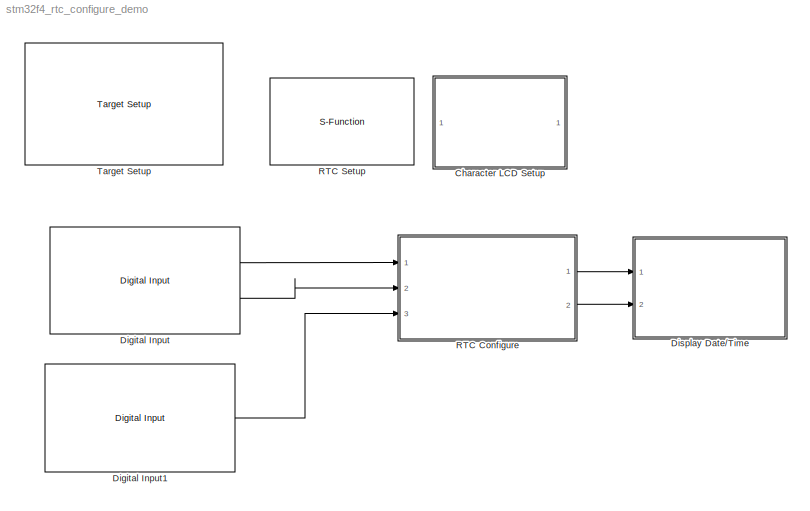
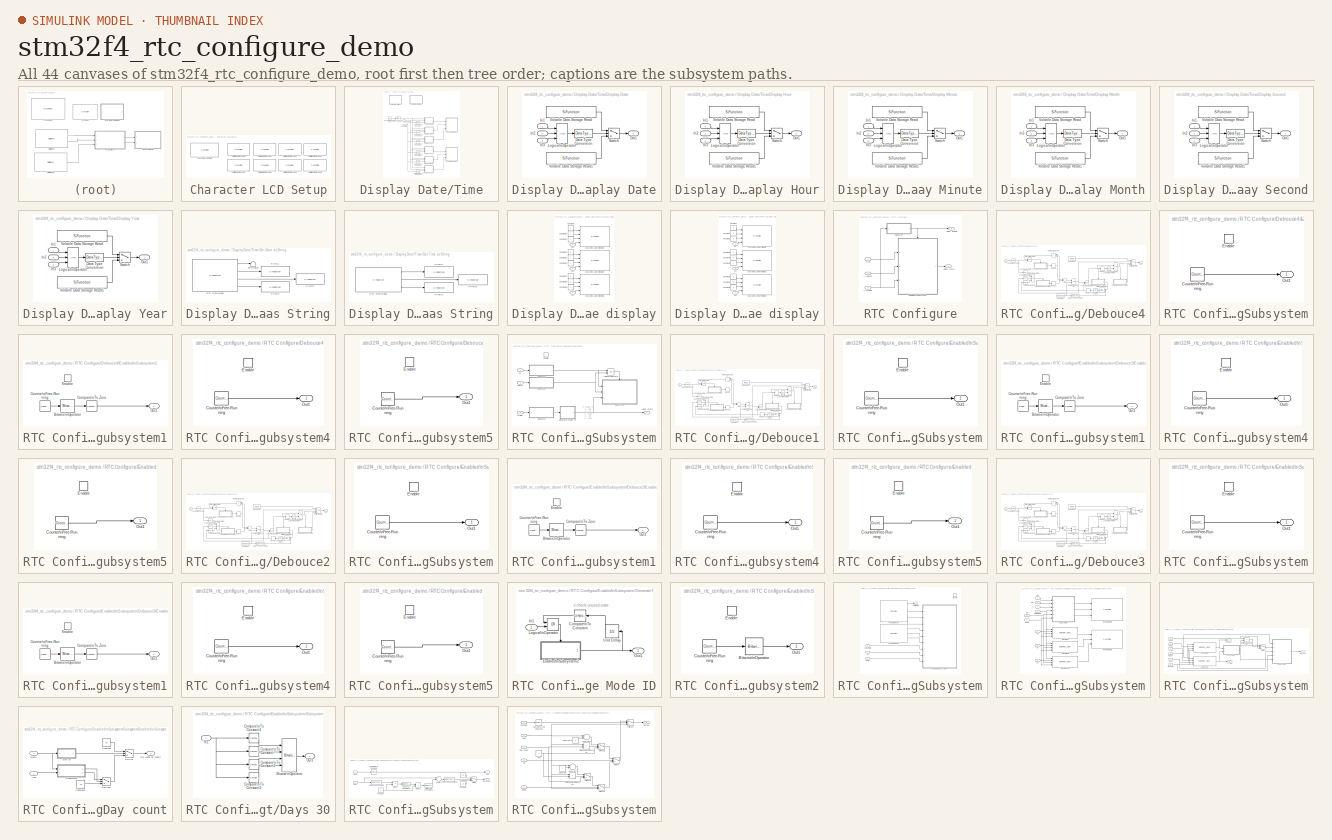
[diagram: thumbnail index - all 44 canvases of the model, root first then tree order]
MODEL stm32f4_rtc_configure_demo
KIND model
CONFIG PreLoadFcn = waijung.modelPreload; % Required for working with Waijung Blockset. Do not remove.
BLOCK [SubSystem] Character LCD Setup
  FunctionWithSeparateData = off
  MaskHideContents = off
  MinAlgLoopOccurrences = off
  Opaque = off
  Ports = []
  PropExecContextOutsideSubsystem = off
  RTWSystemCode = Auto
  RequestExecContextInheritance = off
BLOCK [S-Function] Character LCD Setup/Character LCD Setup
  EnableBusSupport = off
  FunctionName = amg_clcd
  MaskCallbackString = amg_clcd_callback('configuration');||||||||||||||||amg_clcd_callback('usestringbuffer');||amg_clcd_callback('varname');|||amg_clcd_callback('confstr');|amg_clcd_callback('sampletime');|amg_clcd_callback('sampletimestr');|amg_clcd_callback('blockid');  <repeated x7 — deduplicated; at blocks: Character LCD Setup, Character LCD Write Date3, Character LCD Write Date4, Character LCD Write Date5, Character LCD Write Date, Character LCD Write Date1, Character LCD Write Date2>
  MaskDisplay = text(0.5, 0.5, 'Module: CLCD1 (Setup)\\nInterface: 4-bits\\nCntrl: E7/E8/E9\\nD[7:4]: E12/E13/E14/E15\\nTs (sec): 0.01','ver','middle','hor','center');
  MaskEnableString = on,on,on,off,off,on,on,on,on,on,on,on,on,on,on,on,on,on,off,off,off,on,on,on,on
  MaskHelp = web(fullfile(waijungdocroot,'amg_clcd_setup.htm'), '-browser')
  MaskIconFrame = on
  MaskIconOpaque = on
  MaskIconRotate = none
  MaskIconUnits = normalized
  MaskInitialization = amg_clcd_callback('init');
  MaskPortRotate = default
  MaskPromptString = Configuration:|Module:|LCD model:|Interface:|Number of lines (2 or 4):|Number of columns:|GPIO Output type:|GPIO control port:|GPIO control pin, RS:|GPIO control pin, RW:|GPIO control pin, EN:|GPIO data D[7:4] port|GPIO data pin, D4:|GPIO data pin, D5:|GPIO data pin, D6:|GPIO data pin, D7:|Use string buffer|String buffer|Variable name|Input type array|Output type array|Configuration string|Sample ...<+55ch>
  MaskSelfModifiable = on
  MaskStyleString = popup(Setup|Transaction),popup(1|2|3|4),popup(amg CLCD Std),popup(4-bits),edit,edit,popup(Push-pull|Open-drain),popup(A|B|C|D|E|F|G|H|I),popup(0|1|2|3|4|5|6|7|8|9|10|11|12|13|14|15),popup(0|1|2|3|4|5|6|7|8|9|10|11|12|13|14|15),popup(0|1|2|3|4|5|6|7|8|9|10|11|12|13|14|15),popup(A|B|C|D|E|F|G|H|I),popup(0|1|2|3|4|5|6|7|8|9|10|11|12|13|14|15),popup(0|1|2|3|4|5|6|7|8|9|10|11|12|13|14|15),popup(0|1|2|3...<+135ch>
  MaskTabNameString = ,,,,,,,,,,,,,,,,,,,,,,,,
  MaskToolTipString = on,on,on,on,on,on,on,on,on,on,on,on,on,on,on,on,on,on,on,on,on,on,on,on,on
  MaskTunableValueString = off,off,off,off,off,off,off,off,off,off,off,off,off,off,off,off,off,off,off,off,off,off,off,off,off
  MaskType = amg_clcd
  MaskValueString = Setup|1|amg CLCD Std|4-bits|4|16|Push-pull|E|7|8|9|E|12|13|14|15|off|<empty>||[0]|[0]|[\"4\",\"4\",\"16\",\"PP\",\"E\",\"7\",\"9\",\"8\",\"\",\"E\",\"\",\"\",\"\",\"\",\"12\",\"13\",\"14\",\"15\",\"0\",\"\",\"0\",\"0\",\"0\",\"0\",\"1\",\"0\",\"0\",\"0\",\"0\",\"stm32f4\"]|-1|0.01|CharacterLCDSetupCharacterLCDSetup
  MaskVarAliasString = ,,,,,,,,,,,,,,,,,,,,,,,,
  MaskVariables = configuration=&1;module=&2;model=&3;interface=&4;linecount=@5;columncount=@6;gpiotype=&7;controlport=&8;control_rs=&9;control_rw=&10;control_en=&11;dataport=&12;data0=&13;data1=&14;data2=&15;data3=&16;usestringbuffer=@17;stringbuffer=&18;varname=&19;inputtypearray=@20;outputtypearray=@21;confstr=&22;sampletime=@23;sampletimestr=&24;blockid=&25;  <repeated x7 — deduplicated; at blocks: Character LCD Setup, Character LCD Write Date3, Character LCD Write Date4, Character LCD Write Date5, Character LCD Write Date, Character LCD Write Date1, Character LCD Write Date2>
  MaskVisibilityString = off,on,off,on,off,on,on,on,on,on,on,on,on,on,on,on,off,off,off,off,off,off,off,off,off
  Parameters = module,configuration,inputtypearray,outputtypearray,confstr,sampletime,sampletimestr,blockid
  Ports = []
BLOCK [S-Function] Character LCD Setup/Volatile Data Storage1
  EnableBusSupport = off
  FunctionName = waijung_vdata_storage
  MaskCallbackString = waijung_vdata_storage_callback('storagetype');|waijung_vdata_storage_callback('storagename');|waijung_vdata_storage_callback('initval');|waijung_vdata_storage_callback('varname');||waijung_vdata_storage_callback('initvalstring');|waijung_vdata_storage_callback('webintegration');|waijung_vdata_storage_callback('weboutputformat');|||waijung_vdata_storage_callback('sampletime');|waijung_vdata_storage...<+71ch>  <repeated x8 — deduplicated; at blocks: Volatile Data Storage1, Volatile Data Storage2, Volatile Data Storage3, Volatile Data Storage4, Volatile Data Storage5, Volatile Data Storage6, Volatile Data Storage7, Volatile Data Storage8>
  MaskDescription = This block implements a volatile Data Storage.\n\nWeb CGI varset/varget integratiopn:\nEnable - In webserver application, allow remote access via http.\nDisable - Variable is use in local only.  <repeated x8 — deduplicated; at blocks: Volatile Data Storage1, Volatile Data Storage2, Volatile Data Storage3, Volatile Data Storage4, Volatile Data Storage5, Volatile Data Storage6, Volatile Data Storage7, Volatile Data Storage8>
  MaskDisplay = text(0.5, 0.5, 'Name: str_date\\nType: string','ver','middle','hor','center')
  MaskEnableString = on,on,on,off,on,on,on,on,off,on,on,off,off,on
  MaskHelp = web(fullfile(waijungdocroot,'Volatile_Data_Storage.htm'))
  MaskIconFrame = on
  MaskIconOpaque = on
  MaskIconRotate = none
  MaskIconUnits = normalized
  MaskInitialization = waijung_vdata_storage_callback('init');
  MaskPortRotate = default
  MaskPromptString = Storage Type|Storage Name (must be a valid variable name)|Initial value (Apply at Power on Reset only)|Variable name|Size (bytes)|Initial value (Apply at Power on Reset only)|Web CGI varget/varset integration|Web CGI varget output format|Web CGI varset callback|Last selected Storage Type|Sample time (sec)|Compiled sample time (sec) in string|BlockID|Type string  <repeated x8 — deduplicated; at blocks: Volatile Data Storage1, Volatile Data Storage2, Volatile Data Storage3, Volatile Data Storage4, Volatile Data Storage5, Volatile Data Storage6, Volatile Data Storage7, Volatile Data Storage8>
  MaskSelfModifiable = on
  MaskStyleString = popup(double|single|uint32|int32|uint16|int16|uint8|int8|string),edit,edit,edit,edit,edit,popup(Disable|ReadOnly|Write/ Read|ReadOnly with KeyValuePair|Write/ Read with KeyValuePair),edit,edit,popup(double|single|uint32|int32|uint16|int16|uint8|int8|string),edit,edit,edit,edit  <repeated x8 — deduplicated; at blocks: Volatile Data Storage1, Volatile Data Storage2, Volatile Data Storage3, Volatile Data Storage4, Volatile Data Storage5, Volatile Data Storage6, Volatile Data Storage7, Volatile Data Storage8>
  MaskTabNameString = ,,,,,,,,,,,,,
  MaskToolTipString = on,on,on,on,on,on,on,on,on,on,on,on,on,on
  MaskTunableValueString = off,off,off,off,off,off,off,off,off,off,off,off,off,off
  MaskType = waijung_vdata_storage
  MaskValueString = string|str_date|0|CharacterLCDSetupVolatileDataStorage1_str_date|4|''|Disable|'%s'|(void*)0|string|-1|0.01|CharacterLCDSetupVolatileDataStorage1|char
  MaskVarAliasString = ,,,,,,,,,,,,,
  MaskVariables = storagetype=&1;storagename=&2;initval=@3;varname=&4;buffersize=@5;initvalstring=@6;webintegration=&7;weboutputformat=&8;webcgicallback=&9;laststoragetype=&10;sampletime=@11;sampletimestr=&12;blockid=&13;storagetypestr=&14;  <repeated x8 — deduplicated; at blocks: Volatile Data Storage1, Volatile Data Storage2, Volatile Data Storage3, Volatile Data Storage4, Volatile Data Storage5, Volatile Data Storage6, Volatile Data Storage7, Volatile Data Storage8>
  MaskVisibilityString = on,on,off,off,on,on,on,off,off,off,on,off,off,off
  Parameters = storagetype,storagename,initval,varname,buffersize,initvalstring,sampletime,sampletimestr,blockid,storagetypestr
  Ports = []
BLOCK [S-Function] Character LCD Setup/Volatile Data Storage2
  EnableBusSupport = off
  FunctionName = waijung_vdata_storage
  MaskDisplay = text(0.5, 0.5, 'Name: str_month\\nType: string','ver','middle','hor','center')
  MaskEnableString = on,on,on,off,on,on,on,on,off,on,on,off,off,on
  MaskHelp = web(fullfile(waijungdocroot,'Volatile_Data_Storage.htm'))
  MaskIconFrame = on
  MaskIconOpaque = on
  MaskIconRotate = none
  MaskIconUnits = normalized
  MaskInitialization = waijung_vdata_storage_callback('init');
  MaskPortRotate = default
  MaskSelfModifiable = on
  MaskTabNameString = ,,,,,,,,,,,,,
  MaskToolTipString = on,on,on,on,on,on,on,on,on,on,on,on,on,on
  MaskTunableValueString = off,off,off,off,off,off,off,off,off,off,off,off,off,off
  MaskType = waijung_vdata_storage
  MaskValueString = string|str_month|0|CharacterLCDSetupVolatileDataStorage2_str_month|4|''|Disable|'%s'|(void*)0|string|-1|0.01|CharacterLCDSetupVolatileDataStorage2|char
  MaskVarAliasString = ,,,,,,,,,,,,,
  MaskVisibilityString = on,on,off,off,on,on,on,off,off,off,on,off,off,off
  Parameters = storagetype,storagename,initval,varname,buffersize,initvalstring,sampletime,sampletimestr,blockid,storagetypestr
  Ports = []
BLOCK [S-Function] Character LCD Setup/Volatile Data Storage3
  EnableBusSupport = off
  FunctionName = waijung_vdata_storage
  MaskDisplay = text(0.5, 0.5, 'Name: str_year\\nType: string','ver','middle','hor','center')
  MaskEnableString = on,on,on,off,on,on,on,on,off,on,on,off,off,on
  MaskHelp = web(fullfile(waijungdocroot,'Volatile_Data_Storage.htm'))
  MaskIconFrame = on
  MaskIconOpaque = on
  MaskIconRotate = none
  MaskIconUnits = normalized
  MaskInitialization = waijung_vdata_storage_callback('init');
  MaskPortRotate = default
  MaskSelfModifiable = on
  MaskTabNameString = ,,,,,,,,,,,,,
  MaskToolTipString = on,on,on,on,on,on,on,on,on,on,on,on,on,on
  MaskTunableValueString = off,off,off,off,off,off,off,off,off,off,off,off,off,off
  MaskType = waijung_vdata_storage
  MaskValueString = string|str_year|0|CharacterLCDSetupVolatileDataStorage3_str_year|4|''|Disable|'%s'|(void*)0|string|-1|0.01|CharacterLCDSetupVolatileDataStorage3|char
  MaskVarAliasString = ,,,,,,,,,,,,,
  MaskVisibilityString = on,on,off,off,on,on,on,off,off,off,on,off,off,off
  Parameters = storagetype,storagename,initval,varname,buffersize,initvalstring,sampletime,sampletimestr,blockid,storagetypestr
  Ports = []
BLOCK [S-Function] Character LCD Setup/Volatile Data Storage4
  EnableBusSupport = off
  FunctionName = waijung_vdata_storage
  MaskDisplay = text(0.5, 0.5, 'Name: str_hour\\nType: string','ver','middle','hor','center')
  MaskEnableString = on,on,on,off,on,on,on,on,off,on,on,off,off,on
  MaskHelp = web(fullfile(waijungdocroot,'Volatile_Data_Storage.htm'))
  MaskIconFrame = on
  MaskIconOpaque = on
  MaskIconRotate = none
  MaskIconUnits = normalized
  MaskInitialization = waijung_vdata_storage_callback('init');
  MaskPortRotate = default
  MaskSelfModifiable = on
  MaskTabNameString = ,,,,,,,,,,,,,
  MaskToolTipString = on,on,on,on,on,on,on,on,on,on,on,on,on,on
  MaskTunableValueString = off,off,off,off,off,off,off,off,off,off,off,off,off,off
  MaskType = waijung_vdata_storage
  MaskValueString = string|str_hour|0|CharacterLCDSetupVolatileDataStorage4_str_hour|4|''|Disable|'%s'|(void*)0|string|-1|0.01|CharacterLCDSetupVolatileDataStorage4|char
  MaskVarAliasString = ,,,,,,,,,,,,,
  MaskVisibilityString = on,on,off,off,on,on,on,off,off,off,on,off,off,off
  Parameters = storagetype,storagename,initval,varname,buffersize,initvalstring,sampletime,sampletimestr,blockid,storagetypestr
  Ports = []
BLOCK [S-Function] Character LCD Setup/Volatile Data Storage5
  EnableBusSupport = off
  FunctionName = waijung_vdata_storage
  MaskDisplay = text(0.5, 0.5, 'Name: str_minute\\nType: string','ver','middle','hor','center')
  MaskEnableString = on,on,on,off,on,on,on,on,off,on,on,off,off,on
  MaskHelp = web(fullfile(waijungdocroot,'Volatile_Data_Storage.htm'))
  MaskIconFrame = on
  MaskIconOpaque = on
  MaskIconRotate = none
  MaskIconUnits = normalized
  MaskInitialization = waijung_vdata_storage_callback('init');
  MaskPortRotate = default
  MaskSelfModifiable = on
  MaskTabNameString = ,,,,,,,,,,,,,
  MaskToolTipString = on,on,on,on,on,on,on,on,on,on,on,on,on,on
  MaskTunableValueString = off,off,off,off,off,off,off,off,off,off,off,off,off,off
  MaskType = waijung_vdata_storage
  MaskValueString = string|str_minute|0|CharacterLCDSetupVolatileDataStorage5_str_minute|4|''|Disable|'%s'|(void*)0|string|-1|0.01|CharacterLCDSetupVolatileDataStorage5|char
  MaskVarAliasString = ,,,,,,,,,,,,,
  MaskVisibilityString = on,on,off,off,on,on,on,off,off,off,on,off,off,off
  Parameters = storagetype,storagename,initval,varname,buffersize,initvalstring,sampletime,sampletimestr,blockid,storagetypestr
  Ports = []
BLOCK [S-Function] Character LCD Setup/Volatile Data Storage6
  EnableBusSupport = off
  FunctionName = waijung_vdata_storage
  MaskDisplay = text(0.5, 0.5, 'Name: str_second\\nType: string','ver','middle','hor','center')
  MaskEnableString = on,on,on,off,on,on,on,on,off,on,on,off,off,on
  MaskHelp = web(fullfile(waijungdocroot,'Volatile_Data_Storage.htm'))
  MaskIconFrame = on
  MaskIconOpaque = on
  MaskIconRotate = none
  MaskIconUnits = normalized
  MaskInitialization = waijung_vdata_storage_callback('init');
  MaskPortRotate = default
  MaskSelfModifiable = on
  MaskTabNameString = ,,,,,,,,,,,,,
  MaskToolTipString = on,on,on,on,on,on,on,on,on,on,on,on,on,on
  MaskTunableValueString = off,off,off,off,off,off,off,off,off,off,off,off,off,off
  MaskType = waijung_vdata_storage
  MaskValueString = string|str_second|0|CharacterLCDSetupVolatileDataStorage6_str_second|4|''|Disable|'%s'|(void*)0|string|-1|0.01|CharacterLCDSetupVolatileDataStorage6|char
  MaskVarAliasString = ,,,,,,,,,,,,,
  MaskVisibilityString = on,on,off,off,on,on,on,off,off,off,on,off,off,off
  Parameters = storagetype,storagename,initval,varname,buffersize,initvalstring,sampletime,sampletimestr,blockid,storagetypestr
  Ports = []
BLOCK [S-Function] Character LCD Setup/Volatile Data Storage7
  EnableBusSupport = off
  FunctionName = waijung_vdata_storage
  MaskDisplay = text(0.5, 0.5, 'Name: str_blank2\\nType: string','ver','middle','hor','center')
  MaskEnableString = on,on,on,off,on,on,on,on,off,on,on,off,off,on
  MaskHelp = web(fullfile(waijungdocroot,'Volatile_Data_Storage.htm'))
  MaskIconFrame = on
  MaskIconOpaque = on
  MaskIconRotate = none
  MaskIconUnits = normalized
  MaskInitialization = waijung_vdata_storage_callback('init');
  MaskPortRotate = default
  MaskSelfModifiable = on
  MaskTabNameString = ,,,,,,,,,,,,,
  MaskToolTipString = on,on,on,on,on,on,on,on,on,on,on,on,on,on
  MaskTunableValueString = off,off,off,off,off,off,off,off,off,off,off,off,off,off
  MaskType = waijung_vdata_storage
  MaskValueString = string|str_blank2|0|CharacterLCDSetupVolatileDataStorage7_str_blank2|4|'  '|Disable|'%s'|(void*)0|string|-1|0.01|CharacterLCDSetupVolatileDataStorage7|char
  MaskVarAliasString = ,,,,,,,,,,,,,
  MaskVisibilityString = on,on,off,off,on,on,on,off,off,off,on,off,off,off
  Parameters = storagetype,storagename,initval,varname,buffersize,initvalstring,sampletime,sampletimestr,blockid,storagetypestr
  Ports = []
BLOCK [S-Function] Character LCD Setup/Volatile Data Storage8
  EnableBusSupport = off
  FunctionName = waijung_vdata_storage
  MaskDisplay = text(0.5, 0.5, 'Name: LCD_Buffer\\nType: string','ver','middle','hor','center')
  MaskEnableString = on,on,on,off,on,on,on,on,off,on,on,off,off,on
  MaskHelp = web(fullfile(waijungdocroot,'Volatile_Data_Storage.htm'))
  MaskIconFrame = on
  MaskIconOpaque = on
  MaskIconRotate = none
  MaskIconUnits = normalized
  MaskInitialization = waijung_vdata_storage_callback('init');
  MaskPortRotate = default
  MaskSelfModifiable = on
  MaskTabNameString = ,,,,,,,,,,,,,
  MaskToolTipString = on,on,on,on,on,on,on,on,on,on,on,on,on,on
  MaskTunableValueString = off,off,off,off,off,off,off,off,off,off,off,off,off,off
  MaskType = waijung_vdata_storage
  MaskValueString = string|LCD_Buffer|0|CharacterLCDSetupVolatileDataStorage8_LCD_Buffer|64|''|Disable|'%s'|(void*)0|string|-1|0.01|CharacterLCDSetupVolatileDataStorage8|char
  MaskVarAliasString = ,,,,,,,,,,,,,
  MaskVisibilityString = on,on,off,off,on,on,on,off,off,off,on,off,off,off
  Parameters = storagetype,storagename,initval,varname,buffersize,initvalstring,sampletime,sampletimestr,blockid,storagetypestr
  Ports = []
BLOCK [Reference] Digital Input  REF=stm32f4_io_lib/Digital Input
  Ports = [0, 2]
  SourceBlock = stm32f4_io_lib/Digital Input
  SourceType = stm32f4_digital_input
  bitbandingstr = \n#define DigitalInput_B2 Peripheral_BB(GPIOB->IDR, 2)  /* Output pin */\n#define DigitalInput_B15 Peripheral_BB(GPIOB->IDR, 15)  /* Output pin */
  blockid = DigitalInput
  cinputportlabel = In1, In2
  coutputportlabel = Out1, Out2
  enablecustomportlabel = off
  glabalinit = off
  pinstr = GPIO_Pin_2 | GPIO_Pin_15
  port = B
  porttype = None
  porttypestr = NOPULL
  sampletime = 0.01
  sampletimestr = 0.01
  speed = 100
  use_pin0 = off
  use_pin1 = off
  use_pin10 = off
  use_pin11 = off
  use_pin12 = off
  use_pin13 = off
  use_pin14 = off
  use_pin15 = on
  use_pin2 = on
  use_pin3 = off
  use_pin4 = off
  use_pin5 = off
  use_pin6 = off
  use_pin7 = off
  use_pin8 = off
  use_pin9 = off
  usedpinarray = [0  0  1  0  0  0  0  0  0  0  0  0  0  0  0  1]
BLOCK [Reference] Digital Input1  REF=stm32f4_io_lib/Digital Input
  Ports = [0, 1]
  SourceBlock = stm32f4_io_lib/Digital Input
  SourceType = stm32f4_digital_input
  bitbandingstr = \n#define DigitalInput1_D7 Peripheral_BB(GPIOD->IDR, 7)  /* Output pin */
  blockid = DigitalInput1
  cinputportlabel = In1, In2
  coutputportlabel = Out1, Out2
  enablecustomportlabel = off
  glabalinit = off
  pinstr = GPIO_Pin_7
  port = D
  porttype = None
  porttypestr = NOPULL
  sampletime = 0.01
  sampletimestr = 0.01
  speed = 100
  use_pin0 = off
  use_pin1 = off
  use_pin10 = off
  use_pin11 = off
  use_pin12 = off
  use_pin13 = off
  use_pin14 = off
  use_pin15 = off
  use_pin2 = off
  use_pin3 = off
  use_pin4 = off
  use_pin5 = off
  use_pin6 = off
  use_pin7 = on
  use_pin8 = off
  use_pin9 = off
  usedpinarray = [0  0  0  0  0  0  0  1  0  0  0  0  0  0  0  0]
BLOCK [SubSystem] Display Date//Time
  FunctionWithSeparateData = off
  MaskHideContents = off
  MinAlgLoopOccurrences = off
  Opaque = off
  Ports = [2]
  PropExecContextOutsideSubsystem = off
  RTWSystemCode = Auto
  RequestExecContextInheritance = off
BLOCK [Inport] Display Date//Time/Adjust enable
  IconDisplay = Port number
  OutDataType = fixdt(1, 16)
  OutScaling = 2^0
  Port = 2
BLOCK [Inport] Display Date//Time/Adjust state
  IconDisplay = Port number
  OutDataType = fixdt(1, 16)
  OutScaling = 2^0
BLOCK [Reference] Display Date//Time/Bitwise\nOperator  REF=simulink/Logic and Bit\nOperations/Bitwise\nOperator
  BitMask = 1
  BitMaskRealWorld = Stored Integer
  NumInputPorts = 1
  Ports = [1, 1]
  SourceBlock = simulink/Logic and Bit\nOperations/Bitwise\nOperator
  SourceType = Bitwise Operator
  UseBitMask = on
  logicop = AND
BLOCK [Reference] Display Date//Time/Compare\nTo Constant  REF=simulink/Logic and Bit\nOperations/Compare\nTo Constant
  FunctionWithSeparateData = off
  LogicOutDataTypeMode = boolean
  Ports = [1, 1]
  RTWMemSecDataConstants = Inherit from model
  RTWMemSecDataInternal = Inherit from model
  RTWMemSecDataParameters = Inherit from model
  RTWMemSecFuncExecute = Inherit from model
  RTWMemSecFuncInitTerm = Inherit from model
  ShowPortLabels = FromPortIcon
  SourceBlock = simulink/Logic and Bit\nOperations/Compare\nTo Constant
  SourceType = Compare To Constant
  SystemSampleTime = -1
  ZeroCross = off
  const = 0
  relop = ==
BLOCK [Reference] Display Date//Time/Compare\nTo Constant1  REF=simulink/Logic and Bit\nOperations/Compare\nTo Constant
  FunctionWithSeparateData = off
  LogicOutDataTypeMode = boolean
  Ports = [1, 1]
  RTWMemSecDataConstants = Inherit from model
  RTWMemSecDataInternal = Inherit from model
  RTWMemSecDataParameters = Inherit from model
  RTWMemSecFuncExecute = Inherit from model
  RTWMemSecFuncInitTerm = Inherit from model
  ShowPortLabels = FromPortIcon
  SourceBlock = simulink/Logic and Bit\nOperations/Compare\nTo Constant
  SourceType = Compare To Constant
  SystemSampleTime = -1
  ZeroCross = off
  const = 1
  relop = ==
BLOCK [Reference] Display Date//Time/Compare\nTo Constant2  REF=simulink/Logic and Bit\nOperations/Compare\nTo Constant
  FunctionWithSeparateData = off
  LogicOutDataTypeMode = boolean
  Ports = [1, 1]
  RTWMemSecDataConstants = Inherit from model
  RTWMemSecDataInternal = Inherit from model
  RTWMemSecDataParameters = Inherit from model
  RTWMemSecFuncExecute = Inherit from model
  RTWMemSecFuncInitTerm = Inherit from model
  ShowPortLabels = FromPortIcon
  SourceBlock = simulink/Logic and Bit\nOperations/Compare\nTo Constant
  SourceType = Compare To Constant
  SystemSampleTime = -1
  ZeroCross = off
  const = 2
  relop = ==
BLOCK [Reference] Display Date//Time/Compare\nTo Constant3  REF=simulink/Logic and Bit\nOperations/Compare\nTo Constant
  FunctionWithSeparateData = off
  LogicOutDataTypeMode = boolean
  Ports = [1, 1]
  RTWMemSecDataConstants = Inherit from model
  RTWMemSecDataInternal = Inherit from model
  RTWMemSecDataParameters = Inherit from model
  RTWMemSecFuncExecute = Inherit from model
  RTWMemSecFuncInitTerm = Inherit from model
  ShowPortLabels = FromPortIcon
  SourceBlock = simulink/Logic and Bit\nOperations/Compare\nTo Constant
  SourceType = Compare To Constant
  SystemSampleTime = -1
  ZeroCross = off
  const = 3
  relop = ==
BLOCK [Reference] Display Date//Time/Compare\nTo Constant4  REF=simulink/Logic and Bit\nOperations/Compare\nTo Constant
  FunctionWithSeparateData = off
  LogicOutDataTypeMode = boolean
  Ports = [1, 1]
  RTWMemSecDataConstants = Inherit from model
  RTWMemSecDataInternal = Inherit from model
  RTWMemSecDataParameters = Inherit from model
  RTWMemSecFuncExecute = Inherit from model
  RTWMemSecFuncInitTerm = Inherit from model
  ShowPortLabels = FromPortIcon
  SourceBlock = simulink/Logic and Bit\nOperations/Compare\nTo Constant
  SourceType = Compare To Constant
  SystemSampleTime = -1
  ZeroCross = off
  const = 4
  relop = ==
BLOCK [Reference] Display Date//Time/Compare\nTo Constant5  REF=simulink/Logic and Bit\nOperations/Compare\nTo Constant
  FunctionWithSeparateData = off
  LogicOutDataTypeMode = boolean
  Ports = [1, 1]
  RTWMemSecDataConstants = Inherit from model
  RTWMemSecDataInternal = Inherit from model
  RTWMemSecDataParameters = Inherit from model
  RTWMemSecFuncExecute = Inherit from model
  RTWMemSecFuncInitTerm = Inherit from model
  ShowPortLabels = FromPortIcon
  SourceBlock = simulink/Logic and Bit\nOperations/Compare\nTo Constant
  SourceType = Compare To Constant
  SystemSampleTime = -1
  ZeroCross = off
  const = 5
  relop = ==
BLOCK [Reference] Display Date//Time/Counter\nFree-Running  REF=simulink/Sources/Counter\nFree-Running
  FunctionWithSeparateData = off
  NumBits = 16
  Ports = [0, 1]
  RTWMemSecDataConstants = Inherit from model
  RTWMemSecDataInternal = Inherit from model
  RTWMemSecDataParameters = Inherit from model
  RTWMemSecFuncExecute = Inherit from model
  RTWMemSecFuncInitTerm = Inherit from model
  ShowPortLabels = FromPortIcon
  SourceBlock = simulink/Sources/Counter\nFree-Running
  SourceType = Counter Free-Running
  SystemSampleTime = -1
  tsamp = 0.4
BLOCK [SubSystem] Display Date//Time/Display Date
  FunctionWithSeparateData = off
  MaskHideContents = off
  MinAlgLoopOccurrences = off
  Opaque = off
  Ports = [3, 1]
  PropExecContextOutsideSubsystem = off
  RTWSystemCode = Auto
  RequestExecContextInheritance = off
BLOCK [DataTypeConversion] Display Date//Time/Display Date/Data Type Conversion
  OutDataType = fixdt(1, 16)
  OutDataTypeMode = uint8
  OutDataTypeStr = uint8
  OutScaling = 2^0
  RndMeth = Floor
  SaturateOnIntegerOverflow = off
BLOCK [Inport] Display Date//Time/Display Date/In1
  IconDisplay = Port number
BLOCK [Inport] Display Date//Time/Display Date/In2
  IconDisplay = Port number
  Port = 2
BLOCK [Inport] Display Date//Time/Display Date/In3
  IconDisplay = Port number
  Port = 3
BLOCK [Logic] Display Date//Time/Display Date/Logical\nOperator
  AllPortsSameDT = off
  Inputs = 3
  LogicDataType = fixdt(0, 8)
  OutDataTypeMode = boolean
  OutDataTypeStr = boolean
  Ports = [3, 1]
BLOCK [Outport] Display Date//Time/Display Date/Out1
  IconDisplay = Port number
BLOCK [Switch] Display Date//Time/Display Date/Switch
  Criteria = u2 ~= 0
  InputSameDT = off
  OutDataType = fixdt(1, 16)
  OutScaling = 2^0
  SaturateOnIntegerOverflow = off
BLOCK [S-Function] Display Date//Time/Display Date/Volatile Data Storage Read
  EnableBusSupport = off
  FunctionName = waijung_vdata_read
  MaskCallbackString = waijung_vdata_read_callback('storagename');|waijung_vdata_read_callback('varname');|waijung_vdata_read_callback('sampletime');|waijung_vdata_read_callback('sampletimestr');|waijung_vdata_read_callback('blockid');|waijung_vdata_read_callback('storagetype');|  <repeated x12 — deduplicated; at blocks: Volatile Data Storage Read, Volatile Data Storage Read1>
  MaskDescription = This block implements read data from a buffer.
  MaskDisplay = text(0.05, 0.5, 'Buffer: str_blank2','ver','middle','hor','left');port_label('output',1,'D1(string)')
  MaskEnableString = on,off,on,off,off,on,on
  MaskHelp = web(fullfile(waijungdocroot,'waijung_vdata_read.htm'))
  MaskIconFrame = on
  MaskIconOpaque = on
  MaskIconRotate = none
  MaskIconUnits = normalized
  MaskInitialization = waijung_vdata_read_callback('init');
  MaskPortRotate = default
  MaskPromptString = Storage Name|Variable name|Sample time (sec)|Compiled sample time (sec) in string|BlockID|Data type|Data type string
  MaskSelfModifiable = on
  MaskStyleString = popup(str_date|str_month|str_year|str_hour|str_minute|str_second|str_blank2|LCD_Buffer),edit,edit,edit,edit,edit,edit
  MaskTabNameString = ,,,,,,
  MaskToolTipString = on,on,on,on,on,on,on
  MaskTunableValueString = off,off,off,off,off,off,off
  MaskType = waijung_vdata_read
  MaskValueString = str_blank2|CharacterLCDSetupVolatileDataStorage7_str_blank2|inf|0.01|DisplayDateTimeDisplayDateVolatileDataStorageRead|string|uint32_t
  MaskVarAliasString = ,,,,,,
  MaskVariables = storagename=&1;varname=&2;sampletime=@3;sampletimestr=&4;blockid=&5;storagetype=&6;storagetypestr=&7;
  MaskVisibilityString = on,off,on,off,off,off,off
  Parameters = storagename,varname,sampletime,sampletimestr,blockid,storagetype,storagetypestr
  Ports = [0, 1]
BLOCK [S-Function] Display Date//Time/Display Date/Volatile Data Storage Read1
  EnableBusSupport = off
  FunctionName = waijung_vdata_read
  MaskDescription = This block implements read data from a buffer.
  MaskDisplay = text(0.05, 0.5, 'Buffer: str_date','ver','middle','hor','left');port_label('output',1,'D1(string)')
  MaskEnableString = on,off,on,off,off,on,on
  MaskHelp = web(fullfile(waijungdocroot,'waijung_vdata_read.htm'))
  MaskIconFrame = on
  MaskIconOpaque = on
  MaskIconRotate = none
  MaskIconUnits = normalized
  MaskInitialization = waijung_vdata_read_callback('init');
  MaskPortRotate = default
  MaskPromptString = Storage Name|Variable name|Sample time (sec)|Compiled sample time (sec) in string|BlockID|Data type|Data type string
  MaskSelfModifiable = on
  MaskStyleString = popup(str_date|str_month|str_year|str_hour|str_minute|str_second|str_blank2|LCD_Buffer),edit,edit,edit,edit,edit,edit
  MaskTabNameString = ,,,,,,
  MaskToolTipString = on,on,on,on,on,on,on
  MaskTunableValueString = off,off,off,off,off,off,off
  MaskType = waijung_vdata_read
  MaskValueString = str_date|CharacterLCDSetupVolatileDataStorage1_str_date|inf|0.01|DisplayDateTimeDisplayDateVolatileDataStorageRead1|string|uint32_t
  MaskVarAliasString = ,,,,,,
  MaskVariables = storagename=&1;varname=&2;sampletime=@3;sampletimestr=&4;blockid=&5;storagetype=&6;storagetypestr=&7;
  MaskVisibilityString = on,off,on,off,off,off,off
  Parameters = storagename,varname,sampletime,sampletimestr,blockid,storagetype,storagetypestr
  Ports = [0, 1]
BLOCK [SubSystem] Display Date//Time/Display Hour
  FunctionWithSeparateData = off
  MaskHideContents = off
  MinAlgLoopOccurrences = off
  Opaque = off
  Ports = [3, 1]
  PropExecContextOutsideSubsystem = off
  RTWSystemCode = Auto
  RequestExecContextInheritance = off
BLOCK [DataTypeConversion] Display Date//Time/Display Hour/Data Type Conversion
  OutDataType = fixdt(1, 16)
  OutDataTypeMode = uint8
  OutDataTypeStr = uint8
  OutScaling = 2^0
  RndMeth = Floor
  SaturateOnIntegerOverflow = off
BLOCK [Inport] Display Date//Time/Display Hour/In1
  IconDisplay = Port number
BLOCK [Inport] Display Date//Time/Display Hour/In2
  IconDisplay = Port number
  Port = 2
BLOCK [Inport] Display Date//Time/Display Hour/In3
  IconDisplay = Port number
  Port = 3
BLOCK [Logic] Display Date//Time/Display Hour/Logical\nOperator
  AllPortsSameDT = off
  Inputs = 3
  LogicDataType = fixdt(0, 8)
  OutDataTypeMode = boolean
  OutDataTypeStr = boolean
  Ports = [3, 1]
BLOCK [Outport] Display Date//Time/Display Hour/Out1
  IconDisplay = Port number
BLOCK [Switch] Display Date//Time/Display Hour/Switch
  Criteria = u2 ~= 0
  InputSameDT = off
  OutDataType = fixdt(1, 16)
  OutScaling = 2^0
  SaturateOnIntegerOverflow = off
BLOCK [S-Function] Display Date//Time/Display Hour/Volatile Data Storage Read
  EnableBusSupport = off
  FunctionName = waijung_vdata_read
  MaskDescription = This block implements read data from a buffer.
  MaskDisplay = text(0.05, 0.5, 'Buffer: str_blank2','ver','middle','hor','left');port_label('output',1,'D1(string)')
  MaskEnableString = on,off,on,off,off,on,on
  MaskHelp = web(fullfile(waijungdocroot,'waijung_vdata_read.htm'))
  MaskIconFrame = on
  MaskIconOpaque = on
  MaskIconRotate = none
  MaskIconUnits = normalized
  MaskInitialization = waijung_vdata_read_callback('init');
  MaskPortRotate = default
  MaskPromptString = Storage Name|Variable name|Sample time (sec)|Compiled sample time (sec) in string|BlockID|Data type|Data type string
  MaskSelfModifiable = on
  MaskStyleString = popup(str_date|str_month|str_year|str_hour|str_minute|str_second|str_blank2|LCD_Buffer),edit,edit,edit,edit,edit,edit
  MaskTabNameString = ,,,,,,
  MaskToolTipString = on,on,on,on,on,on,on
  MaskTunableValueString = off,off,off,off,off,off,off
  MaskType = waijung_vdata_read
  MaskValueString = str_blank2|CharacterLCDSetupVolatileDataStorage7_str_blank2|inf|0.01|DisplayDateTimeDisplayHourVolatileDataStorageRead|string|uint32_t
  MaskVarAliasString = ,,,,,,
  MaskVariables = storagename=&1;varname=&2;sampletime=@3;sampletimestr=&4;blockid=&5;storagetype=&6;storagetypestr=&7;
  MaskVisibilityString = on,off,on,off,off,off,off
  Parameters = storagename,varname,sampletime,sampletimestr,blockid,storagetype,storagetypestr
  Ports = [0, 1]
BLOCK [S-Function] Display Date//Time/Display Hour/Volatile Data Storage Read1
  EnableBusSupport = off
  FunctionName = waijung_vdata_read
  MaskDescription = This block implements read data from a buffer.
  MaskDisplay = text(0.05, 0.5, 'Buffer: str_hour','ver','middle','hor','left');port_label('output',1,'D1(string)')
  MaskEnableString = on,off,on,off,off,on,on
  MaskHelp = web(fullfile(waijungdocroot,'waijung_vdata_read.htm'))
  MaskIconFrame = on
  MaskIconOpaque = on
  MaskIconRotate = none
  MaskIconUnits = normalized
  MaskInitialization = waijung_vdata_read_callback('init');
  MaskPortRotate = default
  MaskPromptString = Storage Name|Variable name|Sample time (sec)|Compiled sample time (sec) in string|BlockID|Data type|Data type string
  MaskSelfModifiable = on
  MaskStyleString = popup(str_date|str_month|str_year|str_hour|str_minute|str_second|str_blank2|LCD_Buffer),edit,edit,edit,edit,edit,edit
  MaskTabNameString = ,,,,,,
  MaskToolTipString = on,on,on,on,on,on,on
  MaskTunableValueString = off,off,off,off,off,off,off
  MaskType = waijung_vdata_read
  MaskValueString = str_hour|CharacterLCDSetupVolatileDataStorage4_str_hour|inf|0.01|DisplayDateTimeDisplayHourVolatileDataStorageRead1|string|uint32_t
  MaskVarAliasString = ,,,,,,
  MaskVariables = storagename=&1;varname=&2;sampletime=@3;sampletimestr=&4;blockid=&5;storagetype=&6;storagetypestr=&7;
  MaskVisibilityString = on,off,on,off,off,off,off
  Parameters = storagename,varname,sampletime,sampletimestr,blockid,storagetype,storagetypestr
  Ports = [0, 1]
BLOCK [SubSystem] Display Date//Time/Display Minute
  FunctionWithSeparateData = off
  MaskHideContents = off
  MinAlgLoopOccurrences = off
  Opaque = off
  Ports = [3, 1]
  PropExecContextOutsideSubsystem = off
  RTWSystemCode = Auto
  RequestExecContextInheritance = off
BLOCK [DataTypeConversion] Display Date//Time/Display Minute/Data Type Conversion
  OutDataType = fixdt(1, 16)
  OutDataTypeMode = uint8
  OutDataTypeStr = uint8
  OutScaling = 2^0
  RndMeth = Floor
  SaturateOnIntegerOverflow = off
BLOCK [Inport] Display Date//Time/Display Minute/In1
  IconDisplay = Port number
BLOCK [Inport] Display Date//Time/Display Minute/In2
  IconDisplay = Port number
  Port = 2
BLOCK [Inport] Display Date//Time/Display Minute/In3
  IconDisplay = Port number
  Port = 3
BLOCK [Logic] Display Date//Time/Display Minute/Logical\nOperator
  AllPortsSameDT = off
  Inputs = 3
  LogicDataType = fixdt(0, 8)
  OutDataTypeMode = boolean
  OutDataTypeStr = boolean
  Ports = [3, 1]
BLOCK [Outport] Display Date//Time/Display Minute/Out1
  IconDisplay = Port number
BLOCK [Switch] Display Date//Time/Display Minute/Switch
  Criteria = u2 ~= 0
  InputSameDT = off
  OutDataType = fixdt(1, 16)
  OutScaling = 2^0
  SaturateOnIntegerOverflow = off
BLOCK [S-Function] Display Date//Time/Display Minute/Volatile Data Storage Read
  EnableBusSupport = off
  FunctionName = waijung_vdata_read
  MaskDescription = This block implements read data from a buffer.
  MaskDisplay = text(0.05, 0.5, 'Buffer: str_blank2','ver','middle','hor','left');port_label('output',1,'D1(string)')
  MaskEnableString = on,off,on,off,off,on,on
  MaskHelp = web(fullfile(waijungdocroot,'waijung_vdata_read.htm'))
  MaskIconFrame = on
  MaskIconOpaque = on
  MaskIconRotate = none
  MaskIconUnits = normalized
  MaskInitialization = waijung_vdata_read_callback('init');
  MaskPortRotate = default
  MaskPromptString = Storage Name|Variable name|Sample time (sec)|Compiled sample time (sec) in string|BlockID|Data type|Data type string
  MaskSelfModifiable = on
  MaskStyleString = popup(str_date|str_month|str_year|str_hour|str_minute|str_second|str_blank2|LCD_Buffer),edit,edit,edit,edit,edit,edit
  MaskTabNameString = ,,,,,,
  MaskToolTipString = on,on,on,on,on,on,on
  MaskTunableValueString = off,off,off,off,off,off,off
  MaskType = waijung_vdata_read
  MaskValueString = str_blank2|CharacterLCDSetupVolatileDataStorage7_str_blank2|inf|0.01|DisplayDateTimeDisplayMinuteVolatileDataStorageRead|string|uint32_t
  MaskVarAliasString = ,,,,,,
  MaskVariables = storagename=&1;varname=&2;sampletime=@3;sampletimestr=&4;blockid=&5;storagetype=&6;storagetypestr=&7;
  MaskVisibilityString = on,off,on,off,off,off,off
  Parameters = storagename,varname,sampletime,sampletimestr,blockid,storagetype,storagetypestr
  Ports = [0, 1]
BLOCK [S-Function] Display Date//Time/Display Minute/Volatile Data Storage Read1
  EnableBusSupport = off
  FunctionName = waijung_vdata_read
  MaskDescription = This block implements read data from a buffer.
  MaskDisplay = text(0.05, 0.5, 'Buffer: str_minute','ver','middle','hor','left');port_label('output',1,'D1(string)')
  MaskEnableString = on,off,on,off,off,on,on
  MaskHelp = web(fullfile(waijungdocroot,'waijung_vdata_read.htm'))
  MaskIconFrame = on
  MaskIconOpaque = on
  MaskIconRotate = none
  MaskIconUnits = normalized
  MaskInitialization = waijung_vdata_read_callback('init');
  MaskPortRotate = default
  MaskPromptString = Storage Name|Variable name|Sample time (sec)|Compiled sample time (sec) in string|BlockID|Data type|Data type string
  MaskSelfModifiable = on
  MaskStyleString = popup(str_date|str_month|str_year|str_hour|str_minute|str_second|str_blank2|LCD_Buffer),edit,edit,edit,edit,edit,edit
  MaskTabNameString = ,,,,,,
  MaskToolTipString = on,on,on,on,on,on,on
  MaskTunableValueString = off,off,off,off,off,off,off
  MaskType = waijung_vdata_read
  MaskValueString = str_minute|CharacterLCDSetupVolatileDataStorage5_str_minute|inf|0.01|DisplayDateTimeDisplayMinuteVolatileDataStorageRead1|string|uint32_t
  MaskVarAliasString = ,,,,,,
  MaskVariables = storagename=&1;varname=&2;sampletime=@3;sampletimestr=&4;blockid=&5;storagetype=&6;storagetypestr=&7;
  MaskVisibilityString = on,off,on,off,off,off,off
  Parameters = storagename,varname,sampletime,sampletimestr,blockid,storagetype,storagetypestr
  Ports = [0, 1]
BLOCK [SubSystem] Display Date//Time/Display Month
  FunctionWithSeparateData = off
  MaskHideContents = off
  MinAlgLoopOccurrences = off
  Opaque = off
  Ports = [3, 1]
  PropExecContextOutsideSubsystem = off
  RTWSystemCode = Auto
  RequestExecContextInheritance = off
BLOCK [DataTypeConversion] Display Date//Time/Display Month/Data Type Conversion
  OutDataType = fixdt(1, 16)
  OutDataTypeMode = uint8
  OutDataTypeStr = uint8
  OutScaling = 2^0
  RndMeth = Floor
  SaturateOnIntegerOverflow = off
BLOCK [Inport] Display Date//Time/Display Month/In1
  IconDisplay = Port number
BLOCK [Inport] Display Date//Time/Display Month/In2
  IconDisplay = Port number
  Port = 2
BLOCK [Inport] Display Date//Time/Display Month/In3
  IconDisplay = Port number
  Port = 3
BLOCK [Logic] Display Date//Time/Display Month/Logical\nOperator
  AllPortsSameDT = off
  Inputs = 3
  LogicDataType = fixdt(0, 8)
  OutDataTypeMode = boolean
  OutDataTypeStr = boolean
  Ports = [3, 1]
BLOCK [Outport] Display Date//Time/Display Month/Out1
  IconDisplay = Port number
BLOCK [Switch] Display Date//Time/Display Month/Switch
  Criteria = u2 ~= 0
  InputSameDT = off
  OutDataType = fixdt(1, 16)
  OutScaling = 2^0
  SaturateOnIntegerOverflow = off
BLOCK [S-Function] Display Date//Time/Display Month/Volatile Data Storage Read
  EnableBusSupport = off
  FunctionName = waijung_vdata_read
  MaskDescription = This block implements read data from a buffer.
  MaskDisplay = text(0.05, 0.5, 'Buffer: str_blank2','ver','middle','hor','left');port_label('output',1,'D1(string)')
  MaskEnableString = on,off,on,off,off,on,on
  MaskHelp = web(fullfile(waijungdocroot,'waijung_vdata_read.htm'))
  MaskIconFrame = on
  MaskIconOpaque = on
  MaskIconRotate = none
  MaskIconUnits = normalized
  MaskInitialization = waijung_vdata_read_callback('init');
  MaskPortRotate = default
  MaskPromptString = Storage Name|Variable name|Sample time (sec)|Compiled sample time (sec) in string|BlockID|Data type|Data type string
  MaskSelfModifiable = on
  MaskStyleString = popup(str_date|str_month|str_year|str_hour|str_minute|str_second|str_blank2|LCD_Buffer),edit,edit,edit,edit,edit,edit
  MaskTabNameString = ,,,,,,
  MaskToolTipString = on,on,on,on,on,on,on
  MaskTunableValueString = off,off,off,off,off,off,off
  MaskType = waijung_vdata_read
  MaskValueString = str_blank2|CharacterLCDSetupVolatileDataStorage7_str_blank2|inf|0.01|DisplayDateTimeDisplayMonthVolatileDataStorageRead|string|uint32_t
  MaskVarAliasString = ,,,,,,
  MaskVariables = storagename=&1;varname=&2;sampletime=@3;sampletimestr=&4;blockid=&5;storagetype=&6;storagetypestr=&7;
  MaskVisibilityString = on,off,on,off,off,off,off
  Parameters = storagename,varname,sampletime,sampletimestr,blockid,storagetype,storagetypestr
  Ports = [0, 1]
BLOCK [S-Function] Display Date//Time/Display Month/Volatile Data Storage Read1
  EnableBusSupport = off
  FunctionName = waijung_vdata_read
  MaskDescription = This block implements read data from a buffer.
  MaskDisplay = text(0.05, 0.5, 'Buffer: str_month','ver','middle','hor','left');port_label('output',1,'D1(string)')
  MaskEnableString = on,off,on,off,off,on,on
  MaskHelp = web(fullfile(waijungdocroot,'waijung_vdata_read.htm'))
  MaskIconFrame = on
  MaskIconOpaque = on
  MaskIconRotate = none
  MaskIconUnits = normalized
  MaskInitialization = waijung_vdata_read_callback('init');
  MaskPortRotate = default
  MaskPromptString = Storage Name|Variable name|Sample time (sec)|Compiled sample time (sec) in string|BlockID|Data type|Data type string
  MaskSelfModifiable = on
  MaskStyleString = popup(str_date|str_month|str_year|str_hour|str_minute|str_second|str_blank2|LCD_Buffer),edit,edit,edit,edit,edit,edit
  MaskTabNameString = ,,,,,,
  MaskToolTipString = on,on,on,on,on,on,on
  MaskTunableValueString = off,off,off,off,off,off,off
  MaskType = waijung_vdata_read
  MaskValueString = str_month|CharacterLCDSetupVolatileDataStorage2_str_month|inf|0.01|DisplayDateTimeDisplayMonthVolatileDataStorageRead1|string|uint32_t
  MaskVarAliasString = ,,,,,,
  MaskVariables = storagename=&1;varname=&2;sampletime=@3;sampletimestr=&4;blockid=&5;storagetype=&6;storagetypestr=&7;
  MaskVisibilityString = on,off,on,off,off,off,off
  Parameters = storagename,varname,sampletime,sampletimestr,blockid,storagetype,storagetypestr
  Ports = [0, 1]
BLOCK [SubSystem] Display Date//Time/Display Second
  FunctionWithSeparateData = off
  MaskHideContents = off
  MinAlgLoopOccurrences = off
  Opaque = off
  Ports = [3, 1]
  PropExecContextOutsideSubsystem = off
  RTWSystemCode = Auto
  RequestExecContextInheritance = off
BLOCK [DataTypeConversion] Display Date//Time/Display Second/Data Type Conversion
  OutDataType = fixdt(1, 16)
  OutDataTypeMode = uint8
  OutDataTypeStr = uint8
  OutScaling = 2^0
  RndMeth = Floor
  SaturateOnIntegerOverflow = off
BLOCK [Inport] Display Date//Time/Display Second/In1
  IconDisplay = Port number
BLOCK [Inport] Display Date//Time/Display Second/In2
  IconDisplay = Port number
  Port = 2
BLOCK [Inport] Display Date//Time/Display Second/In3
  IconDisplay = Port number
  Port = 3
BLOCK [Logic] Display Date//Time/Display Second/Logical\nOperator
  AllPortsSameDT = off
  Inputs = 3
  LogicDataType = fixdt(0, 8)
  OutDataTypeMode = boolean
  OutDataTypeStr = boolean
  Ports = [3, 1]
BLOCK [Outport] Display Date//Time/Display Second/Out1
  IconDisplay = Port number
BLOCK [Switch] Display Date//Time/Display Second/Switch
  Criteria = u2 ~= 0
  InputSameDT = off
  OutDataType = fixdt(1, 16)
  OutScaling = 2^0
  SaturateOnIntegerOverflow = off
BLOCK [S-Function] Display Date//Time/Display Second/Volatile Data Storage Read
  EnableBusSupport = off
  FunctionName = waijung_vdata_read
  MaskDescription = This block implements read data from a buffer.
  MaskDisplay = text(0.05, 0.5, 'Buffer: str_blank2','ver','middle','hor','left');port_label('output',1,'D1(string)')
  MaskEnableString = on,off,on,off,off,on,on
  MaskHelp = web(fullfile(waijungdocroot,'waijung_vdata_read.htm'))
  MaskIconFrame = on
  MaskIconOpaque = on
  MaskIconRotate = none
  MaskIconUnits = normalized
  MaskInitialization = waijung_vdata_read_callback('init');
  MaskPortRotate = default
  MaskPromptString = Storage Name|Variable name|Sample time (sec)|Compiled sample time (sec) in string|BlockID|Data type|Data type string
  MaskSelfModifiable = on
  MaskStyleString = popup(str_date|str_month|str_year|str_hour|str_minute|str_second|str_blank2|LCD_Buffer),edit,edit,edit,edit,edit,edit
  MaskTabNameString = ,,,,,,
  MaskToolTipString = on,on,on,on,on,on,on
  MaskTunableValueString = off,off,off,off,off,off,off
  MaskType = waijung_vdata_read
  MaskValueString = str_blank2|CharacterLCDSetupVolatileDataStorage7_str_blank2|inf|0.01|DisplayDateTimeDisplaySecondVolatileDataStorageRead|string|uint32_t
  MaskVarAliasString = ,,,,,,
  MaskVariables = storagename=&1;varname=&2;sampletime=@3;sampletimestr=&4;blockid=&5;storagetype=&6;storagetypestr=&7;
  MaskVisibilityString = on,off,on,off,off,off,off
  Parameters = storagename,varname,sampletime,sampletimestr,blockid,storagetype,storagetypestr
  Ports = [0, 1]
BLOCK [S-Function] Display Date//Time/Display Second/Volatile Data Storage Read1
  EnableBusSupport = off
  FunctionName = waijung_vdata_read
  MaskDescription = This block implements read data from a buffer.
  MaskDisplay = text(0.05, 0.5, 'Buffer: str_second','ver','middle','hor','left');port_label('output',1,'D1(string)')
  MaskEnableString = on,off,on,off,off,on,on
  MaskHelp = web(fullfile(waijungdocroot,'waijung_vdata_read.htm'))
  MaskIconFrame = on
  MaskIconOpaque = on
  MaskIconRotate = none
  MaskIconUnits = normalized
  MaskInitialization = waijung_vdata_read_callback('init');
  MaskPortRotate = default
  MaskPromptString = Storage Name|Variable name|Sample time (sec)|Compiled sample time (sec) in string|BlockID|Data type|Data type string
  MaskSelfModifiable = on
  MaskStyleString = popup(str_date|str_month|str_year|str_hour|str_minute|str_second|str_blank2|LCD_Buffer),edit,edit,edit,edit,edit,edit
  MaskTabNameString = ,,,,,,
  MaskToolTipString = on,on,on,on,on,on,on
  MaskTunableValueString = off,off,off,off,off,off,off
  MaskType = waijung_vdata_read
  MaskValueString = str_second|CharacterLCDSetupVolatileDataStorage6_str_second|inf|0.01|DisplayDateTimeDisplaySecondVolatileDataStorageRead1|string|uint32_t
  MaskVarAliasString = ,,,,,,
  MaskVariables = storagename=&1;varname=&2;sampletime=@3;sampletimestr=&4;blockid=&5;storagetype=&6;storagetypestr=&7;
  MaskVisibilityString = on,off,on,off,off,off,off
  Parameters = storagename,varname,sampletime,sampletimestr,blockid,storagetype,storagetypestr
  Ports = [0, 1]
BLOCK [SubSystem] Display Date//Time/Display Year
  FunctionWithSeparateData = off
  MaskHideContents = off
  MinAlgLoopOccurrences = off
  Opaque = off
  Ports = [3, 1]
  PropExecContextOutsideSubsystem = off
  RTWSystemCode = Auto
  RequestExecContextInheritance = off
BLOCK [DataTypeConversion] Display Date//Time/Display Year/Data Type Conversion
  OutDataType = fixdt(1, 16)
  OutDataTypeMode = uint8
  OutDataTypeStr = uint8
  OutScaling = 2^0
  RndMeth = Floor
  SaturateOnIntegerOverflow = off
BLOCK [Inport] Display Date//Time/Display Year/In1
  IconDisplay = Port number
BLOCK [Inport] Display Date//Time/Display Year/In2
  IconDisplay = Port number
  Port = 2
BLOCK [Inport] Display Date//Time/Display Year/In3
  IconDisplay = Port number
  Port = 3
BLOCK [Logic] Display Date//Time/Display Year/Logical\nOperator
  AllPortsSameDT = off
  Inputs = 3
  LogicDataType = fixdt(0, 8)
  OutDataTypeMode = boolean
  OutDataTypeStr = boolean
  Ports = [3, 1]
BLOCK [Outport] Display Date//Time/Display Year/Out1
  IconDisplay = Port number
BLOCK [Switch] Display Date//Time/Display Year/Switch
  Criteria = u2 ~= 0
  InputSameDT = off
  OutDataType = fixdt(1, 16)
  OutScaling = 2^0
  SaturateOnIntegerOverflow = off
BLOCK [S-Function] Display Date//Time/Display Year/Volatile Data Storage Read
  EnableBusSupport = off
  FunctionName = waijung_vdata_read
  MaskDescription = This block implements read data from a buffer.
  MaskDisplay = text(0.05, 0.5, 'Buffer: str_blank2','ver','middle','hor','left');port_label('output',1,'D1(string)')
  MaskEnableString = on,off,on,off,off,on,on
  MaskHelp = web(fullfile(waijungdocroot,'waijung_vdata_read.htm'))
  MaskIconFrame = on
  MaskIconOpaque = on
  MaskIconRotate = none
  MaskIconUnits = normalized
  MaskInitialization = waijung_vdata_read_callback('init');
  MaskPortRotate = default
  MaskPromptString = Storage Name|Variable name|Sample time (sec)|Compiled sample time (sec) in string|BlockID|Data type|Data type string
  MaskSelfModifiable = on
  MaskStyleString = popup(str_date|str_month|str_year|str_hour|str_minute|str_second|str_blank2|LCD_Buffer),edit,edit,edit,edit,edit,edit
  MaskTabNameString = ,,,,,,
  MaskToolTipString = on,on,on,on,on,on,on
  MaskTunableValueString = off,off,off,off,off,off,off
  MaskType = waijung_vdata_read
  MaskValueString = str_blank2|CharacterLCDSetupVolatileDataStorage7_str_blank2|inf|0.01|DisplayDateTimeDisplayYearVolatileDataStorageRead|string|uint32_t
  MaskVarAliasString = ,,,,,,
  MaskVariables = storagename=&1;varname=&2;sampletime=@3;sampletimestr=&4;blockid=&5;storagetype=&6;storagetypestr=&7;
  MaskVisibilityString = on,off,on,off,off,off,off
  Parameters = storagename,varname,sampletime,sampletimestr,blockid,storagetype,storagetypestr
  Ports = [0, 1]
BLOCK [S-Function] Display Date//Time/Display Year/Volatile Data Storage Read1
  EnableBusSupport = off
  FunctionName = waijung_vdata_read
  MaskDescription = This block implements read data from a buffer.
  MaskDisplay = text(0.05, 0.5, 'Buffer: str_year','ver','middle','hor','left');port_label('output',1,'D1(string)')
  MaskEnableString = on,off,on,off,off,on,on
  MaskHelp = web(fullfile(waijungdocroot,'waijung_vdata_read.htm'))
  MaskIconFrame = on
  MaskIconOpaque = on
  MaskIconRotate = none
  MaskIconUnits = normalized
  MaskInitialization = waijung_vdata_read_callback('init');
  MaskPortRotate = default
  MaskPromptString = Storage Name|Variable name|Sample time (sec)|Compiled sample time (sec) in string|BlockID|Data type|Data type string
  MaskSelfModifiable = on
  MaskStyleString = popup(str_date|str_month|str_year|str_hour|str_minute|str_second|str_blank2|LCD_Buffer),edit,edit,edit,edit,edit,edit
  MaskTabNameString = ,,,,,,
  MaskToolTipString = on,on,on,on,on,on,on
  MaskTunableValueString = off,off,off,off,off,off,off
  MaskType = waijung_vdata_read
  MaskValueString = str_year|CharacterLCDSetupVolatileDataStorage3_str_year|inf|0.01|DisplayDateTimeDisplayYearVolatileDataStorageRead1|string|uint32_t
  MaskVarAliasString = ,,,,,,
  MaskVariables = storagename=&1;varname=&2;sampletime=@3;sampletimestr=&4;blockid=&5;storagetype=&6;storagetypestr=&7;
  MaskVisibilityString = on,off,on,off,off,off,off
  Parameters = storagename,varname,sampletime,sampletimestr,blockid,storagetype,storagetypestr
  Ports = [0, 1]
BLOCK [SubSystem] Display Date//Time/Get Date as String
  FunctionWithSeparateData = off
  MaskHideContents = off
  MinAlgLoopOccurrences = off
  Opaque = off
  Ports = []
  PropExecContextOutsideSubsystem = off
  RTWSystemCode = Auto
  RequestExecContextInheritance = off
BLOCK [S-Function] Display Date//Time/Get Date as String/Printf1
  EnableBusSupport = off
  FunctionName = waijung_printf
  MaskCallbackString = waijung_printf_callback('storagename');|waijung_printf_callback('printfformat');|waijung_printf_callback('formatcode');|waijung_printf_callback('varname');|waijung_printf_callback('sampletime');|waijung_printf_callback('sampletimestr');|waijung_printf_callback('blockid');  <repeated x6 — deduplicated; at blocks: Printf1, Printf2, Printf3, Printf4, Printf5, Printf6>
  MaskDescription = This block implements printf command.
  MaskDisplay = text(0.95, 0.5, 'Buffer: str_date\\nTs (sec): 0.01','ver','middle','hor','right');port_label('input',1,'D1(%u)');
  MaskEnableString = on,on,off,off,on,off,off
  MaskHelp = web(fullfile(waijungdocroot,'waijung_printf.htm'))
  MaskIconFrame = on
  MaskIconOpaque = on
  MaskIconRotate = none
  MaskIconUnits = normalized
  MaskInitialization = waijung_printf_callback('init');
  MaskPortRotate = default
  MaskPromptString = Storage Name|Printf format|Printf format code|Variable name|Sample time (sec)|Compiled sample time (sec) in string|BlockID
  MaskSelfModifiable = on
  MaskStyleString = popup(str_date|str_month|str_year|str_hour|str_minute|str_second|str_blank2|LCD_Buffer),edit,edit,edit,edit,edit,edit
  MaskTabNameString = ,,,,,,
  MaskToolTipString = on,on,on,on,on,on,on
  MaskTunableValueString = off,off,off,off,off,off,off
  MaskType = waijung_printf
  MaskValueString = str_date|%2u/|u|CharacterLCDSetupVolatileDataStorage1_str_date|-1|0.01|DisplayDateTimeGetDateasStringPrintf1
  MaskVarAliasString = ,,,,,,
  MaskVariables = storagename=&1;printfformat=&2;formatcode=&3;varname=&4;sampletime=@5;sampletimestr=&6;blockid=&7;
  MaskVisibilityString = on,on,off,off,on,off,off
  Parameters = storagename,printfformat,formatcode,varname,sampletime,sampletimestr,blockid
  Ports = [1]
BLOCK [S-Function] Display Date//Time/Get Date as String/Printf2
  EnableBusSupport = off
  FunctionName = waijung_printf
  MaskDescription = This block implements printf command.
  MaskDisplay = text(0.95, 0.5, 'Buffer: str_month\\nTs (sec): 0.01','ver','middle','hor','right');port_label('input',1,'D1(%u)');
  MaskEnableString = on,on,off,off,on,off,off
  MaskHelp = web(fullfile(waijungdocroot,'waijung_printf.htm'))
  MaskIconFrame = on
  MaskIconOpaque = on
  MaskIconRotate = none
  MaskIconUnits = normalized
  MaskInitialization = waijung_printf_callback('init');
  MaskPortRotate = default
  MaskPromptString = Storage Name|Printf format|Printf format code|Variable name|Sample time (sec)|Compiled sample time (sec) in string|BlockID
  MaskSelfModifiable = on
  MaskStyleString = popup(str_date|str_month|str_year|str_hour|str_minute|str_second|str_blank2|LCD_Buffer),edit,edit,edit,edit,edit,edit
  MaskTabNameString = ,,,,,,
  MaskToolTipString = on,on,on,on,on,on,on
  MaskTunableValueString = off,off,off,off,off,off,off
  MaskType = waijung_printf
  MaskValueString = str_month|%2u/|u|CharacterLCDSetupVolatileDataStorage2_str_month|-1|0.01|DisplayDateTimeGetDateasStringPrintf2
  MaskVarAliasString = ,,,,,,
  MaskVariables = storagename=&1;printfformat=&2;formatcode=&3;varname=&4;sampletime=@5;sampletimestr=&6;blockid=&7;
  MaskVisibilityString = on,on,off,off,on,off,off
  Parameters = storagename,printfformat,formatcode,varname,sampletime,sampletimestr,blockid
  Ports = [1]
BLOCK [S-Function] Display Date//Time/Get Date as String/Printf3
  EnableBusSupport = off
  FunctionName = waijung_printf
  MaskDescription = This block implements printf command.
  MaskDisplay = text(0.95, 0.5, 'Buffer: str_year\\nTs (sec): 0.01','ver','middle','hor','right');port_label('input',1,'D1(%u)');
  MaskEnableString = on,on,off,off,on,off,off
  MaskHelp = web(fullfile(waijungdocroot,'waijung_printf.htm'))
  MaskIconFrame = on
  MaskIconOpaque = on
  MaskIconRotate = none
  MaskIconUnits = normalized
  MaskInitialization = waijung_printf_callback('init');
  MaskPortRotate = default
  MaskPromptString = Storage Name|Printf format|Printf format code|Variable name|Sample time (sec)|Compiled sample time (sec) in string|BlockID
  MaskSelfModifiable = on
  MaskStyleString = popup(str_date|str_month|str_year|str_hour|str_minute|str_second|str_blank2|LCD_Buffer),edit,edit,edit,edit,edit,edit
  MaskTabNameString = ,,,,,,
  MaskToolTipString = on,on,on,on,on,on,on
  MaskTunableValueString = off,off,off,off,off,off,off
  MaskType = waijung_printf
  MaskValueString = str_year|%2u|u|CharacterLCDSetupVolatileDataStorage3_str_year|-1|0.01|DisplayDateTimeGetDateasStringPrintf3
  MaskVarAliasString = ,,,,,,
  MaskVariables = storagename=&1;printfformat=&2;formatcode=&3;varname=&4;sampletime=@5;sampletimestr=&6;blockid=&7;
  MaskVisibilityString = on,on,off,off,on,off,off
  Parameters = storagename,printfformat,formatcode,varname,sampletime,sampletimestr,blockid
  Ports = [1]
BLOCK [S-Function] Display Date//Time/Get Date as String/RTC Date Read
  EnableBusSupport = off
  FunctionName = stm32f4_rtc
  MaskCallbackString = stm32f4_rtc_callback('configuration');||stm32f4_rtc_callback('dataformat');||||stm32f4_rtc_callback('confstr');|stm32f4_rtc_callback('sampletime');|stm32f4_rtc_callback('sampletimestr');|stm32f4_rtc_callback('blockid');  <repeated x7 — deduplicated; at blocks: RTC Date Read, RTC Time Read, RTC Date Write, RTC Time Write, RTC Setup>
  MaskDisplay = text(0.05, 0.5, 'Module: RTC (DateRead)\\nFormat: BIN\\nTs (sec): 0.01','ver','middle','hor','left');port_label('output', 1,'Day');port_label('output', 2,'Date');port_label('output', 3,'Month');port_label('output', 4,'Year');
  MaskEnableString = on,on,on,on,off,off,on,on,on,on
  MaskHelp = web(fullfile(waijungdocroot,'stm32f4_rtc_setup.htm'), '-browser')
  MaskIconFrame = on
  MaskIconOpaque = on
  MaskIconRotate = none
  MaskIconUnits = normalized
  MaskInitialization = stm32f4_rtc_callback('init');
  MaskPortRotate = default
  MaskPromptString = Configuration:|Clock source|Format|Hour format|Input type array|Output type array|Configuration string|Sample time (sec)|Compiled sample time (sec) in string|BlockID
  MaskSelfModifiable = on
  MaskStyleString = popup(Setup|DateRead|TimeRead|DateWrite|TimeWrite),popup(LSE (32.768kHz)|LSI),popup(BCD|BIN),popup(HourFormat_24|HourFormat_12),edit,edit,edit,edit,edit,edit
  MaskTabNameString = ,,,,,,,,,
  MaskToolTipString = on,on,on,on,on,on,on,on,on,on
  MaskTunableValueString = off,off,off,off,off,off,off,off,off,off
  MaskType = stm32f4_rtc
  MaskValueString = DateRead|LSE (32.768kHz)|BIN|HourFormat_24|[0]|[4 3 3 3 3]|[\"DateRead\",\"LSE (32.768kHz)\",\"BIN\",\"HourFormat_24\"]|0.01|0.01|DisplayDateTimeGetDateasStringRTCDateRead
  MaskVarAliasString = ,,,,,,,,,
  MaskVariables = configuration=&1;clocksource=&2;dataformat=&3;hourformat=&4;inputtypearray=@5;outputtypearray=@6;confstr=&7;sampletime=@8;sampletimestr=&9;blockid=&10;
  MaskVisibilityString = off,off,on,off,off,off,off,on,off,off
  Parameters = inputtypearray,outputtypearray,confstr,sampletime,sampletimestr,blockid
  Ports = [0, 4]
BLOCK [Terminator] Display Date//Time/Get Date as String/Terminator
BLOCK [SubSystem] Display Date//Time/Get Time as String
  FunctionWithSeparateData = off
  MaskHideContents = off
  MinAlgLoopOccurrences = off
  Opaque = off
  Ports = []
  PropExecContextOutsideSubsystem = off
  RTWSystemCode = Auto
  RequestExecContextInheritance = off
BLOCK [S-Function] Display Date//Time/Get Time as String/Printf4
  EnableBusSupport = off
  FunctionName = waijung_printf
  MaskDescription = This block implements printf command.
  MaskDisplay = text(0.95, 0.5, 'Buffer: str_hour\\nTs (sec): 0.01','ver','middle','hor','right');port_label('input',1,'D1(%u)');
  MaskEnableString = on,on,off,off,on,off,off
  MaskHelp = web(fullfile(waijungdocroot,'waijung_printf.htm'))
  MaskIconFrame = on
  MaskIconOpaque = on
  MaskIconRotate = none
  MaskIconUnits = normalized
  MaskInitialization = waijung_printf_callback('init');
  MaskPortRotate = default
  MaskPromptString = Storage Name|Printf format|Printf format code|Variable name|Sample time (sec)|Compiled sample time (sec) in string|BlockID
  MaskSelfModifiable = on
  MaskStyleString = popup(str_date|str_month|str_year|str_hour|str_minute|str_second|str_blank2|LCD_Buffer),edit,edit,edit,edit,edit,edit
  MaskTabNameString = ,,,,,,
  MaskToolTipString = on,on,on,on,on,on,on
  MaskTunableValueString = off,off,off,off,off,off,off
  MaskType = waijung_printf
  MaskValueString = str_hour|%2u:|u|CharacterLCDSetupVolatileDataStorage4_str_hour|-1|0.01|DisplayDateTimeGetTimeasStringPrintf4
  MaskVarAliasString = ,,,,,,
  MaskVariables = storagename=&1;printfformat=&2;formatcode=&3;varname=&4;sampletime=@5;sampletimestr=&6;blockid=&7;
  MaskVisibilityString = on,on,off,off,on,off,off
  Parameters = storagename,printfformat,formatcode,varname,sampletime,sampletimestr,blockid
  Ports = [1]
BLOCK [S-Function] Display Date//Time/Get Time as String/Printf5
  EnableBusSupport = off
  FunctionName = waijung_printf
  MaskDescription = This block implements printf command.
  MaskDisplay = text(0.95, 0.5, 'Buffer: str_minute\\nTs (sec): 0.01','ver','middle','hor','right');port_label('input',1,'D1(%u)');
  MaskEnableString = on,on,off,off,on,off,off
  MaskHelp = web(fullfile(waijungdocroot,'waijung_printf.htm'))
  MaskIconFrame = on
  MaskIconOpaque = on
  MaskIconRotate = none
  MaskIconUnits = normalized
  MaskInitialization = waijung_printf_callback('init');
  MaskPortRotate = default
  MaskPromptString = Storage Name|Printf format|Printf format code|Variable name|Sample time (sec)|Compiled sample time (sec) in string|BlockID
  MaskSelfModifiable = on
  MaskStyleString = popup(str_date|str_month|str_year|str_hour|str_minute|str_second|str_blank2|LCD_Buffer),edit,edit,edit,edit,edit,edit
  MaskTabNameString = ,,,,,,
  MaskToolTipString = on,on,on,on,on,on,on
  MaskTunableValueString = off,off,off,off,off,off,off
  MaskType = waijung_printf
  MaskValueString = str_minute|%2u:|u|CharacterLCDSetupVolatileDataStorage5_str_minute|-1|0.01|DisplayDateTimeGetTimeasStringPrintf5
  MaskVarAliasString = ,,,,,,
  MaskVariables = storagename=&1;printfformat=&2;formatcode=&3;varname=&4;sampletime=@5;sampletimestr=&6;blockid=&7;
  MaskVisibilityString = on,on,off,off,on,off,off
  Parameters = storagename,printfformat,formatcode,varname,sampletime,sampletimestr,blockid
  Ports = [1]
BLOCK [S-Function] Display Date//Time/Get Time as String/Printf6
  EnableBusSupport = off
  FunctionName = waijung_printf
  MaskDescription = This block implements printf command.
  MaskDisplay = text(0.95, 0.5, 'Buffer: str_second\\nTs (sec): 0.01','ver','middle','hor','right');port_label('input',1,'D1(%u)');
  MaskEnableString = on,on,off,off,on,off,off
  MaskHelp = web(fullfile(waijungdocroot,'waijung_printf.htm'))
  MaskIconFrame = on
  MaskIconOpaque = on
  MaskIconRotate = none
  MaskIconUnits = normalized
  MaskInitialization = waijung_printf_callback('init');
  MaskPortRotate = default
  MaskPromptString = Storage Name|Printf format|Printf format code|Variable name|Sample time (sec)|Compiled sample time (sec) in string|BlockID
  MaskSelfModifiable = on
  MaskStyleString = popup(str_date|str_month|str_year|str_hour|str_minute|str_second|str_blank2|LCD_Buffer),edit,edit,edit,edit,edit,edit
  MaskTabNameString = ,,,,,,
  MaskToolTipString = on,on,on,on,on,on,on
  MaskTunableValueString = off,off,off,off,off,off,off
  MaskType = waijung_printf
  MaskValueString = str_second|%2u|u|CharacterLCDSetupVolatileDataStorage6_str_second|-1|0.01|DisplayDateTimeGetTimeasStringPrintf6
  MaskVarAliasString = ,,,,,,
  MaskVariables = storagename=&1;printfformat=&2;formatcode=&3;varname=&4;sampletime=@5;sampletimestr=&6;blockid=&7;
  MaskVisibilityString = on,on,off,off,on,off,off
  Parameters = storagename,printfformat,formatcode,varname,sampletime,sampletimestr,blockid
  Ports = [1]
BLOCK [S-Function] Display Date//Time/Get Time as String/RTC Time Read
  EnableBusSupport = off
  FunctionName = stm32f4_rtc
  MaskDisplay = text(0.05, 0.5, 'Module: RTC (TimeRead)\\nFormat: BIN\\nTs (sec): 0.01','ver','middle','hor','left');port_label('output', 1,'Hour');port_label('output', 2,'Minute');port_label('output', 3,'Second');
  MaskEnableString = on,on,on,on,off,off,on,on,on,on
  MaskHelp = web(fullfile(waijungdocroot,'stm32f4_rtc_setup.htm'), '-browser')
  MaskIconFrame = on
  MaskIconOpaque = on
  MaskIconRotate = none
  MaskIconUnits = normalized
  MaskInitialization = stm32f4_rtc_callback('init');
  MaskPortRotate = default
  MaskPromptString = Configuration:|Clock source|Format|Hour format|Input type array|Output type array|Configuration string|Sample time (sec)|Compiled sample time (sec) in string|BlockID
  MaskSelfModifiable = on
  MaskStyleString = popup(Setup|DateRead|TimeRead|DateWrite|TimeWrite),popup(LSE (32.768kHz)|LSI),popup(BCD|BIN),popup(HourFormat_24|HourFormat_12),edit,edit,edit,edit,edit,edit
  MaskTabNameString = ,,,,,,,,,
  MaskToolTipString = on,on,on,on,on,on,on,on,on,on
  MaskTunableValueString = off,off,off,off,off,off,off,off,off,off
  MaskType = stm32f4_rtc
  MaskValueString = TimeRead|LSE (32.768kHz)|BIN|HourFormat_24|[0]|[3 3 3 3]|[\"TimeRead\",\"LSE (32.768kHz)\",\"BIN\",\"HourFormat_24\"]|0.01|0.01|DisplayDateTimeGetTimeasStringRTCTimeRead
  MaskVarAliasString = ,,,,,,,,,
  MaskVariables = configuration=&1;clocksource=&2;dataformat=&3;hourformat=&4;inputtypearray=@5;outputtypearray=@6;confstr=&7;sampletime=@8;sampletimestr=&9;blockid=&10;
  MaskVisibilityString = off,off,on,off,off,off,off,on,off,off
  Parameters = inputtypearray,outputtypearray,confstr,sampletime,sampletimestr,blockid
  Ports = [0, 3]
BLOCK [SubSystem] Display Date//Time/LCD Time display
  FunctionWithSeparateData = off
  MaskHideContents = off
  MinAlgLoopOccurrences = off
  Opaque = off
  Ports = [3]
  PropExecContextOutsideSubsystem = off
  RTWSystemCode = Auto
  RequestExecContextInheritance = off
BLOCK [S-Function] Display Date//Time/LCD Time display/Character LCD Write Date3
  EnableBusSupport = off
  FunctionName = amg_clcd
  MaskDescription = Note for cmd:\n1 - Clear LCD Line before write.\n0 or otherwise - Write into LCD Line with existing data.\n
  MaskDisplay = text(0.5, 0.5, 'Module: CLCD1 (Write)\\nTs (sec): 0.01','ver','middle','hor','center');port_label('input', 1,'cmd');port_label('input', 2,'xpos');port_label('input', 3,'ypos');port_label('input', 4,'str');  <repeated x6 — deduplicated; at blocks: Character LCD Write Date3, Character LCD Write Date4, Character LCD Write Date5, Character LCD Write Date, Character LCD Write Date1, Character LCD Write Date2>
  MaskEnableString = on,on,on,off,off,on,on,on,on,on,on,on,on,on,on,on,on,on,off,off,off,on,on,on,on
  MaskHelp = web(fullfile(waijungdocroot,'amg_clcd_write.htm'), '-browser')
  MaskIconFrame = on
  MaskIconOpaque = on
  MaskIconRotate = none
  MaskIconUnits = normalized
  MaskInitialization = amg_clcd_callback('init');
  MaskPortRotate = default
  MaskPromptString = Configuration:|Module:|LCD model:|Interface:|Number of lines:|Number of columns:|GPIO Output type:|GPIO control port:|GPIO control pin, RS:|GPIO control pin, RW:|GPIO control pin, EN:|GPIO data D[7:4] port|GPIO data pin, D4:|GPIO data pin, D5:|GPIO data pin, D6:|GPIO data pin, D7:|Use string buffer|String buffer|Variable name|Input type array|Output type array|Configuration string|Sample time (sec...<+46ch>  <repeated x6 — deduplicated; at blocks: Character LCD Write Date3, Character LCD Write Date4, Character LCD Write Date5, Character LCD Write Date, Character LCD Write Date1, Character LCD Write Date2>
  MaskSelfModifiable = on
  MaskStyleString = popup(Setup|Transaction),popup(1|2|3|4),popup(amg CLCD Std),popup(4-bits),edit,edit,popup(Push-pull|Open-drain),popup(A|B|C|D|E|F|G|H|I),popup(0|1|2|3|4|5|6|7|8|9|10|11|12|13|14|15),popup(0|1|2|3|4|5|6|7|8|9|10|11|12|13|14|15),popup(0|1|2|3|4|5|6|7|8|9|10|11|12|13|14|15),popup(A|B|C|D|E|F|G|H|I),popup(0|1|2|3|4|5|6|7|8|9|10|11|12|13|14|15),popup(0|1|2|3|4|5|6|7|8|9|10|11|12|13|14|15),popup(0|1|2|3...<+216ch>  <repeated x6 — deduplicated; at blocks: Character LCD Write Date3, Character LCD Write Date4, Character LCD Write Date5, Character LCD Write Date, Character LCD Write Date1, Character LCD Write Date2>
  MaskTabNameString = ,,,,,,,,,,,,,,,,,,,,,,,,
  MaskToolTipString = on,on,on,on,on,on,on,on,on,on,on,on,on,on,on,on,on,on,on,on,on,on,on,on,on
  MaskTunableValueString = off,off,off,off,off,off,off,off,off,off,off,off,off,off,off,off,off,off,off,off,off,off,off,off,off
  MaskType = amg_clcd
  MaskValueString = Transaction|1|amg CLCD Std|4-bits|4|20|Push-pull|E|15|13|11|A|7|5|3|1|off|<empty>||[4 -1 -1 -1 -1]|[0]|[\"4\",\"4\",\"20\",\"PP\",\"E\",\"15\",\"11\",\"13\",\"\",\"A\",\"\",\"\",\"\",\"\",\"7\",\"5\",\"3\",\"1\",\"0\",\"\",\"1\",\"0\",\"0\",\"0\",\"1\",\"0\",\"0\",\"0\",\"0\",\"stm32f4\"]|-1|0.01|DisplayDateTimeLCDTimedisplayCharacterLCDWriteDate3
  MaskVarAliasString = ,,,,,,,,,,,,,,,,,,,,,,,,
  MaskVisibilityString = off,on,off,off,off,off,off,off,off,off,off,off,off,off,off,off,on,off,off,off,off,off,on,off,off
  Parameters = module,configuration,inputtypearray,outputtypearray,confstr,sampletime,sampletimestr,blockid
  Ports = [4]
BLOCK [S-Function] Display Date//Time/LCD Time display/Character LCD Write Date4
  EnableBusSupport = off
  FunctionName = amg_clcd
  MaskDescription = Note for cmd:\n1 - Clear LCD Line before write.\n0 or otherwise - Write into LCD Line with existing data.\n
  MaskEnableString = on,on,on,off,off,on,on,on,on,on,on,on,on,on,on,on,on,on,off,off,off,on,on,on,on
  MaskHelp = web(fullfile(waijungdocroot,'amg_clcd_write.htm'), '-browser')
  MaskIconFrame = on
  MaskIconOpaque = on
  MaskIconRotate = none
  MaskIconUnits = normalized
  MaskInitialization = amg_clcd_callback('init');
  MaskPortRotate = default
  MaskSelfModifiable = on
  MaskTabNameString = ,,,,,,,,,,,,,,,,,,,,,,,,
  MaskToolTipString = on,on,on,on,on,on,on,on,on,on,on,on,on,on,on,on,on,on,on,on,on,on,on,on,on
  MaskTunableValueString = off,off,off,off,off,off,off,off,off,off,off,off,off,off,off,off,off,off,off,off,off,off,off,off,off
  MaskType = amg_clcd
  MaskValueString = Transaction|1|amg CLCD Std|4-bits|4|20|Push-pull|E|15|13|11|A|7|5|3|1|off|<empty>||[4 -1 -1 -1 -1]|[0]|[\"4\",\"4\",\"20\",\"PP\",\"E\",\"15\",\"11\",\"13\",\"\",\"A\",\"\",\"\",\"\",\"\",\"7\",\"5\",\"3\",\"1\",\"0\",\"\",\"1\",\"0\",\"0\",\"0\",\"1\",\"0\",\"0\",\"0\",\"0\",\"stm32f4\"]|-1|0.01|DisplayDateTimeLCDTimedisplayCharacterLCDWriteDate4
  MaskVarAliasString = ,,,,,,,,,,,,,,,,,,,,,,,,
  MaskVisibilityString = off,on,off,off,off,off,off,off,off,off,off,off,off,off,off,off,on,off,off,off,off,off,on,off,off
  Parameters = module,configuration,inputtypearray,outputtypearray,confstr,sampletime,sampletimestr,blockid
  Ports = [4]
BLOCK [S-Function] Display Date//Time/LCD Time display/Character LCD Write Date5
  EnableBusSupport = off
  FunctionName = amg_clcd
  MaskDescription = Note for cmd:\n1 - Clear LCD Line before write.\n0 or otherwise - Write into LCD Line with existing data.\n
  MaskEnableString = on,on,on,off,off,on,on,on,on,on,on,on,on,on,on,on,on,on,off,off,off,on,on,on,on
  MaskHelp = web(fullfile(waijungdocroot,'amg_clcd_write.htm'), '-browser')
  MaskIconFrame = on
  MaskIconOpaque = on
  MaskIconRotate = none
  MaskIconUnits = normalized
  MaskInitialization = amg_clcd_callback('init');
  MaskPortRotate = default
  MaskSelfModifiable = on
  MaskTabNameString = ,,,,,,,,,,,,,,,,,,,,,,,,
  MaskToolTipString = on,on,on,on,on,on,on,on,on,on,on,on,on,on,on,on,on,on,on,on,on,on,on,on,on
  MaskTunableValueString = off,off,off,off,off,off,off,off,off,off,off,off,off,off,off,off,off,off,off,off,off,off,off,off,off
  MaskType = amg_clcd
  MaskValueString = Transaction|1|amg CLCD Std|4-bits|4|20|Push-pull|E|15|13|11|A|7|5|3|1|off|<empty>||[4 -1 -1 -1 -1]|[0]|[\"4\",\"4\",\"20\",\"PP\",\"E\",\"15\",\"11\",\"13\",\"\",\"A\",\"\",\"\",\"\",\"\",\"7\",\"5\",\"3\",\"1\",\"0\",\"\",\"1\",\"0\",\"0\",\"0\",\"1\",\"0\",\"0\",\"0\",\"0\",\"stm32f4\"]|-1|0.01|DisplayDateTimeLCDTimedisplayCharacterLCDWriteDate5
  MaskVarAliasString = ,,,,,,,,,,,,,,,,,,,,,,,,
  MaskVisibilityString = off,on,off,off,off,off,off,off,off,off,off,off,off,off,off,off,on,off,off,off,off,off,on,off,off
  Parameters = module,configuration,inputtypearray,outputtypearray,confstr,sampletime,sampletimestr,blockid
  Ports = [4]
BLOCK [Constant] Display Date//Time/LCD Time display/Constant10
  OutDataType = fixdt(1, 16)
  OutDataTypeMode = uint8
  OutDataTypeStr = uint8
  OutScaling = 2^0
  Value = 5
BLOCK [Constant] Display Date//Time/LCD Time display/Constant11
  OutDataType = fixdt(1, 16)
  OutDataTypeMode = uint8
  OutDataTypeStr = uint8
  OutScaling = 2^0
BLOCK [Constant] Display Date//Time/LCD Time display/Constant12
  OutDataType = fixdt(1, 16)
  OutDataTypeMode = uint8
  OutDataTypeStr = uint8
  OutScaling = 2^0
  Value = 8
BLOCK [Constant] Display Date//Time/LCD Time display/Constant13
  OutDataType = fixdt(1, 16)
  OutDataTypeMode = uint8
  OutDataTypeStr = uint8
  OutScaling = 2^0
BLOCK [Constant] Display Date//Time/LCD Time display/Constant14
  OutDataType = fixdt(1, 16)
  OutDataTypeMode = uint8
  OutDataTypeStr = uint8
  OutScaling = 2^0
  Value = 0
BLOCK [Constant] Display Date//Time/LCD Time display/Constant15
  OutDataType = fixdt(1, 16)
  OutDataTypeMode = uint8
  OutDataTypeStr = uint8
  OutScaling = 2^0
  Value = 11
BLOCK [Constant] Display Date//Time/LCD Time display/Constant16
  OutDataType = fixdt(1, 16)
  OutDataTypeMode = uint8
  OutDataTypeStr = uint8
  OutScaling = 2^0
BLOCK [Constant] Display Date//Time/LCD Time display/Constant17
  OutDataType = fixdt(1, 16)
  OutDataTypeMode = uint8
  OutDataTypeStr = uint8
  OutScaling = 2^0
  Value = 0
BLOCK [Constant] Display Date//Time/LCD Time display/Constant9
  OutDataType = fixdt(1, 16)
  OutDataTypeMode = uint8
  OutDataTypeStr = uint8
  OutScaling = 2^0
  Value = 0
BLOCK [Inport] Display Date//Time/LCD Time display/In1
  IconDisplay = Port number
BLOCK [Inport] Display Date//Time/LCD Time display/In2
  IconDisplay = Port number
  Port = 2
BLOCK [Inport] Display Date//Time/LCD Time display/In3
  IconDisplay = Port number
  Port = 3
BLOCK [SubSystem] Display Date//Time/LCD_Date display
  FunctionWithSeparateData = off
  MaskHideContents = off
  MinAlgLoopOccurrences = off
  Opaque = off
  Ports = [3]
  PropExecContextOutsideSubsystem = off
  RTWSystemCode = Auto
  RequestExecContextInheritance = off
BLOCK [S-Function] Display Date//Time/LCD_Date display/Character LCD Write Date
  EnableBusSupport = off
  FunctionName = amg_clcd
  MaskDescription = Note for cmd:\n1 - Clear LCD Line before write.\n0 or otherwise - Write into LCD Line with existing data.\n
  MaskEnableString = on,on,on,off,off,on,on,on,on,on,on,on,on,on,on,on,on,on,off,off,off,on,on,on,on
  MaskHelp = web(fullfile(waijungdocroot,'amg_clcd_write.htm'), '-browser')
  MaskIconFrame = on
  MaskIconOpaque = on
  MaskIconRotate = none
  MaskIconUnits = normalized
  MaskInitialization = amg_clcd_callback('init');
  MaskPortRotate = default
  MaskSelfModifiable = on
  MaskTabNameString = ,,,,,,,,,,,,,,,,,,,,,,,,
  MaskToolTipString = on,on,on,on,on,on,on,on,on,on,on,on,on,on,on,on,on,on,on,on,on,on,on,on,on
  MaskTunableValueString = off,off,off,off,off,off,off,off,off,off,off,off,off,off,off,off,off,off,off,off,off,off,off,off,off
  MaskType = amg_clcd
  MaskValueString = Transaction|1|amg CLCD Std|4-bits|4|20|Push-pull|E|15|13|11|A|7|5|3|1|off|<empty>||[4 -1 -1 -1 -1]|[0]|[\"4\",\"4\",\"20\",\"PP\",\"E\",\"15\",\"11\",\"13\",\"\",\"A\",\"\",\"\",\"\",\"\",\"7\",\"5\",\"3\",\"1\",\"0\",\"\",\"1\",\"0\",\"0\",\"0\",\"1\",\"0\",\"0\",\"0\",\"0\",\"stm32f4\"]|-1|0.01|DisplayDateTimeLCD_DatedisplayCharacterLCDWriteDate
  MaskVarAliasString = ,,,,,,,,,,,,,,,,,,,,,,,,
  MaskVisibilityString = off,on,off,off,off,off,off,off,off,off,off,off,off,off,off,off,on,off,off,off,off,off,on,off,off
  Parameters = module,configuration,inputtypearray,outputtypearray,confstr,sampletime,sampletimestr,blockid
  Ports = [4]
BLOCK [S-Function] Display Date//Time/LCD_Date display/Character LCD Write Date1
  EnableBusSupport = off
  FunctionName = amg_clcd
  MaskDescription = Note for cmd:\n1 - Clear LCD Line before write.\n0 or otherwise - Write into LCD Line with existing data.\n
  MaskEnableString = on,on,on,off,off,on,on,on,on,on,on,on,on,on,on,on,on,on,off,off,off,on,on,on,on
  MaskHelp = web(fullfile(waijungdocroot,'amg_clcd_write.htm'), '-browser')
  MaskIconFrame = on
  MaskIconOpaque = on
  MaskIconRotate = none
  MaskIconUnits = normalized
  MaskInitialization = amg_clcd_callback('init');
  MaskPortRotate = default
  MaskSelfModifiable = on
  MaskTabNameString = ,,,,,,,,,,,,,,,,,,,,,,,,
  MaskToolTipString = on,on,on,on,on,on,on,on,on,on,on,on,on,on,on,on,on,on,on,on,on,on,on,on,on
  MaskTunableValueString = off,off,off,off,off,off,off,off,off,off,off,off,off,off,off,off,off,off,off,off,off,off,off,off,off
  MaskType = amg_clcd
  MaskValueString = Transaction|1|amg CLCD Std|4-bits|4|20|Push-pull|E|15|13|11|A|7|5|3|1|off|<empty>||[4 -1 -1 -1 -1]|[0]|[\"4\",\"4\",\"20\",\"PP\",\"E\",\"15\",\"11\",\"13\",\"\",\"A\",\"\",\"\",\"\",\"\",\"7\",\"5\",\"3\",\"1\",\"0\",\"\",\"1\",\"0\",\"0\",\"0\",\"1\",\"0\",\"0\",\"0\",\"0\",\"stm32f4\"]|-1|0.01|DisplayDateTimeLCD_DatedisplayCharacterLCDWriteDate1
  MaskVarAliasString = ,,,,,,,,,,,,,,,,,,,,,,,,
  MaskVisibilityString = off,on,off,off,off,off,off,off,off,off,off,off,off,off,off,off,on,off,off,off,off,off,on,off,off
  Parameters = module,configuration,inputtypearray,outputtypearray,confstr,sampletime,sampletimestr,blockid
  Ports = [4]
BLOCK [S-Function] Display Date//Time/LCD_Date display/Character LCD Write Date2
  EnableBusSupport = off
  FunctionName = amg_clcd
  MaskDescription = Note for cmd:\n1 - Clear LCD Line before write.\n0 or otherwise - Write into LCD Line with existing data.\n
  MaskEnableString = on,on,on,off,off,on,on,on,on,on,on,on,on,on,on,on,on,on,off,off,off,on,on,on,on
  MaskHelp = web(fullfile(waijungdocroot,'amg_clcd_write.htm'), '-browser')
  MaskIconFrame = on
  MaskIconOpaque = on
  MaskIconRotate = none
  MaskIconUnits = normalized
  MaskInitialization = amg_clcd_callback('init');
  MaskPortRotate = default
  MaskSelfModifiable = on
  MaskTabNameString = ,,,,,,,,,,,,,,,,,,,,,,,,
  MaskToolTipString = on,on,on,on,on,on,on,on,on,on,on,on,on,on,on,on,on,on,on,on,on,on,on,on,on
  MaskTunableValueString = off,off,off,off,off,off,off,off,off,off,off,off,off,off,off,off,off,off,off,off,off,off,off,off,off
  MaskType = amg_clcd
  MaskValueString = Transaction|1|amg CLCD Std|4-bits|4|20|Push-pull|E|15|13|11|A|7|5|3|1|off|<empty>||[4 -1 -1 -1 -1]|[0]|[\"4\",\"4\",\"20\",\"PP\",\"E\",\"15\",\"11\",\"13\",\"\",\"A\",\"\",\"\",\"\",\"\",\"7\",\"5\",\"3\",\"1\",\"0\",\"\",\"1\",\"0\",\"0\",\"0\",\"1\",\"0\",\"0\",\"0\",\"0\",\"stm32f4\"]|-1|0.01|DisplayDateTimeLCD_DatedisplayCharacterLCDWriteDate2
  MaskVarAliasString = ,,,,,,,,,,,,,,,,,,,,,,,,
  MaskVisibilityString = off,on,off,off,off,off,off,off,off,off,off,off,off,off,off,off,on,off,off,off,off,off,on,off,off
  Parameters = module,configuration,inputtypearray,outputtypearray,confstr,sampletime,sampletimestr,blockid
  Ports = [4]
BLOCK [Constant] Display Date//Time/LCD_Date display/Constant
  OutDataType = fixdt(1, 16)
  OutDataTypeMode = uint8
  OutDataTypeStr = uint8
  OutScaling = 2^0
  Value = 0
BLOCK [Constant] Display Date//Time/LCD_Date display/Constant1
  OutDataType = fixdt(1, 16)
  OutDataTypeMode = uint8
  OutDataTypeStr = uint8
  OutScaling = 2^0
  Value = 5
BLOCK [Constant] Display Date//Time/LCD_Date display/Constant2
  OutDataType = fixdt(1, 16)
  OutDataTypeMode = uint8
  OutDataTypeStr = uint8
  OutScaling = 2^0
  Value = 0
BLOCK [Constant] Display Date//Time/LCD_Date display/Constant3
  OutDataType = fixdt(1, 16)
  OutDataTypeMode = uint8
  OutDataTypeStr = uint8
  OutScaling = 2^0
  Value = 0
BLOCK [Constant] Display Date//Time/LCD_Date display/Constant4
  OutDataType = fixdt(1, 16)
  OutDataTypeMode = uint8
  OutDataTypeStr = uint8
  OutScaling = 2^0
  Value = 8
BLOCK [Constant] Display Date//Time/LCD_Date display/Constant5
  OutDataType = fixdt(1, 16)
  OutDataTypeMode = uint8
  OutDataTypeStr = uint8
  OutScaling = 2^0
  Value = 0
BLOCK [Constant] Display Date//Time/LCD_Date display/Constant6
  OutDataType = fixdt(1, 16)
  OutDataTypeMode = uint8
  OutDataTypeStr = uint8
  OutScaling = 2^0
  Value = 0
BLOCK [Constant] Display Date//Time/LCD_Date display/Constant7
  OutDataType = fixdt(1, 16)
  OutDataTypeMode = uint8
  OutDataTypeStr = uint8
  OutScaling = 2^0
  Value = 11
BLOCK [Constant] Display Date//Time/LCD_Date display/Constant8
  OutDataType = fixdt(1, 16)
  OutDataTypeMode = uint8
  OutDataTypeStr = uint8
  OutScaling = 2^0
  Value = 0
BLOCK [Inport] Display Date//Time/LCD_Date display/In1
  IconDisplay = Port number
BLOCK [Inport] Display Date//Time/LCD_Date display/In2
  IconDisplay = Port number
  Port = 2
BLOCK [Inport] Display Date//Time/LCD_Date display/In3
  IconDisplay = Port number
  Port = 3
BLOCK [SubSystem] RTC Configure
  FunctionWithSeparateData = off
  MaskCallbackString = stm32f4_rtc_configure_callback('dummy');
  MaskDisplay = text(0.5, 0.5, 'On-Chip RTC','ver','middle','hor','center');port_label('input', 1,'(+) UP');port_label('input', 2,'(-) DOWN');port_label('input', 3,'(*) MODE');port_label('output', 1,'State');port_label('output', 2,'Enable');
  MaskEnableString = off
  MaskHelp = web(fullfile(waijungdocroot,'RTC_Configure.htm'), '-browser')
  MaskHideContents = off
  MaskIconFrame = on
  MaskIconOpaque = on
  MaskIconRotate = none
  MaskIconUnits = normalized
  MaskInitialization = stm32f4_rtc_configure_callback('init');
  MaskPortRotate = default
  MaskPromptString = Dummy
  MaskSelfModifiable = on
  MaskStyleString = edit
  MaskToolTipString = on
  MaskTunableValueString = off
  MaskValueString = 0
  MaskVariables = dummy=&1;
  MaskVisibilityString = off
  MinAlgLoopOccurrences = off
  Opaque = off
  Ports = [3, 2]
  PropExecContextOutsideSubsystem = off
  RTWSystemCode = Auto
  RequestExecContextInheritance = off
  ShowPortLabels = FromPortBlockName
BLOCK [Inport] RTC Configure/(*)MODE
  IconDisplay = Port number
  OutDataType = fixdt(1, 16)
  OutScaling = 2^0
  Port = 3
BLOCK [Inport] RTC Configure/(+)UP
  IconDisplay = Port number
  OutDataType = fixdt(1, 16)
  OutScaling = 2^0
BLOCK [Inport] RTC Configure/(-)DOWN
  IconDisplay = Port number
  OutDataType = fixdt(1, 16)
  OutScaling = 2^0
  Port = 2
BLOCK [Outport] RTC Configure/Adjust enable
  IconDisplay = Port number
  OutDataType = fixdt(1, 16)
  OutScaling = 2^0
  Port = 2
BLOCK [Outport] RTC Configure/Adjust state
  IconDisplay = Port number
  OutDataType = fixdt(1, 16)
  OutScaling = 2^0
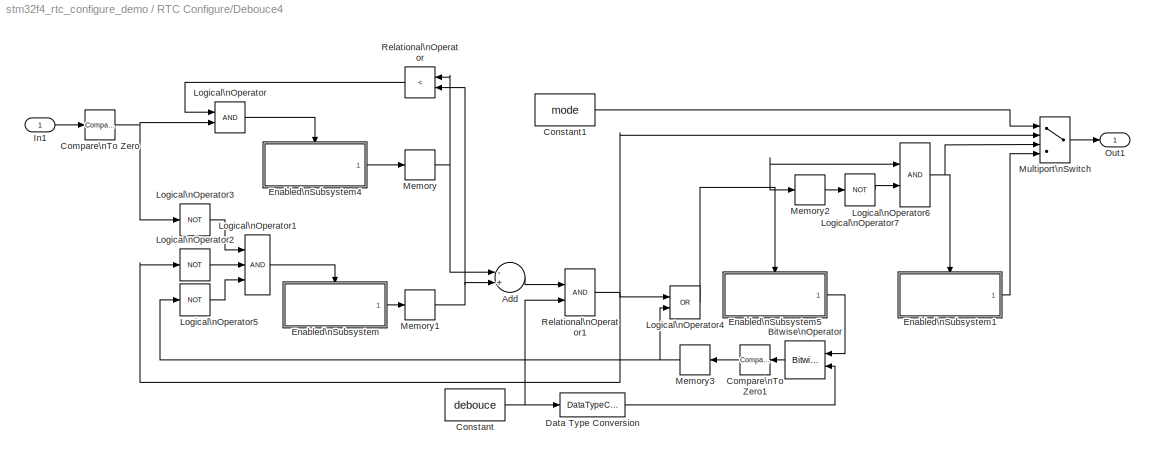
BLOCK [SubSystem] RTC Configure/Debouce4
  FunctionWithSeparateData = off
  MaskCallbackString = waijung_intput_validation_callback('mode');||waijung_intput_validation_callback('prescale');
  MaskDisplay = disp('Button Pressed\\n(Toggle Latch)\\nDebounce count: 256');
  MaskEnableString = on,on,off
  MaskHideContents = off
  MaskIconFrame = on
  MaskIconOpaque = on
  MaskIconRotate = none
  MaskIconUnits = autoscale
  MaskPortRotate = default
  MaskPromptString = Mode|Prescale (Debouce count)|Debouce value
  MaskSelfModifiable = on
  MaskStyleString = popup(Normal|Single Pulse|Toggle Latch),popup(4|8|16|32|64|128|256|512|1024|2048|4096|8192),edit
  MaskTabNameString = ,,
  MaskToolTipString = on,on,on
  MaskTunableValueString = on,on,on
  MaskValueString = Toggle Latch|256|256
  MaskVarAliasString = ,,
  MaskVariables = mode=@1;prescale=@2;debouce=@3;
  MaskVisibilityString = on,on,off
  MinAlgLoopOccurrences = off
  Opaque = off
  Ports = [1, 1]
  PropExecContextOutsideSubsystem = off
  RTWFcnNameOpts = Use subsystem name
  RTWFileNameOpts = Use function name
  RTWSystemCode = Reusable function
  RequestExecContextInheritance = off
  TreatAsAtomicUnit = on
BLOCK [Sum] RTC Configure/Debouce4/Add
  InputSameDT = off
  Inputs = -+
  OutDataType = fixdt(1, 16)
  OutDataTypeMode = int32
  OutDataTypeStr = int32
  OutScaling = 2^-10
  Ports = [2, 1]
  SaturateOnIntegerOverflow = off
BLOCK [Reference] RTC Configure/Debouce4/Bitwise\nOperator  REF=simulink/Logic and Bit\nOperations/Bitwise\nOperator
  BitMask = debouce
  BitMaskRealWorld = Stored Integer
  NumInputPorts = 2
  Ports = [2, 1]
  SourceBlock = simulink/Logic and Bit\nOperations/Bitwise\nOperator
  SourceType = Bitwise Operator
  UseBitMask = off
  logicop = AND
BLOCK [Reference] RTC Configure/Debouce4/Compare\nTo Zero  REF=simulink/Logic and Bit\nOperations/Compare\nTo Zero
  FunctionWithSeparateData = off
  LogicOutDataTypeMode = uint8
  Ports = [1, 1]
  RTWMemSecDataConstants = Inherit from model
  RTWMemSecDataInternal = Inherit from model
  RTWMemSecDataParameters = Inherit from model
  RTWMemSecFuncExecute = Inherit from model
  RTWMemSecFuncInitTerm = Inherit from model
  ShowPortLabels = FromPortIcon
  SourceBlock = simulink/Logic and Bit\nOperations/Compare\nTo Zero
  SourceType = Compare To Zero
  SystemSampleTime = -1
  ZeroCross = off
  relop = ==
BLOCK [Reference] RTC Configure/Debouce4/Compare\nTo Zero1  REF=simulink/Logic and Bit\nOperations/Compare\nTo Zero
  FunctionWithSeparateData = off
  LogicOutDataTypeMode = boolean
  Ports = [1, 1]
  RTWMemSecDataConstants = Inherit from model
  RTWMemSecDataInternal = Inherit from model
  RTWMemSecDataParameters = Inherit from model
  RTWMemSecFuncExecute = Inherit from model
  RTWMemSecFuncInitTerm = Inherit from model
  ShowPortLabels = FromPortIcon
  SourceBlock = simulink/Logic and Bit\nOperations/Compare\nTo Zero
  SourceType = Compare To Zero
  SystemSampleTime = -1
  ZeroCross = off
  relop = ~=
BLOCK [Constant] RTC Configure/Debouce4/Constant
  OutDataType = fixdt(1, 16)
  OutDataTypeMode = int32
  OutDataTypeStr = int32
  OutScaling = 2^0
  Value = debouce
BLOCK [Constant] RTC Configure/Debouce4/Constant1
  OutDataType = fixdt(1, 16)
  OutDataTypeMode = int32
  OutDataTypeStr = int32
  OutScaling = 2^0
  Value = mode
BLOCK [DataTypeConversion] RTC Configure/Debouce4/Data Type Conversion
  OutDataType = fixdt(1, 16)
  OutDataTypeMode = uint32
  OutDataTypeStr = uint32
  OutScaling = 2^0
  RndMeth = Floor
  SaturateOnIntegerOverflow = off
BLOCK [SubSystem] RTC Configure/Debouce4/Enabled\nSubsystem
  FunctionWithSeparateData = off
  MaskHideContents = off
  MinAlgLoopOccurrences = off
  Opaque = off
  Ports = [0, 1, 1]
  PropExecContextOutsideSubsystem = off
  RTWSystemCode = Auto
  RequestExecContextInheritance = off
  TreatAsAtomicUnit = on
BLOCK [Reference] RTC Configure/Debouce4/Enabled\nSubsystem/Counter\nFree-Running  REF=simulink/Sources/Counter\nFree-Running
  FunctionWithSeparateData = off
  NumBits = 32
  Ports = [0, 1]
  RTWMemSecDataConstants = Inherit from model
  RTWMemSecDataInternal = Inherit from model
  RTWMemSecDataParameters = Inherit from model
  RTWMemSecFuncExecute = Inherit from model
  RTWMemSecFuncInitTerm = Inherit from model
  ShowPortLabels = FromPortIcon
  SourceBlock = simulink/Sources/Counter\nFree-Running
  SourceType = Counter Free-Running
  SystemSampleTime = -1
  tsamp = -1
BLOCK [EnablePort] RTC Configure/Debouce4/Enabled\nSubsystem/Enable
  Ports = []
BLOCK [Outport] RTC Configure/Debouce4/Enabled\nSubsystem/Out1
  IconDisplay = Port number
  InitialOutput = 0
  OutDataType = fixdt(1, 16)
  OutScaling = 2^0
BLOCK [SubSystem] RTC Configure/Debouce4/Enabled\nSubsystem1
  FunctionWithSeparateData = off
  MaskHideContents = off
  MinAlgLoopOccurrences = off
  Opaque = off
  Ports = [0, 1, 1]
  PropExecContextOutsideSubsystem = off
  RTWSystemCode = Auto
  RequestExecContextInheritance = off
  TreatAsAtomicUnit = on
BLOCK [Reference] RTC Configure/Debouce4/Enabled\nSubsystem1/Bitwise\nOperator  REF=simulink/Logic and Bit\nOperations/Bitwise\nOperator
  BitMask = 1
  BitMaskRealWorld = Stored Integer
  NumInputPorts = 1
  Ports = [1, 1]
  SourceBlock = simulink/Logic and Bit\nOperations/Bitwise\nOperator
  SourceType = Bitwise Operator
  UseBitMask = on
  logicop = AND
BLOCK [Reference] RTC Configure/Debouce4/Enabled\nSubsystem1/Compare\nTo Zero  REF=simulink/Logic and Bit\nOperations/Compare\nTo Zero
  FunctionWithSeparateData = off
  LogicOutDataTypeMode = uint8
  Ports = [1, 1]
  RTWMemSecDataConstants = Inherit from model
  RTWMemSecDataInternal = Inherit from model
  RTWMemSecDataParameters = Inherit from model
  RTWMemSecFuncExecute = Inherit from model
  RTWMemSecFuncInitTerm = Inherit from model
  ShowPortLabels = FromPortIcon
  SourceBlock = simulink/Logic and Bit\nOperations/Compare\nTo Zero
  SourceType = Compare To Zero
  SystemSampleTime = -1
  ZeroCross = off
  relop = ==
BLOCK [Reference] RTC Configure/Debouce4/Enabled\nSubsystem1/Counter\nFree-Running  REF=simulink/Sources/Counter\nFree-Running
  FunctionWithSeparateData = off
  NumBits = 32
  Ports = [0, 1]
  RTWMemSecDataConstants = Inherit from model
  RTWMemSecDataInternal = Inherit from model
  RTWMemSecDataParameters = Inherit from model
  RTWMemSecFuncExecute = Inherit from model
  RTWMemSecFuncInitTerm = Inherit from model
  ShowPortLabels = FromPortIcon
  SourceBlock = simulink/Sources/Counter\nFree-Running
  SourceType = Counter Free-Running
  SystemSampleTime = -1
  tsamp = -1
BLOCK [EnablePort] RTC Configure/Debouce4/Enabled\nSubsystem1/Enable
  Ports = []
BLOCK [Outport] RTC Configure/Debouce4/Enabled\nSubsystem1/Out1
  IconDisplay = Port number
  InitialOutput = 0
  OutDataType = fixdt(1, 16)
  OutScaling = 2^0
BLOCK [SubSystem] RTC Configure/Debouce4/Enabled\nSubsystem4
  FunctionWithSeparateData = off
  MaskHideContents = off
  MinAlgLoopOccurrences = off
  Opaque = off
  Ports = [0, 1, 1]
  PropExecContextOutsideSubsystem = off
  RTWSystemCode = Auto
  RequestExecContextInheritance = off
  TreatAsAtomicUnit = on
BLOCK [Reference] RTC Configure/Debouce4/Enabled\nSubsystem4/Counter\nFree-Running  REF=simulink/Sources/Counter\nFree-Running
  FunctionWithSeparateData = off
  NumBits = 32
  Ports = [0, 1]
  RTWMemSecDataConstants = Inherit from model
  RTWMemSecDataInternal = Inherit from model
  RTWMemSecDataParameters = Inherit from model
  RTWMemSecFuncExecute = Inherit from model
  RTWMemSecFuncInitTerm = Inherit from model
  ShowPortLabels = FromPortIcon
  SourceBlock = simulink/Sources/Counter\nFree-Running
  SourceType = Counter Free-Running
  SystemSampleTime = -1
  tsamp = -1
BLOCK [EnablePort] RTC Configure/Debouce4/Enabled\nSubsystem4/Enable
  Ports = []
BLOCK [Outport] RTC Configure/Debouce4/Enabled\nSubsystem4/Out1
  IconDisplay = Port number
  InitialOutput = 0
  OutDataType = fixdt(1, 16)
  OutScaling = 2^0
BLOCK [SubSystem] RTC Configure/Debouce4/Enabled\nSubsystem5
  FunctionWithSeparateData = off
  MaskHideContents = off
  MinAlgLoopOccurrences = off
  Opaque = off
  Ports = [0, 1, 1]
  PropExecContextOutsideSubsystem = off
  RTWSystemCode = Auto
  RequestExecContextInheritance = off
  TreatAsAtomicUnit = on
BLOCK [Reference] RTC Configure/Debouce4/Enabled\nSubsystem5/Counter\nFree-Running  REF=simulink/Sources/Counter\nFree-Running
  FunctionWithSeparateData = off
  NumBits = 32
  Ports = [0, 1]
  RTWMemSecDataConstants = Inherit from model
  RTWMemSecDataInternal = Inherit from model
  RTWMemSecDataParameters = Inherit from model
  RTWMemSecFuncExecute = Inherit from model
  RTWMemSecFuncInitTerm = Inherit from model
  ShowPortLabels = FromPortIcon
  SourceBlock = simulink/Sources/Counter\nFree-Running
  SourceType = Counter Free-Running
  SystemSampleTime = -1
  tsamp = -1
BLOCK [EnablePort] RTC Configure/Debouce4/Enabled\nSubsystem5/Enable
  Ports = []
BLOCK [Outport] RTC Configure/Debouce4/Enabled\nSubsystem5/Out1
  IconDisplay = Port number
  InitialOutput = 0
  OutDataType = fixdt(1, 16)
  OutScaling = 2^0
BLOCK [Inport] RTC Configure/Debouce4/In1
  IconDisplay = Port number
  OutDataType = fixdt(1, 16)
  OutScaling = 2^0
BLOCK [Logic] RTC Configure/Debouce4/Logical\nOperator
  AllPortsSameDT = off
  LogicDataType = fixdt(0, 8)
  OutDataTypeMode = boolean
  OutDataTypeStr = boolean
  Ports = [2, 1]
BLOCK [Logic] RTC Configure/Debouce4/Logical\nOperator1
  AllPortsSameDT = off
  Inputs = 3
  LogicDataType = fixdt(0, 8)
  OutDataTypeMode = boolean
  OutDataTypeStr = boolean
  Ports = [3, 1]
BLOCK [Logic] RTC Configure/Debouce4/Logical\nOperator2
  AllPortsSameDT = off
  LogicDataType = fixdt(0, 8)
  Operator = NOT
  OutDataTypeMode = boolean
  OutDataTypeStr = boolean
  Ports = [1, 1]
BLOCK [Logic] RTC Configure/Debouce4/Logical\nOperator3
  AllPortsSameDT = off
  LogicDataType = fixdt(0, 8)
  Operator = NOT
  OutDataTypeMode = boolean
  OutDataTypeStr = boolean
  Ports = [1, 1]
BLOCK [Logic] RTC Configure/Debouce4/Logical\nOperator4
  AllPortsSameDT = off
  LogicDataType = fixdt(0, 8)
  Operator = OR
  OutDataTypeMode = boolean
  OutDataTypeStr = boolean
  Ports = [2, 1]
BLOCK [Logic] RTC Configure/Debouce4/Logical\nOperator5
  AllPortsSameDT = off
  LogicDataType = fixdt(0, 8)
  Operator = NOT
  OutDataTypeMode = boolean
  OutDataTypeStr = boolean
  Ports = [1, 1]
BLOCK [Logic] RTC Configure/Debouce4/Logical\nOperator6
  AllPortsSameDT = off
  LogicDataType = fixdt(0, 8)
  OutDataTypeMode = boolean
  OutDataTypeStr = boolean
  Ports = [2, 1]
BLOCK [Logic] RTC Configure/Debouce4/Logical\nOperator7
  AllPortsSameDT = off
  LogicDataType = fixdt(0, 8)
  Operator = NOT
  OutDataTypeMode = boolean
  OutDataTypeStr = boolean
  Ports = [1, 1]
BLOCK [Memory] RTC Configure/Debouce4/Memory
  LinearizeMemory = on
BLOCK [Memory] RTC Configure/Debouce4/Memory1
  LinearizeMemory = on
BLOCK [Memory] RTC Configure/Debouce4/Memory2
  LinearizeMemory = on
BLOCK [Memory] RTC Configure/Debouce4/Memory3
  LinearizeMemory = on
BLOCK [MultiPortSwitch] RTC Configure/Debouce4/Multiport\nSwitch
  InputSameDT = off
  OutDataType = fixdt(1, 16)
  OutScaling = 2^0
  Ports = [4, 1]
  SaturateOnIntegerOverflow = off
BLOCK [Outport] RTC Configure/Debouce4/Out1
  IconDisplay = Port number
  OutDataType = fixdt(1, 16)
  OutScaling = 2^0
BLOCK [RelationalOperator] RTC Configure/Debouce4/Relational\nOperator
  InputSameDT = off
  LogicDataType = fixdt(0, 8)
  LogicOutDataTypeMode = boolean
  Operator = <
  OutDataTypeStr = boolean
BLOCK [RelationalOperator] RTC Configure/Debouce4/Relational\nOperator1
  LogicDataType = fixdt(0, 8)
  LogicOutDataTypeMode = boolean
  OutDataTypeStr = boolean
BLOCK [SubSystem] RTC Configure/Enabled\nSubsystem
  FunctionWithSeparateData = off
  MaskHideContents = off
  MinAlgLoopOccurrences = off
  Opaque = off
  Ports = [3, 1, 1]
  PropExecContextOutsideSubsystem = off
  RTWSystemCode = Auto
  RequestExecContextInheritance = off
  TreatAsAtomicUnit = on
BLOCK [Outport] RTC Configure/Enabled\nSubsystem/Adjust state
  IconDisplay = Port number
  OutDataType = fixdt(1, 16)
  OutScaling = 2^0
BLOCK [Inport] RTC Configure/Enabled\nSubsystem/DOWN
  IconDisplay = Port number
  OutDataType = fixdt(1, 16)
  OutScaling = 2^0
  Port = 2
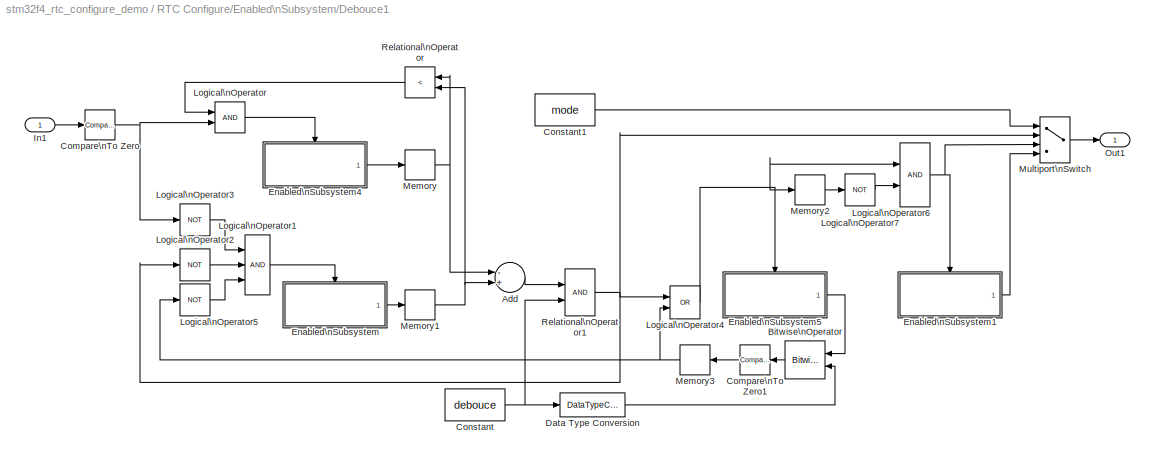
BLOCK [SubSystem] RTC Configure/Enabled\nSubsystem/Debouce1
  FunctionWithSeparateData = off
  MaskCallbackString = waijung_intput_validation_callback('mode');||waijung_intput_validation_callback('prescale');
  MaskDisplay = disp('Button Pressed\\n(Single Pulse)\\nDebounce count: 4');
  MaskEnableString = on,on,off
  MaskHideContents = off
  MaskIconFrame = on
  MaskIconOpaque = on
  MaskIconRotate = none
  MaskIconUnits = autoscale
  MaskPortRotate = default
  MaskPromptString = Mode|Prescale (Debouce count)|Debouce value
  MaskSelfModifiable = on
  MaskStyleString = popup(Normal|Single Pulse|Toggle Latch),popup(4|8|16|32|64|128|256|512|1024|2048|4096|8192),edit
  MaskTabNameString = ,,
  MaskToolTipString = on,on,on
  MaskTunableValueString = on,on,on
  MaskValueString = Single Pulse|4|4
  MaskVarAliasString = ,,
  MaskVariables = mode=@1;prescale=@2;debouce=@3;
  MaskVisibilityString = on,on,off
  MinAlgLoopOccurrences = off
  Opaque = off
  Ports = [1, 1]
  PropExecContextOutsideSubsystem = off
  RTWFcnNameOpts = Use subsystem name
  RTWFileNameOpts = Use function name
  RTWSystemCode = Reusable function
  RequestExecContextInheritance = off
  TreatAsAtomicUnit = on
BLOCK [Sum] RTC Configure/Enabled\nSubsystem/Debouce1/Add
  InputSameDT = off
  Inputs = -+
  OutDataType = fixdt(1, 16)
  OutDataTypeMode = int32
  OutDataTypeStr = int32
  OutScaling = 2^-10
  Ports = [2, 1]
  SaturateOnIntegerOverflow = off
BLOCK [Reference] RTC Configure/Enabled\nSubsystem/Debouce1/Bitwise\nOperator  REF=simulink/Logic and Bit\nOperations/Bitwise\nOperator
  BitMask = debouce
  BitMaskRealWorld = Stored Integer
  NumInputPorts = 2
  Ports = [2, 1]
  SourceBlock = simulink/Logic and Bit\nOperations/Bitwise\nOperator
  SourceType = Bitwise Operator
  UseBitMask = off
  logicop = AND
BLOCK [Reference] RTC Configure/Enabled\nSubsystem/Debouce1/Compare\nTo Zero  REF=simulink/Logic and Bit\nOperations/Compare\nTo Zero
  FunctionWithSeparateData = off
  LogicOutDataTypeMode = uint8
  Ports = [1, 1]
  RTWMemSecDataConstants = Inherit from model
  RTWMemSecDataInternal = Inherit from model
  RTWMemSecDataParameters = Inherit from model
  RTWMemSecFuncExecute = Inherit from model
  RTWMemSecFuncInitTerm = Inherit from model
  ShowPortLabels = FromPortIcon
  SourceBlock = simulink/Logic and Bit\nOperations/Compare\nTo Zero
  SourceType = Compare To Zero
  SystemSampleTime = -1
  ZeroCross = off
  relop = ==
BLOCK [Reference] RTC Configure/Enabled\nSubsystem/Debouce1/Compare\nTo Zero1  REF=simulink/Logic and Bit\nOperations/Compare\nTo Zero
  FunctionWithSeparateData = off
  LogicOutDataTypeMode = boolean
  Ports = [1, 1]
  RTWMemSecDataConstants = Inherit from model
  RTWMemSecDataInternal = Inherit from model
  RTWMemSecDataParameters = Inherit from model
  RTWMemSecFuncExecute = Inherit from model
  RTWMemSecFuncInitTerm = Inherit from model
  ShowPortLabels = FromPortIcon
  SourceBlock = simulink/Logic and Bit\nOperations/Compare\nTo Zero
  SourceType = Compare To Zero
  SystemSampleTime = -1
  ZeroCross = off
  relop = ~=
BLOCK [Constant] RTC Configure/Enabled\nSubsystem/Debouce1/Constant
  OutDataType = fixdt(1, 16)
  OutDataTypeMode = int32
  OutDataTypeStr = int32
  OutScaling = 2^0
  Value = debouce
BLOCK [Constant] RTC Configure/Enabled\nSubsystem/Debouce1/Constant1
  OutDataType = fixdt(1, 16)
  OutDataTypeMode = int32
  OutDataTypeStr = int32
  OutScaling = 2^0
  Value = mode
BLOCK [DataTypeConversion] RTC Configure/Enabled\nSubsystem/Debouce1/Data Type Conversion
  OutDataType = fixdt(1, 16)
  OutDataTypeMode = uint32
  OutDataTypeStr = uint32
  OutScaling = 2^0
  RndMeth = Floor
  SaturateOnIntegerOverflow = off
BLOCK [SubSystem] RTC Configure/Enabled\nSubsystem/Debouce1/Enabled\nSubsystem
  FunctionWithSeparateData = off
  MaskHideContents = off
  MinAlgLoopOccurrences = off
  Opaque = off
  Ports = [0, 1, 1]
  PropExecContextOutsideSubsystem = off
  RTWSystemCode = Auto
  RequestExecContextInheritance = off
  TreatAsAtomicUnit = on
BLOCK [Reference] RTC Configure/Enabled\nSubsystem/Debouce1/Enabled\nSubsystem/Counter\nFree-Running  REF=simulink/Sources/Counter\nFree-Running
  FunctionWithSeparateData = off
  NumBits = 32
  Ports = [0, 1]
  RTWMemSecDataConstants = Inherit from model
  RTWMemSecDataInternal = Inherit from model
  RTWMemSecDataParameters = Inherit from model
  RTWMemSecFuncExecute = Inherit from model
  RTWMemSecFuncInitTerm = Inherit from model
  ShowPortLabels = FromPortIcon
  SourceBlock = simulink/Sources/Counter\nFree-Running
  SourceType = Counter Free-Running
  SystemSampleTime = -1
  tsamp = -1
BLOCK [EnablePort] RTC Configure/Enabled\nSubsystem/Debouce1/Enabled\nSubsystem/Enable
  Ports = []
BLOCK [Outport] RTC Configure/Enabled\nSubsystem/Debouce1/Enabled\nSubsystem/Out1
  IconDisplay = Port number
  InitialOutput = 0
  OutDataType = fixdt(1, 16)
  OutScaling = 2^0
BLOCK [SubSystem] RTC Configure/Enabled\nSubsystem/Debouce1/Enabled\nSubsystem1
  FunctionWithSeparateData = off
  MaskHideContents = off
  MinAlgLoopOccurrences = off
  Opaque = off
  Ports = [0, 1, 1]
  PropExecContextOutsideSubsystem = off
  RTWSystemCode = Auto
  RequestExecContextInheritance = off
  TreatAsAtomicUnit = on
BLOCK [Reference] RTC Configure/Enabled\nSubsystem/Debouce1/Enabled\nSubsystem1/Bitwise\nOperator  REF=simulink/Logic and Bit\nOperations/Bitwise\nOperator
  BitMask = 1
  BitMaskRealWorld = Stored Integer
  NumInputPorts = 1
  Ports = [1, 1]
  SourceBlock = simulink/Logic and Bit\nOperations/Bitwise\nOperator
  SourceType = Bitwise Operator
  UseBitMask = on
  logicop = AND
BLOCK [Reference] RTC Configure/Enabled\nSubsystem/Debouce1/Enabled\nSubsystem1/Compare\nTo Zero  REF=simulink/Logic and Bit\nOperations/Compare\nTo Zero
  FunctionWithSeparateData = off
  LogicOutDataTypeMode = uint8
  Ports = [1, 1]
  RTWMemSecDataConstants = Inherit from model
  RTWMemSecDataInternal = Inherit from model
  RTWMemSecDataParameters = Inherit from model
  RTWMemSecFuncExecute = Inherit from model
  RTWMemSecFuncInitTerm = Inherit from model
  ShowPortLabels = FromPortIcon
  SourceBlock = simulink/Logic and Bit\nOperations/Compare\nTo Zero
  SourceType = Compare To Zero
  SystemSampleTime = -1
  ZeroCross = off
  relop = ==
BLOCK [Reference] RTC Configure/Enabled\nSubsystem/Debouce1/Enabled\nSubsystem1/Counter\nFree-Running  REF=simulink/Sources/Counter\nFree-Running
  FunctionWithSeparateData = off
  NumBits = 32
  Ports = [0, 1]
  RTWMemSecDataConstants = Inherit from model
  RTWMemSecDataInternal = Inherit from model
  RTWMemSecDataParameters = Inherit from model
  RTWMemSecFuncExecute = Inherit from model
  RTWMemSecFuncInitTerm = Inherit from model
  ShowPortLabels = FromPortIcon
  SourceBlock = simulink/Sources/Counter\nFree-Running
  SourceType = Counter Free-Running
  SystemSampleTime = -1
  tsamp = -1
BLOCK [EnablePort] RTC Configure/Enabled\nSubsystem/Debouce1/Enabled\nSubsystem1/Enable
  Ports = []
BLOCK [Outport] RTC Configure/Enabled\nSubsystem/Debouce1/Enabled\nSubsystem1/Out1
  IconDisplay = Port number
  InitialOutput = 0
  OutDataType = fixdt(1, 16)
  OutScaling = 2^0
BLOCK [SubSystem] RTC Configure/Enabled\nSubsystem/Debouce1/Enabled\nSubsystem4
  FunctionWithSeparateData = off
  MaskHideContents = off
  MinAlgLoopOccurrences = off
  Opaque = off
  Ports = [0, 1, 1]
  PropExecContextOutsideSubsystem = off
  RTWSystemCode = Auto
  RequestExecContextInheritance = off
  TreatAsAtomicUnit = on
BLOCK [Reference] RTC Configure/Enabled\nSubsystem/Debouce1/Enabled\nSubsystem4/Counter\nFree-Running  REF=simulink/Sources/Counter\nFree-Running
  FunctionWithSeparateData = off
  NumBits = 32
  Ports = [0, 1]
  RTWMemSecDataConstants = Inherit from model
  RTWMemSecDataInternal = Inherit from model
  RTWMemSecDataParameters = Inherit from model
  RTWMemSecFuncExecute = Inherit from model
  RTWMemSecFuncInitTerm = Inherit from model
  ShowPortLabels = FromPortIcon
  SourceBlock = simulink/Sources/Counter\nFree-Running
  SourceType = Counter Free-Running
  SystemSampleTime = -1
  tsamp = -1
BLOCK [EnablePort] RTC Configure/Enabled\nSubsystem/Debouce1/Enabled\nSubsystem4/Enable
  Ports = []
BLOCK [Outport] RTC Configure/Enabled\nSubsystem/Debouce1/Enabled\nSubsystem4/Out1
  IconDisplay = Port number
  InitialOutput = 0
  OutDataType = fixdt(1, 16)
  OutScaling = 2^0
BLOCK [SubSystem] RTC Configure/Enabled\nSubsystem/Debouce1/Enabled\nSubsystem5
  FunctionWithSeparateData = off
  MaskHideContents = off
  MinAlgLoopOccurrences = off
  Opaque = off
  Ports = [0, 1, 1]
  PropExecContextOutsideSubsystem = off
  RTWSystemCode = Auto
  RequestExecContextInheritance = off
  TreatAsAtomicUnit = on
BLOCK [Reference] RTC Configure/Enabled\nSubsystem/Debouce1/Enabled\nSubsystem5/Counter\nFree-Running  REF=simulink/Sources/Counter\nFree-Running
  FunctionWithSeparateData = off
  NumBits = 32
  Ports = [0, 1]
  RTWMemSecDataConstants = Inherit from model
  RTWMemSecDataInternal = Inherit from model
  RTWMemSecDataParameters = Inherit from model
  RTWMemSecFuncExecute = Inherit from model
  RTWMemSecFuncInitTerm = Inherit from model
  ShowPortLabels = FromPortIcon
  SourceBlock = simulink/Sources/Counter\nFree-Running
  SourceType = Counter Free-Running
  SystemSampleTime = -1
  tsamp = -1
BLOCK [EnablePort] RTC Configure/Enabled\nSubsystem/Debouce1/Enabled\nSubsystem5/Enable
  Ports = []
BLOCK [Outport] RTC Configure/Enabled\nSubsystem/Debouce1/Enabled\nSubsystem5/Out1
  IconDisplay = Port number
  InitialOutput = 0
  OutDataType = fixdt(1, 16)
  OutScaling = 2^0
BLOCK [Inport] RTC Configure/Enabled\nSubsystem/Debouce1/In1
  IconDisplay = Port number
  OutDataType = fixdt(1, 16)
  OutScaling = 2^0
BLOCK [Logic] RTC Configure/Enabled\nSubsystem/Debouce1/Logical\nOperator
  AllPortsSameDT = off
  LogicDataType = fixdt(0, 8)
  OutDataTypeMode = boolean
  OutDataTypeStr = boolean
  Ports = [2, 1]
BLOCK [Logic] RTC Configure/Enabled\nSubsystem/Debouce1/Logical\nOperator1
  AllPortsSameDT = off
  Inputs = 3
  LogicDataType = fixdt(0, 8)
  OutDataTypeMode = boolean
  OutDataTypeStr = boolean
  Ports = [3, 1]
BLOCK [Logic] RTC Configure/Enabled\nSubsystem/Debouce1/Logical\nOperator2
  AllPortsSameDT = off
  LogicDataType = fixdt(0, 8)
  Operator = NOT
  OutDataTypeMode = boolean
  OutDataTypeStr = boolean
  Ports = [1, 1]
BLOCK [Logic] RTC Configure/Enabled\nSubsystem/Debouce1/Logical\nOperator3
  AllPortsSameDT = off
  LogicDataType = fixdt(0, 8)
  Operator = NOT
  OutDataTypeMode = boolean
  OutDataTypeStr = boolean
  Ports = [1, 1]
BLOCK [Logic] RTC Configure/Enabled\nSubsystem/Debouce1/Logical\nOperator4
  AllPortsSameDT = off
  LogicDataType = fixdt(0, 8)
  Operator = OR
  OutDataTypeMode = boolean
  OutDataTypeStr = boolean
  Ports = [2, 1]
BLOCK [Logic] RTC Configure/Enabled\nSubsystem/Debouce1/Logical\nOperator5
  AllPortsSameDT = off
  LogicDataType = fixdt(0, 8)
  Operator = NOT
  OutDataTypeMode = boolean
  OutDataTypeStr = boolean
  Ports = [1, 1]
BLOCK [Logic] RTC Configure/Enabled\nSubsystem/Debouce1/Logical\nOperator6
  AllPortsSameDT = off
  LogicDataType = fixdt(0, 8)
  OutDataTypeMode = boolean
  OutDataTypeStr = boolean
  Ports = [2, 1]
BLOCK [Logic] RTC Configure/Enabled\nSubsystem/Debouce1/Logical\nOperator7
  AllPortsSameDT = off
  LogicDataType = fixdt(0, 8)
  Operator = NOT
  OutDataTypeMode = boolean
  OutDataTypeStr = boolean
  Ports = [1, 1]
BLOCK [Memory] RTC Configure/Enabled\nSubsystem/Debouce1/Memory
  LinearizeMemory = on
BLOCK [Memory] RTC Configure/Enabled\nSubsystem/Debouce1/Memory1
  LinearizeMemory = on
BLOCK [Memory] RTC Configure/Enabled\nSubsystem/Debouce1/Memory2
  LinearizeMemory = on
BLOCK [Memory] RTC Configure/Enabled\nSubsystem/Debouce1/Memory3
  LinearizeMemory = on
BLOCK [MultiPortSwitch] RTC Configure/Enabled\nSubsystem/Debouce1/Multiport\nSwitch
  InputSameDT = off
  OutDataType = fixdt(1, 16)
  OutScaling = 2^0
  Ports = [4, 1]
  SaturateOnIntegerOverflow = off
BLOCK [Outport] RTC Configure/Enabled\nSubsystem/Debouce1/Out1
  IconDisplay = Port number
  OutDataType = fixdt(1, 16)
  OutScaling = 2^0
BLOCK [RelationalOperator] RTC Configure/Enabled\nSubsystem/Debouce1/Relational\nOperator
  InputSameDT = off
  LogicDataType = fixdt(0, 8)
  LogicOutDataTypeMode = boolean
  Operator = <
  OutDataTypeStr = boolean
BLOCK [RelationalOperator] RTC Configure/Enabled\nSubsystem/Debouce1/Relational\nOperator1
  LogicDataType = fixdt(0, 8)
  LogicOutDataTypeMode = boolean
  OutDataTypeStr = boolean
BLOCK [SubSystem] RTC Configure/Enabled\nSubsystem/Debouce2
  FunctionWithSeparateData = off
  MaskCallbackString = waijung_intput_validation_callback('mode');||waijung_intput_validation_callback('prescale');
  MaskDisplay = disp('Button Pressed\\n(Single Pulse)\\nDebounce count: 4');
  MaskEnableString = on,on,off
  MaskHideContents = off
  MaskIconFrame = on
  MaskIconOpaque = on
  MaskIconRotate = none
  MaskIconUnits = autoscale
  MaskPortRotate = default
  MaskPromptString = Mode|Prescale (Debouce count)|Debouce value
  MaskSelfModifiable = on
  MaskStyleString = popup(Normal|Single Pulse|Toggle Latch),popup(4|8|16|32|64|128|256|512|1024|2048|4096|8192),edit
  MaskTabNameString = ,,
  MaskToolTipString = on,on,on
  MaskTunableValueString = on,on,on
  MaskValueString = Single Pulse|4|4
  MaskVarAliasString = ,,
  MaskVariables = mode=@1;prescale=@2;debouce=@3;
  MaskVisibilityString = on,on,off
  MinAlgLoopOccurrences = off
  Opaque = off
  Ports = [1, 1]
  PropExecContextOutsideSubsystem = off
  RTWFcnNameOpts = Use subsystem name
  RTWFileNameOpts = Use function name
  RTWSystemCode = Reusable function
  RequestExecContextInheritance = off
  TreatAsAtomicUnit = on
BLOCK [Sum] RTC Configure/Enabled\nSubsystem/Debouce2/Add
  InputSameDT = off
  Inputs = -+
  OutDataType = fixdt(1, 16)
  OutDataTypeMode = int32
  OutDataTypeStr = int32
  OutScaling = 2^-10
  Ports = [2, 1]
  SaturateOnIntegerOverflow = off
BLOCK [Reference] RTC Configure/Enabled\nSubsystem/Debouce2/Bitwise\nOperator  REF=simulink/Logic and Bit\nOperations/Bitwise\nOperator
  BitMask = debouce
  BitMaskRealWorld = Stored Integer
  NumInputPorts = 2
  Ports = [2, 1]
  SourceBlock = simulink/Logic and Bit\nOperations/Bitwise\nOperator
  SourceType = Bitwise Operator
  UseBitMask = off
  logicop = AND
BLOCK [Reference] RTC Configure/Enabled\nSubsystem/Debouce2/Compare\nTo Zero  REF=simulink/Logic and Bit\nOperations/Compare\nTo Zero
  FunctionWithSeparateData = off
  LogicOutDataTypeMode = uint8
  Ports = [1, 1]
  RTWMemSecDataConstants = Inherit from model
  RTWMemSecDataInternal = Inherit from model
  RTWMemSecDataParameters = Inherit from model
  RTWMemSecFuncExecute = Inherit from model
  RTWMemSecFuncInitTerm = Inherit from model
  ShowPortLabels = FromPortIcon
  SourceBlock = simulink/Logic and Bit\nOperations/Compare\nTo Zero
  SourceType = Compare To Zero
  SystemSampleTime = -1
  ZeroCross = off
  relop = ==
BLOCK [Reference] RTC Configure/Enabled\nSubsystem/Debouce2/Compare\nTo Zero1  REF=simulink/Logic and Bit\nOperations/Compare\nTo Zero
  FunctionWithSeparateData = off
  LogicOutDataTypeMode = boolean
  Ports = [1, 1]
  RTWMemSecDataConstants = Inherit from model
  RTWMemSecDataInternal = Inherit from model
  RTWMemSecDataParameters = Inherit from model
  RTWMemSecFuncExecute = Inherit from model
  RTWMemSecFuncInitTerm = Inherit from model
  ShowPortLabels = FromPortIcon
  SourceBlock = simulink/Logic and Bit\nOperations/Compare\nTo Zero
  SourceType = Compare To Zero
  SystemSampleTime = -1
  ZeroCross = off
  relop = ~=
BLOCK [Constant] RTC Configure/Enabled\nSubsystem/Debouce2/Constant
  OutDataType = fixdt(1, 16)
  OutDataTypeMode = int32
  OutDataTypeStr = int32
  OutScaling = 2^0
  Value = debouce
BLOCK [Constant] RTC Configure/Enabled\nSubsystem/Debouce2/Constant1
  OutDataType = fixdt(1, 16)
  OutDataTypeMode = int32
  OutDataTypeStr = int32
  OutScaling = 2^0
  Value = mode
BLOCK [DataTypeConversion] RTC Configure/Enabled\nSubsystem/Debouce2/Data Type Conversion
  OutDataType = fixdt(1, 16)
  OutDataTypeMode = uint32
  OutDataTypeStr = uint32
  OutScaling = 2^0
  RndMeth = Floor
  SaturateOnIntegerOverflow = off
BLOCK [SubSystem] RTC Configure/Enabled\nSubsystem/Debouce2/Enabled\nSubsystem
  FunctionWithSeparateData = off
  MaskHideContents = off
  MinAlgLoopOccurrences = off
  Opaque = off
  Ports = [0, 1, 1]
  PropExecContextOutsideSubsystem = off
  RTWSystemCode = Auto
  RequestExecContextInheritance = off
  TreatAsAtomicUnit = on
BLOCK [Reference] RTC Configure/Enabled\nSubsystem/Debouce2/Enabled\nSubsystem/Counter\nFree-Running  REF=simulink/Sources/Counter\nFree-Running
  FunctionWithSeparateData = off
  NumBits = 32
  Ports = [0, 1]
  RTWMemSecDataConstants = Inherit from model
  RTWMemSecDataInternal = Inherit from model
  RTWMemSecDataParameters = Inherit from model
  RTWMemSecFuncExecute = Inherit from model
  RTWMemSecFuncInitTerm = Inherit from model
  ShowPortLabels = FromPortIcon
  SourceBlock = simulink/Sources/Counter\nFree-Running
  SourceType = Counter Free-Running
  SystemSampleTime = -1
  tsamp = -1
BLOCK [EnablePort] RTC Configure/Enabled\nSubsystem/Debouce2/Enabled\nSubsystem/Enable
  Ports = []
BLOCK [Outport] RTC Configure/Enabled\nSubsystem/Debouce2/Enabled\nSubsystem/Out1
  IconDisplay = Port number
  InitialOutput = 0
  OutDataType = fixdt(1, 16)
  OutScaling = 2^0
BLOCK [SubSystem] RTC Configure/Enabled\nSubsystem/Debouce2/Enabled\nSubsystem1
  FunctionWithSeparateData = off
  MaskHideContents = off
  MinAlgLoopOccurrences = off
  Opaque = off
  Ports = [0, 1, 1]
  PropExecContextOutsideSubsystem = off
  RTWSystemCode = Auto
  RequestExecContextInheritance = off
  TreatAsAtomicUnit = on
BLOCK [Reference] RTC Configure/Enabled\nSubsystem/Debouce2/Enabled\nSubsystem1/Bitwise\nOperator  REF=simulink/Logic and Bit\nOperations/Bitwise\nOperator
  BitMask = 1
  BitMaskRealWorld = Stored Integer
  NumInputPorts = 1
  Ports = [1, 1]
  SourceBlock = simulink/Logic and Bit\nOperations/Bitwise\nOperator
  SourceType = Bitwise Operator
  UseBitMask = on
  logicop = AND
BLOCK [Reference] RTC Configure/Enabled\nSubsystem/Debouce2/Enabled\nSubsystem1/Compare\nTo Zero  REF=simulink/Logic and Bit\nOperations/Compare\nTo Zero
  FunctionWithSeparateData = off
  LogicOutDataTypeMode = uint8
  Ports = [1, 1]
  RTWMemSecDataConstants = Inherit from model
  RTWMemSecDataInternal = Inherit from model
  RTWMemSecDataParameters = Inherit from model
  RTWMemSecFuncExecute = Inherit from model
  RTWMemSecFuncInitTerm = Inherit from model
  ShowPortLabels = FromPortIcon
  SourceBlock = simulink/Logic and Bit\nOperations/Compare\nTo Zero
  SourceType = Compare To Zero
  SystemSampleTime = -1
  ZeroCross = off
  relop = ==
BLOCK [Reference] RTC Configure/Enabled\nSubsystem/Debouce2/Enabled\nSubsystem1/Counter\nFree-Running  REF=simulink/Sources/Counter\nFree-Running
  FunctionWithSeparateData = off
  NumBits = 32
  Ports = [0, 1]
  RTWMemSecDataConstants = Inherit from model
  RTWMemSecDataInternal = Inherit from model
  RTWMemSecDataParameters = Inherit from model
  RTWMemSecFuncExecute = Inherit from model
  RTWMemSecFuncInitTerm = Inherit from model
  ShowPortLabels = FromPortIcon
  SourceBlock = simulink/Sources/Counter\nFree-Running
  SourceType = Counter Free-Running
  SystemSampleTime = -1
  tsamp = -1
BLOCK [EnablePort] RTC Configure/Enabled\nSubsystem/Debouce2/Enabled\nSubsystem1/Enable
  Ports = []
BLOCK [Outport] RTC Configure/Enabled\nSubsystem/Debouce2/Enabled\nSubsystem1/Out1
  IconDisplay = Port number
  InitialOutput = 0
  OutDataType = fixdt(1, 16)
  OutScaling = 2^0
BLOCK [SubSystem] RTC Configure/Enabled\nSubsystem/Debouce2/Enabled\nSubsystem4
  FunctionWithSeparateData = off
  MaskHideContents = off
  MinAlgLoopOccurrences = off
  Opaque = off
  Ports = [0, 1, 1]
  PropExecContextOutsideSubsystem = off
  RTWSystemCode = Auto
  RequestExecContextInheritance = off
  TreatAsAtomicUnit = on
BLOCK [Reference] RTC Configure/Enabled\nSubsystem/Debouce2/Enabled\nSubsystem4/Counter\nFree-Running  REF=simulink/Sources/Counter\nFree-Running
  FunctionWithSeparateData = off
  NumBits = 32
  Ports = [0, 1]
  RTWMemSecDataConstants = Inherit from model
  RTWMemSecDataInternal = Inherit from model
  RTWMemSecDataParameters = Inherit from model
  RTWMemSecFuncExecute = Inherit from model
  RTWMemSecFuncInitTerm = Inherit from model
  ShowPortLabels = FromPortIcon
  SourceBlock = simulink/Sources/Counter\nFree-Running
  SourceType = Counter Free-Running
  SystemSampleTime = -1
  tsamp = -1
BLOCK [EnablePort] RTC Configure/Enabled\nSubsystem/Debouce2/Enabled\nSubsystem4/Enable
  Ports = []
BLOCK [Outport] RTC Configure/Enabled\nSubsystem/Debouce2/Enabled\nSubsystem4/Out1
  IconDisplay = Port number
  InitialOutput = 0
  OutDataType = fixdt(1, 16)
  OutScaling = 2^0
BLOCK [SubSystem] RTC Configure/Enabled\nSubsystem/Debouce2/Enabled\nSubsystem5
  FunctionWithSeparateData = off
  MaskHideContents = off
  MinAlgLoopOccurrences = off
  Opaque = off
  Ports = [0, 1, 1]
  PropExecContextOutsideSubsystem = off
  RTWSystemCode = Auto
  RequestExecContextInheritance = off
  TreatAsAtomicUnit = on
BLOCK [Reference] RTC Configure/Enabled\nSubsystem/Debouce2/Enabled\nSubsystem5/Counter\nFree-Running  REF=simulink/Sources/Counter\nFree-Running
  FunctionWithSeparateData = off
  NumBits = 32
  Ports = [0, 1]
  RTWMemSecDataConstants = Inherit from model
  RTWMemSecDataInternal = Inherit from model
  RTWMemSecDataParameters = Inherit from model
  RTWMemSecFuncExecute = Inherit from model
  RTWMemSecFuncInitTerm = Inherit from model
  ShowPortLabels = FromPortIcon
  SourceBlock = simulink/Sources/Counter\nFree-Running
  SourceType = Counter Free-Running
  SystemSampleTime = -1
  tsamp = -1
BLOCK [EnablePort] RTC Configure/Enabled\nSubsystem/Debouce2/Enabled\nSubsystem5/Enable
  Ports = []
BLOCK [Outport] RTC Configure/Enabled\nSubsystem/Debouce2/Enabled\nSubsystem5/Out1
  IconDisplay = Port number
  InitialOutput = 0
  OutDataType = fixdt(1, 16)
  OutScaling = 2^0
BLOCK [Inport] RTC Configure/Enabled\nSubsystem/Debouce2/In1
  IconDisplay = Port number
  OutDataType = fixdt(1, 16)
  OutScaling = 2^0
BLOCK [Logic] RTC Configure/Enabled\nSubsystem/Debouce2/Logical\nOperator
  AllPortsSameDT = off
  LogicDataType = fixdt(0, 8)
  OutDataTypeMode = boolean
  OutDataTypeStr = boolean
  Ports = [2, 1]
BLOCK [Logic] RTC Configure/Enabled\nSubsystem/Debouce2/Logical\nOperator1
  AllPortsSameDT = off
  Inputs = 3
  LogicDataType = fixdt(0, 8)
  OutDataTypeMode = boolean
  OutDataTypeStr = boolean
  Ports = [3, 1]
BLOCK [Logic] RTC Configure/Enabled\nSubsystem/Debouce2/Logical\nOperator2
  AllPortsSameDT = off
  LogicDataType = fixdt(0, 8)
  Operator = NOT
  OutDataTypeMode = boolean
  OutDataTypeStr = boolean
  Ports = [1, 1]
BLOCK [Logic] RTC Configure/Enabled\nSubsystem/Debouce2/Logical\nOperator3
  AllPortsSameDT = off
  LogicDataType = fixdt(0, 8)
  Operator = NOT
  OutDataTypeMode = boolean
  OutDataTypeStr = boolean
  Ports = [1, 1]
BLOCK [Logic] RTC Configure/Enabled\nSubsystem/Debouce2/Logical\nOperator4
  AllPortsSameDT = off
  LogicDataType = fixdt(0, 8)
  Operator = OR
  OutDataTypeMode = boolean
  OutDataTypeStr = boolean
  Ports = [2, 1]
BLOCK [Logic] RTC Configure/Enabled\nSubsystem/Debouce2/Logical\nOperator5
  AllPortsSameDT = off
  LogicDataType = fixdt(0, 8)
  Operator = NOT
  OutDataTypeMode = boolean
  OutDataTypeStr = boolean
  Ports = [1, 1]
BLOCK [Logic] RTC Configure/Enabled\nSubsystem/Debouce2/Logical\nOperator6
  AllPortsSameDT = off
  LogicDataType = fixdt(0, 8)
  OutDataTypeMode = boolean
  OutDataTypeStr = boolean
  Ports = [2, 1]
BLOCK [Logic] RTC Configure/Enabled\nSubsystem/Debouce2/Logical\nOperator7
  AllPortsSameDT = off
  LogicDataType = fixdt(0, 8)
  Operator = NOT
  OutDataTypeMode = boolean
  OutDataTypeStr = boolean
  Ports = [1, 1]
BLOCK [Memory] RTC Configure/Enabled\nSubsystem/Debouce2/Memory
  LinearizeMemory = on
BLOCK [Memory] RTC Configure/Enabled\nSubsystem/Debouce2/Memory1
  LinearizeMemory = on
BLOCK [Memory] RTC Configure/Enabled\nSubsystem/Debouce2/Memory2
  LinearizeMemory = on
BLOCK [Memory] RTC Configure/Enabled\nSubsystem/Debouce2/Memory3
  LinearizeMemory = on
BLOCK [MultiPortSwitch] RTC Configure/Enabled\nSubsystem/Debouce2/Multiport\nSwitch
  InputSameDT = off
  OutDataType = fixdt(1, 16)
  OutScaling = 2^0
  Ports = [4, 1]
  SaturateOnIntegerOverflow = off
BLOCK [Outport] RTC Configure/Enabled\nSubsystem/Debouce2/Out1
  IconDisplay = Port number
  OutDataType = fixdt(1, 16)
  OutScaling = 2^0
BLOCK [RelationalOperator] RTC Configure/Enabled\nSubsystem/Debouce2/Relational\nOperator
  InputSameDT = off
  LogicDataType = fixdt(0, 8)
  LogicOutDataTypeMode = boolean
  Operator = <
  OutDataTypeStr = boolean
BLOCK [RelationalOperator] RTC Configure/Enabled\nSubsystem/Debouce2/Relational\nOperator1
  LogicDataType = fixdt(0, 8)
  LogicOutDataTypeMode = boolean
  OutDataTypeStr = boolean
BLOCK [SubSystem] RTC Configure/Enabled\nSubsystem/Debouce3
  FunctionWithSeparateData = off
  MaskCallbackString = waijung_intput_validation_callback('mode');||waijung_intput_validation_callback('prescale');
  MaskDisplay = disp('Button Pressed\\n(Single Pulse)\\nDebounce count: 4');
  MaskEnableString = on,on,off
  MaskHideContents = off
  MaskIconFrame = on
  MaskIconOpaque = on
  MaskIconRotate = none
  MaskIconUnits = autoscale
  MaskPortRotate = default
  MaskPromptString = Mode|Prescale (Debouce count)|Debouce value
  MaskSelfModifiable = on
  MaskStyleString = popup(Normal|Single Pulse|Toggle Latch),popup(4|8|16|32|64|128|256|512|1024|2048|4096|8192),edit
  MaskTabNameString = ,,
  MaskToolTipString = on,on,on
  MaskTunableValueString = on,on,on
  MaskValueString = Single Pulse|4|4
  MaskVarAliasString = ,,
  MaskVariables = mode=@1;prescale=@2;debouce=@3;
  MaskVisibilityString = on,on,off
  MinAlgLoopOccurrences = off
  Opaque = off
  Ports = [1, 1]
  PropExecContextOutsideSubsystem = off
  RTWFcnNameOpts = Use subsystem name
  RTWFileNameOpts = Use function name
  RTWSystemCode = Reusable function
  RequestExecContextInheritance = off
  TreatAsAtomicUnit = on
BLOCK [Sum] RTC Configure/Enabled\nSubsystem/Debouce3/Add
  InputSameDT = off
  Inputs = -+
  OutDataType = fixdt(1, 16)
  OutDataTypeMode = int32
  OutDataTypeStr = int32
  OutScaling = 2^-10
  Ports = [2, 1]
  SaturateOnIntegerOverflow = off
BLOCK [Reference] RTC Configure/Enabled\nSubsystem/Debouce3/Bitwise\nOperator  REF=simulink/Logic and Bit\nOperations/Bitwise\nOperator
  BitMask = debouce
  BitMaskRealWorld = Stored Integer
  NumInputPorts = 2
  Ports = [2, 1]
  SourceBlock = simulink/Logic and Bit\nOperations/Bitwise\nOperator
  SourceType = Bitwise Operator
  UseBitMask = off
  logicop = AND
BLOCK [Reference] RTC Configure/Enabled\nSubsystem/Debouce3/Compare\nTo Zero  REF=simulink/Logic and Bit\nOperations/Compare\nTo Zero
  FunctionWithSeparateData = off
  LogicOutDataTypeMode = uint8
  Ports = [1, 1]
  RTWMemSecDataConstants = Inherit from model
  RTWMemSecDataInternal = Inherit from model
  RTWMemSecDataParameters = Inherit from model
  RTWMemSecFuncExecute = Inherit from model
  RTWMemSecFuncInitTerm = Inherit from model
  ShowPortLabels = FromPortIcon
  SourceBlock = simulink/Logic and Bit\nOperations/Compare\nTo Zero
  SourceType = Compare To Zero
  SystemSampleTime = -1
  ZeroCross = off
  relop = ==
BLOCK [Reference] RTC Configure/Enabled\nSubsystem/Debouce3/Compare\nTo Zero1  REF=simulink/Logic and Bit\nOperations/Compare\nTo Zero
  FunctionWithSeparateData = off
  LogicOutDataTypeMode = boolean
  Ports = [1, 1]
  RTWMemSecDataConstants = Inherit from model
  RTWMemSecDataInternal = Inherit from model
  RTWMemSecDataParameters = Inherit from model
  RTWMemSecFuncExecute = Inherit from model
  RTWMemSecFuncInitTerm = Inherit from model
  ShowPortLabels = FromPortIcon
  SourceBlock = simulink/Logic and Bit\nOperations/Compare\nTo Zero
  SourceType = Compare To Zero
  SystemSampleTime = -1
  ZeroCross = off
  relop = ~=
BLOCK [Constant] RTC Configure/Enabled\nSubsystem/Debouce3/Constant
  OutDataType = fixdt(1, 16)
  OutDataTypeMode = int32
  OutDataTypeStr = int32
  OutScaling = 2^0
  Value = debouce
BLOCK [Constant] RTC Configure/Enabled\nSubsystem/Debouce3/Constant1
  OutDataType = fixdt(1, 16)
  OutDataTypeMode = int32
  OutDataTypeStr = int32
  OutScaling = 2^0
  Value = mode
BLOCK [DataTypeConversion] RTC Configure/Enabled\nSubsystem/Debouce3/Data Type Conversion
  OutDataType = fixdt(1, 16)
  OutDataTypeMode = uint32
  OutDataTypeStr = uint32
  OutScaling = 2^0
  RndMeth = Floor
  SaturateOnIntegerOverflow = off
BLOCK [SubSystem] RTC Configure/Enabled\nSubsystem/Debouce3/Enabled\nSubsystem
  FunctionWithSeparateData = off
  MaskHideContents = off
  MinAlgLoopOccurrences = off
  Opaque = off
  Ports = [0, 1, 1]
  PropExecContextOutsideSubsystem = off
  RTWSystemCode = Auto
  RequestExecContextInheritance = off
  TreatAsAtomicUnit = on
BLOCK [Reference] RTC Configure/Enabled\nSubsystem/Debouce3/Enabled\nSubsystem/Counter\nFree-Running  REF=simulink/Sources/Counter\nFree-Running
  FunctionWithSeparateData = off
  NumBits = 32
  Ports = [0, 1]
  RTWMemSecDataConstants = Inherit from model
  RTWMemSecDataInternal = Inherit from model
  RTWMemSecDataParameters = Inherit from model
  RTWMemSecFuncExecute = Inherit from model
  RTWMemSecFuncInitTerm = Inherit from model
  ShowPortLabels = FromPortIcon
  SourceBlock = simulink/Sources/Counter\nFree-Running
  SourceType = Counter Free-Running
  SystemSampleTime = -1
  tsamp = -1
BLOCK [EnablePort] RTC Configure/Enabled\nSubsystem/Debouce3/Enabled\nSubsystem/Enable
  Ports = []
BLOCK [Outport] RTC Configure/Enabled\nSubsystem/Debouce3/Enabled\nSubsystem/Out1
  IconDisplay = Port number
  InitialOutput = 0
  OutDataType = fixdt(1, 16)
  OutScaling = 2^0
BLOCK [SubSystem] RTC Configure/Enabled\nSubsystem/Debouce3/Enabled\nSubsystem1
  FunctionWithSeparateData = off
  MaskHideContents = off
  MinAlgLoopOccurrences = off
  Opaque = off
  Ports = [0, 1, 1]
  PropExecContextOutsideSubsystem = off
  RTWSystemCode = Auto
  RequestExecContextInheritance = off
  TreatAsAtomicUnit = on
BLOCK [Reference] RTC Configure/Enabled\nSubsystem/Debouce3/Enabled\nSubsystem1/Bitwise\nOperator  REF=simulink/Logic and Bit\nOperations/Bitwise\nOperator
  BitMask = 1
  BitMaskRealWorld = Stored Integer
  NumInputPorts = 1
  Ports = [1, 1]
  SourceBlock = simulink/Logic and Bit\nOperations/Bitwise\nOperator
  SourceType = Bitwise Operator
  UseBitMask = on
  logicop = AND
BLOCK [Reference] RTC Configure/Enabled\nSubsystem/Debouce3/Enabled\nSubsystem1/Compare\nTo Zero  REF=simulink/Logic and Bit\nOperations/Compare\nTo Zero
  FunctionWithSeparateData = off
  LogicOutDataTypeMode = uint8
  Ports = [1, 1]
  RTWMemSecDataConstants = Inherit from model
  RTWMemSecDataInternal = Inherit from model
  RTWMemSecDataParameters = Inherit from model
  RTWMemSecFuncExecute = Inherit from model
  RTWMemSecFuncInitTerm = Inherit from model
  ShowPortLabels = FromPortIcon
  SourceBlock = simulink/Logic and Bit\nOperations/Compare\nTo Zero
  SourceType = Compare To Zero
  SystemSampleTime = -1
  ZeroCross = off
  relop = ==
BLOCK [Reference] RTC Configure/Enabled\nSubsystem/Debouce3/Enabled\nSubsystem1/Counter\nFree-Running  REF=simulink/Sources/Counter\nFree-Running
  FunctionWithSeparateData = off
  NumBits = 32
  Ports = [0, 1]
  RTWMemSecDataConstants = Inherit from model
  RTWMemSecDataInternal = Inherit from model
  RTWMemSecDataParameters = Inherit from model
  RTWMemSecFuncExecute = Inherit from model
  RTWMemSecFuncInitTerm = Inherit from model
  ShowPortLabels = FromPortIcon
  SourceBlock = simulink/Sources/Counter\nFree-Running
  SourceType = Counter Free-Running
  SystemSampleTime = -1
  tsamp = -1
BLOCK [EnablePort] RTC Configure/Enabled\nSubsystem/Debouce3/Enabled\nSubsystem1/Enable
  Ports = []
BLOCK [Outport] RTC Configure/Enabled\nSubsystem/Debouce3/Enabled\nSubsystem1/Out1
  IconDisplay = Port number
  InitialOutput = 0
  OutDataType = fixdt(1, 16)
  OutScaling = 2^0
BLOCK [SubSystem] RTC Configure/Enabled\nSubsystem/Debouce3/Enabled\nSubsystem4
  FunctionWithSeparateData = off
  MaskHideContents = off
  MinAlgLoopOccurrences = off
  Opaque = off
  Ports = [0, 1, 1]
  PropExecContextOutsideSubsystem = off
  RTWSystemCode = Auto
  RequestExecContextInheritance = off
  TreatAsAtomicUnit = on
BLOCK [Reference] RTC Configure/Enabled\nSubsystem/Debouce3/Enabled\nSubsystem4/Counter\nFree-Running  REF=simulink/Sources/Counter\nFree-Running
  FunctionWithSeparateData = off
  NumBits = 32
  Ports = [0, 1]
  RTWMemSecDataConstants = Inherit from model
  RTWMemSecDataInternal = Inherit from model
  RTWMemSecDataParameters = Inherit from model
  RTWMemSecFuncExecute = Inherit from model
  RTWMemSecFuncInitTerm = Inherit from model
  ShowPortLabels = FromPortIcon
  SourceBlock = simulink/Sources/Counter\nFree-Running
  SourceType = Counter Free-Running
  SystemSampleTime = -1
  tsamp = -1
BLOCK [EnablePort] RTC Configure/Enabled\nSubsystem/Debouce3/Enabled\nSubsystem4/Enable
  Ports = []
BLOCK [Outport] RTC Configure/Enabled\nSubsystem/Debouce3/Enabled\nSubsystem4/Out1
  IconDisplay = Port number
  InitialOutput = 0
  OutDataType = fixdt(1, 16)
  OutScaling = 2^0
BLOCK [SubSystem] RTC Configure/Enabled\nSubsystem/Debouce3/Enabled\nSubsystem5
  FunctionWithSeparateData = off
  MaskHideContents = off
  MinAlgLoopOccurrences = off
  Opaque = off
  Ports = [0, 1, 1]
  PropExecContextOutsideSubsystem = off
  RTWSystemCode = Auto
  RequestExecContextInheritance = off
  TreatAsAtomicUnit = on
BLOCK [Reference] RTC Configure/Enabled\nSubsystem/Debouce3/Enabled\nSubsystem5/Counter\nFree-Running  REF=simulink/Sources/Counter\nFree-Running
  FunctionWithSeparateData = off
  NumBits = 32
  Ports = [0, 1]
  RTWMemSecDataConstants = Inherit from model
  RTWMemSecDataInternal = Inherit from model
  RTWMemSecDataParameters = Inherit from model
  RTWMemSecFuncExecute = Inherit from model
  RTWMemSecFuncInitTerm = Inherit from model
  ShowPortLabels = FromPortIcon
  SourceBlock = simulink/Sources/Counter\nFree-Running
  SourceType = Counter Free-Running
  SystemSampleTime = -1
  tsamp = -1
BLOCK [EnablePort] RTC Configure/Enabled\nSubsystem/Debouce3/Enabled\nSubsystem5/Enable
  Ports = []
BLOCK [Outport] RTC Configure/Enabled\nSubsystem/Debouce3/Enabled\nSubsystem5/Out1
  IconDisplay = Port number
  InitialOutput = 0
  OutDataType = fixdt(1, 16)
  OutScaling = 2^0
BLOCK [Inport] RTC Configure/Enabled\nSubsystem/Debouce3/In1
  IconDisplay = Port number
  OutDataType = fixdt(1, 16)
  OutScaling = 2^0
BLOCK [Logic] RTC Configure/Enabled\nSubsystem/Debouce3/Logical\nOperator
  AllPortsSameDT = off
  LogicDataType = fixdt(0, 8)
  OutDataTypeMode = boolean
  OutDataTypeStr = boolean
  Ports = [2, 1]
BLOCK [Logic] RTC Configure/Enabled\nSubsystem/Debouce3/Logical\nOperator1
  AllPortsSameDT = off
  Inputs = 3
  LogicDataType = fixdt(0, 8)
  OutDataTypeMode = boolean
  OutDataTypeStr = boolean
  Ports = [3, 1]
BLOCK [Logic] RTC Configure/Enabled\nSubsystem/Debouce3/Logical\nOperator2
  AllPortsSameDT = off
  LogicDataType = fixdt(0, 8)
  Operator = NOT
  OutDataTypeMode = boolean
  OutDataTypeStr = boolean
  Ports = [1, 1]
BLOCK [Logic] RTC Configure/Enabled\nSubsystem/Debouce3/Logical\nOperator3
  AllPortsSameDT = off
  LogicDataType = fixdt(0, 8)
  Operator = NOT
  OutDataTypeMode = boolean
  OutDataTypeStr = boolean
  Ports = [1, 1]
BLOCK [Logic] RTC Configure/Enabled\nSubsystem/Debouce3/Logical\nOperator4
  AllPortsSameDT = off
  LogicDataType = fixdt(0, 8)
  Operator = OR
  OutDataTypeMode = boolean
  OutDataTypeStr = boolean
  Ports = [2, 1]
BLOCK [Logic] RTC Configure/Enabled\nSubsystem/Debouce3/Logical\nOperator5
  AllPortsSameDT = off
  LogicDataType = fixdt(0, 8)
  Operator = NOT
  OutDataTypeMode = boolean
  OutDataTypeStr = boolean
  Ports = [1, 1]
BLOCK [Logic] RTC Configure/Enabled\nSubsystem/Debouce3/Logical\nOperator6
  AllPortsSameDT = off
  LogicDataType = fixdt(0, 8)
  OutDataTypeMode = boolean
  OutDataTypeStr = boolean
  Ports = [2, 1]
BLOCK [Logic] RTC Configure/Enabled\nSubsystem/Debouce3/Logical\nOperator7
  AllPortsSameDT = off
  LogicDataType = fixdt(0, 8)
  Operator = NOT
  OutDataTypeMode = boolean
  OutDataTypeStr = boolean
  Ports = [1, 1]
BLOCK [Memory] RTC Configure/Enabled\nSubsystem/Debouce3/Memory
  LinearizeMemory = on
BLOCK [Memory] RTC Configure/Enabled\nSubsystem/Debouce3/Memory1
  LinearizeMemory = on
BLOCK [Memory] RTC Configure/Enabled\nSubsystem/Debouce3/Memory2
  LinearizeMemory = on
BLOCK [Memory] RTC Configure/Enabled\nSubsystem/Debouce3/Memory3
  LinearizeMemory = on
BLOCK [MultiPortSwitch] RTC Configure/Enabled\nSubsystem/Debouce3/Multiport\nSwitch
  InputSameDT = off
  OutDataType = fixdt(1, 16)
  OutScaling = 2^0
  Ports = [4, 1]
  SaturateOnIntegerOverflow = off
BLOCK [Outport] RTC Configure/Enabled\nSubsystem/Debouce3/Out1
  IconDisplay = Port number
  OutDataType = fixdt(1, 16)
  OutScaling = 2^0
BLOCK [RelationalOperator] RTC Configure/Enabled\nSubsystem/Debouce3/Relational\nOperator
  InputSameDT = off
  LogicDataType = fixdt(0, 8)
  LogicOutDataTypeMode = boolean
  Operator = <
  OutDataTypeStr = boolean
BLOCK [RelationalOperator] RTC Configure/Enabled\nSubsystem/Debouce3/Relational\nOperator1
  LogicDataType = fixdt(0, 8)
  LogicOutDataTypeMode = boolean
  OutDataTypeStr = boolean
BLOCK [EnablePort] RTC Configure/Enabled\nSubsystem/Enable
  Ports = []
BLOCK [SubSystem] RTC Configure/Enabled\nSubsystem/Generate Mode ID
  FunctionWithSeparateData = off
  MaskHideContents = off
  MinAlgLoopOccurrences = off
  Opaque = off
  Ports = [1, 1]
  PropExecContextOutsideSubsystem = off
  RTWSystemCode = Auto
  RequestExecContextInheritance = off
BLOCK [Reference] RTC Configure/Enabled\nSubsystem/Generate Mode ID/Compare\nTo Constant  REF=simulink/Logic and Bit\nOperations/Compare\nTo Constant
  FunctionWithSeparateData = off
  LogicOutDataTypeMode = boolean
  Ports = [1, 1]
  RTWMemSecDataConstants = Inherit from model
  RTWMemSecDataInternal = Inherit from model
  RTWMemSecDataParameters = Inherit from model
  RTWMemSecFuncExecute = Inherit from model
  RTWMemSecFuncInitTerm = Inherit from model
  ShowPortLabels = FromPortIcon
  SourceBlock = simulink/Logic and Bit\nOperations/Compare\nTo Constant
  SourceType = Compare To Constant
  SystemSampleTime = -1
  ZeroCross = off
  const = 5
  relop = >
BLOCK [SubSystem] RTC Configure/Enabled\nSubsystem/Generate Mode ID/Enabled\nSubsystem2
  FunctionWithSeparateData = off
  MaskHideContents = off
  MinAlgLoopOccurrences = off
  Opaque = off
  Ports = [0, 1, 1]
  PropExecContextOutsideSubsystem = off
  RTWSystemCode = Auto
  RequestExecContextInheritance = off
  TreatAsAtomicUnit = on
BLOCK [Reference] RTC Configure/Enabled\nSubsystem/Generate Mode ID/Enabled\nSubsystem2/Bitwise\nOperator  REF=simulink/Logic and Bit\nOperations/Bitwise\nOperator
  BitMask = 7
  BitMaskRealWorld = Stored Integer
  NumInputPorts = 1
  Ports = [1, 1]
  SourceBlock = simulink/Logic and Bit\nOperations/Bitwise\nOperator
  SourceType = Bitwise Operator
  UseBitMask = on
  logicop = AND
BLOCK [Reference] RTC Configure/Enabled\nSubsystem/Generate Mode ID/Enabled\nSubsystem2/Counter\nFree-Running  REF=simulink/Sources/Counter\nFree-Running
  FunctionWithSeparateData = off
  NumBits = 16
  Ports = [0, 1]
  RTWMemSecDataConstants = Inherit from model
  RTWMemSecDataInternal = Inherit from model
  RTWMemSecDataParameters = Inherit from model
  RTWMemSecFuncExecute = Inherit from model
  RTWMemSecFuncInitTerm = Inherit from model
  ShowPortLabels = FromPortIcon
  SourceBlock = simulink/Sources/Counter\nFree-Running
  SourceType = Counter Free-Running
  SystemSampleTime = -1
  tsamp = -1
BLOCK [EnablePort] RTC Configure/Enabled\nSubsystem/Generate Mode ID/Enabled\nSubsystem2/Enable
  Ports = []
BLOCK [Outport] RTC Configure/Enabled\nSubsystem/Generate Mode ID/Enabled\nSubsystem2/Out1
  IconDisplay = Port number
  InitialOutput = 0
  OutDataType = fixdt(1, 16)
  OutScaling = 2^0
BLOCK [Inport] RTC Configure/Enabled\nSubsystem/Generate Mode ID/In1
  IconDisplay = Port number
BLOCK [Logic] RTC Configure/Enabled\nSubsystem/Generate Mode ID/Logical\nOperator
  AllPortsSameDT = off
  LogicDataType = fixdt(0, 8)
  Operator = OR
  OutDataTypeMode = boolean
  OutDataTypeStr = boolean
  Ports = [2, 1]
BLOCK [Outport] RTC Configure/Enabled\nSubsystem/Generate Mode ID/Out1
  IconDisplay = Port number
BLOCK [UnitDelay] RTC Configure/Enabled\nSubsystem/Generate Mode ID/Unit Delay
  SampleTime = -1
BLOCK [Logic] RTC Configure/Enabled\nSubsystem/Logical\nOperator
  AllPortsSameDT = off
  LogicDataType = fixdt(0, 8)
  Operator = OR
  OutDataTypeMode = boolean
  OutDataTypeStr = boolean
  Ports = [2, 1]
BLOCK [Inport] RTC Configure/Enabled\nSubsystem/MODE
  IconDisplay = Port number
  OutDataType = fixdt(1, 16)
  OutScaling = 2^0
  Port = 3
BLOCK [SubSystem] RTC Configure/Enabled\nSubsystem/Subsystem
  FunctionWithSeparateData = off
  MaskHideContents = off
  MinAlgLoopOccurrences = off
  Opaque = off
  Ports = [3, 0, 1]
  PropExecContextOutsideSubsystem = off
  RTWSystemCode = Auto
  RequestExecContextInheritance = off
BLOCK [Inport] RTC Configure/Enabled\nSubsystem/Subsystem/Adjust State
  IconDisplay = Port number
  Port = 3
BLOCK [Inport] RTC Configure/Enabled\nSubsystem/Subsystem/Down
  IconDisplay = Port number
  Port = 2
BLOCK [EnablePort] RTC Configure/Enabled\nSubsystem/Subsystem/Enable
  Ports = []
BLOCK [SubSystem] RTC Configure/Enabled\nSubsystem/Subsystem/Enabled\nSubsystem
  FunctionWithSeparateData = off
  MaskHideContents = off
  MinAlgLoopOccurrences = off
  Opaque = off
  Ports = [9]
  PropExecContextOutsideSubsystem = off
  RTWSystemCode = Auto
  RequestExecContextInheritance = off
  TreatAsAtomicUnit = on
BLOCK [Reference] RTC Configure/Enabled\nSubsystem/Subsystem/Enabled\nSubsystem/AdjustHour  REF=amg_high_precision_rtc/DateTime_Adjust
  FunctionWithSeparateData = off
  Ports = [4, 1]
  RTWMemSecDataConstants = Inherit from model
  RTWMemSecDataInternal = Inherit from model
  RTWMemSecDataParameters = Inherit from model
  RTWMemSecFuncExecute = Inherit from model
  RTWMemSecFuncInitTerm = Inherit from model
  ShowPortLabels = FromPortIcon
  SourceBlock = amg_high_precision_rtc/DateTime_Adjust
  SystemSampleTime = -1
  max = 23
  min = 0
  state = 3
BLOCK [Reference] RTC Configure/Enabled\nSubsystem/Subsystem/Enabled\nSubsystem/AdjustMinute  REF=amg_high_precision_rtc/DateTime_Adjust
  FunctionWithSeparateData = off
  Ports = [4, 1]
  RTWMemSecDataConstants = Inherit from model
  RTWMemSecDataInternal = Inherit from model
  RTWMemSecDataParameters = Inherit from model
  RTWMemSecFuncExecute = Inherit from model
  RTWMemSecFuncInitTerm = Inherit from model
  ShowPortLabels = FromPortIcon
  SourceBlock = amg_high_precision_rtc/DateTime_Adjust
  SystemSampleTime = -1
  max = 59
  min = 0
  state = 4
BLOCK [Reference] RTC Configure/Enabled\nSubsystem/Subsystem/Enabled\nSubsystem/AdjustSecond  REF=amg_high_precision_rtc/DateTime_Adjust
  FunctionWithSeparateData = off
  Ports = [4, 1]
  RTWMemSecDataConstants = Inherit from model
  RTWMemSecDataInternal = Inherit from model
  RTWMemSecDataParameters = Inherit from model
  RTWMemSecFuncExecute = Inherit from model
  RTWMemSecFuncInitTerm = Inherit from model
  ShowPortLabels = FromPortIcon
  SourceBlock = amg_high_precision_rtc/DateTime_Adjust
  SystemSampleTime = -1
  max = 59
  min = 0
  state = 5
BLOCK [S-Function] RTC Configure/Enabled\nSubsystem/Subsystem/Enabled\nSubsystem/RTC Date Write
  EnableBusSupport = off
  FunctionName = stm32f4_rtc
  MaskDisplay = text(0.95, 0.5, 'Module: RTC (DateWrite)\\nFormat: BIN\\nTs (sec): 0.01','ver','middle','hor','right');port_label('input', 1,'Date');port_label('input', 2,'Month');port_label('input', 3,'Year');
  MaskEnableString = on,on,on,on,off,off,on,on,on,on
  MaskHelp = web(fullfile(waijungdocroot,'stm32f4_rtc_setup.htm'), '-browser')
  MaskIconFrame = on
  MaskIconOpaque = on
  MaskIconRotate = none
  MaskIconUnits = normalized
  MaskInitialization = stm32f4_rtc_callback('init');
  MaskPortRotate = default
  MaskPromptString = Configuration:|Clock source|Format|Hour format|Input type array|Output type array|Configuration string|Sample time (sec)|Compiled sample time (sec) in string|BlockID
  MaskSelfModifiable = on
  MaskStyleString = popup(Setup|DateRead|TimeRead|DateWrite|TimeWrite),popup(LSE (32.768kHz)|LSI),popup(BCD|BIN),popup(HourFormat_24|HourFormat_12),edit,edit,edit,edit,edit,edit
  MaskTabNameString = ,,,,,,,,,
  MaskToolTipString = on,on,on,on,on,on,on,on,on,on
  MaskTunableValueString = off,off,off,off,off,off,off,off,off,off
  MaskType = stm32f4_rtc
  MaskValueString = DateWrite|LSE (32.768kHz)|BIN|HourFormat_24|[3 -1 -1 -1]|[0]|[\"DateWrite\",\"LSE (32.768kHz)\",\"BIN\",\"HourFormat_24\"]|0.01|0.01|RTCConfigureEnabledSubsystemSubsystemEnabledSubsystemRTCDateWrite
  MaskVarAliasString = ,,,,,,,,,
  MaskVariables = configuration=&1;clocksource=&2;dataformat=&3;hourformat=&4;inputtypearray=@5;outputtypearray=@6;confstr=&7;sampletime=@8;sampletimestr=&9;blockid=&10;
  MaskVisibilityString = off,off,on,off,off,off,off,on,off,off
  Parameters = inputtypearray,outputtypearray,confstr,sampletime,sampletimestr,blockid
  Ports = [3]
BLOCK [S-Function] RTC Configure/Enabled\nSubsystem/Subsystem/Enabled\nSubsystem/RTC Time Write
  EnableBusSupport = off
  FunctionName = stm32f4_rtc
  MaskDisplay = text(0.95, 0.5, 'Module: RTC (TimeWrite)\\nFormat: BIN\\nTs (sec): 0.01','ver','middle','hor','right');port_label('input', 1,'Hour');port_label('input', 2,'Minute');port_label('input', 3,'Second');
  MaskEnableString = on,on,on,on,off,off,on,on,on,on
  MaskHelp = web(fullfile(waijungdocroot,'stm32f4_rtc_setup.htm'), '-browser')
  MaskIconFrame = on
  MaskIconOpaque = on
  MaskIconRotate = none
  MaskIconUnits = normalized
  MaskInitialization = stm32f4_rtc_callback('init');
  MaskPortRotate = default
  MaskPromptString = Configuration:|Clock source|Format|Hour format|Input type array|Output type array|Configuration string|Sample time (sec)|Compiled sample time (sec) in string|BlockID
  MaskSelfModifiable = on
  MaskStyleString = popup(Setup|DateRead|TimeRead|DateWrite|TimeWrite),popup(LSE (32.768kHz)|LSI),popup(BCD|BIN),popup(HourFormat_24|HourFormat_12),edit,edit,edit,edit,edit,edit
  MaskTabNameString = ,,,,,,,,,
  MaskToolTipString = on,on,on,on,on,on,on,on,on,on
  MaskTunableValueString = off,off,off,off,off,off,off,off,off,off
  MaskType = stm32f4_rtc
  MaskValueString = TimeWrite|LSE (32.768kHz)|BIN|HourFormat_24|[3 -1 -1 -1]|[0]|[\"TimeWrite\",\"LSE (32.768kHz)\",\"BIN\",\"HourFormat_24\"]|0.01|0.01|RTCConfigureEnabledSubsystemSubsystemEnabledSubsystemRTCTimeWrite
  MaskVarAliasString = ,,,,,,,,,
  MaskVariables = configuration=&1;clocksource=&2;dataformat=&3;hourformat=&4;inputtypearray=@5;outputtypearray=@6;confstr=&7;sampletime=@8;sampletimestr=&9;blockid=&10;
  MaskVisibilityString = off,off,on,off,off,off,off,on,off,off
  Parameters = inputtypearray,outputtypearray,confstr,sampletime,sampletimestr,blockid
  Ports = [3]
BLOCK [SubSystem] RTC Configure/Enabled\nSubsystem/Subsystem/Enabled\nSubsystem/Subsystem
  FunctionWithSeparateData = off
  MaskHideContents = off
  MinAlgLoopOccurrences = off
  Opaque = off
  Ports = [6, 3]
  PropExecContextOutsideSubsystem = off
  RTWSystemCode = Auto
  RequestExecContextInheritance = off
BLOCK [Reference] RTC Configure/Enabled\nSubsystem/Subsystem/Enabled\nSubsystem/Subsystem/AdjustMonth  REF=amg_high_precision_rtc/DateTime_Adjust
  FunctionWithSeparateData = off
  Ports = [4, 1]
  RTWMemSecDataConstants = Inherit from model
  RTWMemSecDataInternal = Inherit from model
  RTWMemSecDataParameters = Inherit from model
  RTWMemSecFuncExecute = Inherit from model
  RTWMemSecFuncInitTerm = Inherit from model
  ShowPortLabels = FromPortIcon
  SourceBlock = amg_high_precision_rtc/DateTime_Adjust
  SystemSampleTime = -1
  max = 12
  min = 1
  state = 1
BLOCK [Reference] RTC Configure/Enabled\nSubsystem/Subsystem/Enabled\nSubsystem/Subsystem/AdjustYear  REF=amg_high_precision_rtc/DateTime_Adjust
  FunctionWithSeparateData = off
  Ports = [4, 1]
  RTWMemSecDataConstants = Inherit from model
  RTWMemSecDataInternal = Inherit from model
  RTWMemSecDataParameters = Inherit from model
  RTWMemSecFuncExecute = Inherit from model
  RTWMemSecFuncInitTerm = Inherit from model
  ShowPortLabels = FromPortIcon
  SourceBlock = amg_high_precision_rtc/DateTime_Adjust
  SystemSampleTime = -1
  max = 99
  min = 0
  state = 2
BLOCK [SubSystem] RTC Configure/Enabled\nSubsystem/Subsystem/Enabled\nSubsystem/Subsystem/Day count
  FunctionWithSeparateData = off
  MaskHideContents = off
  MinAlgLoopOccurrences = off
  Opaque = off
  Ports = [2, 1]
  PropExecContextOutsideSubsystem = off
  RTWSystemCode = Auto
  RequestExecContextInheritance = off
BLOCK [Constant] RTC Configure/Enabled\nSubsystem/Subsystem/Enabled\nSubsystem/Subsystem/Day count/Constant
  OutDataType = fixdt(1, 16)
  OutDataTypeMode = uint8
  OutDataTypeStr = uint8
  OutScaling = 2^0
  Value = 30
BLOCK [Constant] RTC Configure/Enabled\nSubsystem/Subsystem/Enabled\nSubsystem/Subsystem/Day count/Constant1
  OutDataType = fixdt(1, 16)
  OutDataTypeMode = uint8
  OutDataTypeStr = uint8
  OutScaling = 2^0
  Value = 31
BLOCK [Outport] RTC Configure/Enabled\nSubsystem/Subsystem/Enabled\nSubsystem/Subsystem/Day count/Day count of month
  IconDisplay = Port number
  OutDataType = fixdt(1, 16)
  OutScaling = 2^0
BLOCK [SubSystem] RTC Configure/Enabled\nSubsystem/Subsystem/Enabled\nSubsystem/Subsystem/Day count/Days 30
  FunctionWithSeparateData = off
  MaskHideContents = off
  MinAlgLoopOccurrences = off
  Opaque = off
  Ports = [1, 1]
  PropExecContextOutsideSubsystem = off
  RTWSystemCode = Auto
  RequestExecContextInheritance = off
BLOCK [Reference] RTC Configure/Enabled\nSubsystem/Subsystem/Enabled\nSubsystem/Subsystem/Day count/Days 30/Bitwise\nOperator  REF=simulink/Logic and Bit\nOperations/Bitwise\nOperator
  BitMask = bin2dec('11011001')
  BitMaskRealWorld = Stored Integer
  NumInputPorts = 4
  Ports = [4, 1]
  SourceBlock = simulink/Logic and Bit\nOperations/Bitwise\nOperator
  SourceType = Bitwise Operator
  UseBitMask = off
  logicop = OR
BLOCK [Reference] RTC Configure/Enabled\nSubsystem/Subsystem/Enabled\nSubsystem/Subsystem/Day count/Days 30/Compare\nTo Constant  REF=simulink/Logic and Bit\nOperations/Compare\nTo Constant
  FunctionWithSeparateData = off
  LogicOutDataTypeMode = uint8
  Ports = [1, 1]
  RTWMemSecDataConstants = Inherit from model
  RTWMemSecDataInternal = Inherit from model
  RTWMemSecDataParameters = Inherit from model
  RTWMemSecFuncExecute = Inherit from model
  RTWMemSecFuncInitTerm = Inherit from model
  ShowPortLabels = FromPortIcon
  SourceBlock = simulink/Logic and Bit\nOperations/Compare\nTo Constant
  SourceType = Compare To Constant
  SystemSampleTime = -1
  ZeroCross = off
  const = 6
  relop = ==
BLOCK [Reference] RTC Configure/Enabled\nSubsystem/Subsystem/Enabled\nSubsystem/Subsystem/Day count/Days 30/Compare\nTo Constant1  REF=simulink/Logic and Bit\nOperations/Compare\nTo Constant
  FunctionWithSeparateData = off
  LogicOutDataTypeMode = uint8
  Ports = [1, 1]
  RTWMemSecDataConstants = Inherit from model
  RTWMemSecDataInternal = Inherit from model
  RTWMemSecDataParameters = Inherit from model
  RTWMemSecFuncExecute = Inherit from model
  RTWMemSecFuncInitTerm = Inherit from model
  ShowPortLabels = FromPortIcon
  SourceBlock = simulink/Logic and Bit\nOperations/Compare\nTo Constant
  SourceType = Compare To Constant
  SystemSampleTime = -1
  ZeroCross = off
  const = 4
  relop = ==
BLOCK [Reference] RTC Configure/Enabled\nSubsystem/Subsystem/Enabled\nSubsystem/Subsystem/Day count/Days 30/Compare\nTo Constant2  REF=simulink/Logic and Bit\nOperations/Compare\nTo Constant
  FunctionWithSeparateData = off
  LogicOutDataTypeMode = uint8
  Ports = [1, 1]
  RTWMemSecDataConstants = Inherit from model
  RTWMemSecDataInternal = Inherit from model
  RTWMemSecDataParameters = Inherit from model
  RTWMemSecFuncExecute = Inherit from model
  RTWMemSecFuncInitTerm = Inherit from model
  ShowPortLabels = FromPortIcon
  SourceBlock = simulink/Logic and Bit\nOperations/Compare\nTo Constant
  SourceType = Compare To Constant
  SystemSampleTime = -1
  ZeroCross = off
  const = 9
  relop = ==
BLOCK [Reference] RTC Configure/Enabled\nSubsystem/Subsystem/Enabled\nSubsystem/Subsystem/Day count/Days 30/Compare\nTo Constant3  REF=simulink/Logic and Bit\nOperations/Compare\nTo Constant
  FunctionWithSeparateData = off
  LogicOutDataTypeMode = uint8
  Ports = [1, 1]
  RTWMemSecDataConstants = Inherit from model
  RTWMemSecDataInternal = Inherit from model
  RTWMemSecDataParameters = Inherit from model
  RTWMemSecFuncExecute = Inherit from model
  RTWMemSecFuncInitTerm = Inherit from model
  ShowPortLabels = FromPortIcon
  SourceBlock = simulink/Logic and Bit\nOperations/Compare\nTo Constant
  SourceType = Compare To Constant
  SystemSampleTime = -1
  ZeroCross = off
  const = 11
  relop = ==
BLOCK [Inport] RTC Configure/Enabled\nSubsystem/Subsystem/Enabled\nSubsystem/Subsystem/Day count/Days 30/In1
  IconDisplay = Port number
BLOCK [Outport] RTC Configure/Enabled\nSubsystem/Subsystem/Enabled\nSubsystem/Subsystem/Day count/Days 30/Out1
  IconDisplay = Port number
BLOCK [Inport] RTC Configure/Enabled\nSubsystem/Subsystem/Enabled\nSubsystem/Subsystem/Day count/Month
  IconDisplay = Port number
  OutDataType = fixdt(1, 16)
  OutScaling = 2^0
BLOCK [SubSystem] RTC Configure/Enabled\nSubsystem/Subsystem/Enabled\nSubsystem/Subsystem/Day count/Subsystem
  FunctionWithSeparateData = off
  MaskHideContents = off
  MinAlgLoopOccurrences = off
  Opaque = off
  Ports = [2, 2]
  PropExecContextOutsideSubsystem = off
  RTWSystemCode = Auto
  RequestExecContextInheritance = off
BLOCK [Reference] RTC Configure/Enabled\nSubsystem/Subsystem/Enabled\nSubsystem/Subsystem/Day count/Subsystem/Compare\nTo Constant1  REF=simulink/Logic and Bit\nOperations/Compare\nTo Constant
  FunctionWithSeparateData = off
  LogicOutDataTypeMode = uint8
  Ports = [1, 1]
  RTWMemSecDataConstants = Inherit from model
  RTWMemSecDataInternal = Inherit from model
  RTWMemSecDataParameters = Inherit from model
  RTWMemSecFuncExecute = Inherit from model
  RTWMemSecFuncInitTerm = Inherit from model
  ShowPortLabels = FromPortIcon
  SourceBlock = simulink/Logic and Bit\nOperations/Compare\nTo Constant
  SourceType = Compare To Constant
  SystemSampleTime = -1
  ZeroCross = off
  const = 2
  relop = ==
BLOCK [Constant] RTC Configure/Enabled\nSubsystem/Subsystem/Enabled\nSubsystem/Subsystem/Day count/Subsystem/Constant
  OutDataType = fixdt(1, 16)
  OutDataTypeMode = single
  OutDataTypeStr = single
  OutScaling = 2^0
  Value = 4
BLOCK [Constant] RTC Configure/Enabled\nSubsystem/Subsystem/Enabled\nSubsystem/Subsystem/Day count/Subsystem/Constant1
  OutDataType = fixdt(1, 16)
  OutDataTypeMode = uint8
  OutDataTypeStr = uint8
  OutScaling = 2^0
  Value = 29
BLOCK [Constant] RTC Configure/Enabled\nSubsystem/Subsystem/Enabled\nSubsystem/Subsystem/Day count/Subsystem/Constant2
  OutDataType = fixdt(1, 16)
  OutDataTypeMode = uint8
  OutDataTypeStr = uint8
  OutScaling = 2^0
  Value = 28
BLOCK [DataTypeConversion] RTC Configure/Enabled\nSubsystem/Subsystem/Enabled\nSubsystem/Subsystem/Day count/Subsystem/Data Type Conversion
  OutDataType = fixdt(1, 16)
  OutDataTypeMode = single
  OutDataTypeStr = single
  OutScaling = 2^0
  RndMeth = Floor
  SaturateOnIntegerOverflow = off
BLOCK [DataTypeConversion] RTC Configure/Enabled\nSubsystem/Subsystem/Enabled\nSubsystem/Subsystem/Day count/Subsystem/Data Type Conversion1
  OutDataType = fixdt(1, 16)
  OutDataTypeMode = uint8
  OutDataTypeStr = uint8
  OutScaling = 2^0
  RndMeth = Floor
  SaturateOnIntegerOverflow = off
BLOCK [DataTypeConversion] RTC Configure/Enabled\nSubsystem/Subsystem/Enabled\nSubsystem/Subsystem/Day count/Subsystem/Data Type Conversion2
  OutDataType = fixdt(1, 16)
  OutDataTypeMode = uint8
  OutDataTypeStr = uint8
  OutScaling = 2^0
  RndMeth = Floor
  SaturateOnIntegerOverflow = off
BLOCK [DataTypeConversion] RTC Configure/Enabled\nSubsystem/Subsystem/Enabled\nSubsystem/Subsystem/Day count/Subsystem/Data Type Conversion3
  OutDataType = fixdt(1, 16)
  OutDataTypeMode = uint8
  OutDataTypeStr = uint8
  OutScaling = 2^0
  RndMeth = Floor
  SaturateOnIntegerOverflow = off
BLOCK [Outport] RTC Configure/Enabled\nSubsystem/Subsystem/Enabled\nSubsystem/Subsystem/Day count/Subsystem/Day count
  IconDisplay = Port number
  OutDataType = fixdt(1, 16)
  OutScaling = 2^0
  Port = 2
BLOCK [Product] RTC Configure/Enabled\nSubsystem/Subsystem/Enabled\nSubsystem/Subsystem/Day count/Subsystem/Divide
  InputSameDT = off
  Inputs = */
  OutDataType = fixdt(1, 16)
  OutDataTypeMode = Inherit via internal rule
  OutDataTypeStr = Inherit: Inherit via internal rule
  OutScaling = 2^-10
  Ports = [2, 1]
  RndMeth = Floor
  SaturateOnIntegerOverflow = off
BLOCK [Product] RTC Configure/Enabled\nSubsystem/Subsystem/Enabled\nSubsystem/Subsystem/Day count/Subsystem/Divide1
  InputSameDT = off
  Inputs = **
  OutDataType = fixdt(1, 16)
  OutDataTypeMode = Inherit via internal rule
  OutDataTypeStr = Inherit: Inherit via internal rule
  OutScaling = 2^-10
  Ports = [2, 1]
  RndMeth = Floor
  SaturateOnIntegerOverflow = off
BLOCK [Inport] RTC Configure/Enabled\nSubsystem/Subsystem/Enabled\nSubsystem/Subsystem/Day count/Subsystem/Month
  IconDisplay = Port number
  OutDataType = fixdt(1, 16)
  OutScaling = 2^0
BLOCK [Outport] RTC Configure/Enabled\nSubsystem/Subsystem/Enabled\nSubsystem/Subsystem/Day count/Subsystem/Out1
  IconDisplay = Port number
  OutDataType = fixdt(1, 16)
  OutScaling = 2^0
BLOCK [Sum] RTC Configure/Enabled\nSubsystem/Subsystem/Enabled\nSubsystem/Subsystem/Day count/Subsystem/Subtract
  InputSameDT = off
  Inputs = +-
  OutDataType = fixdt(1, 16)
  OutDataTypeMode = Inherit via internal rule
  OutDataTypeStr = Inherit: Inherit via internal rule
  OutScaling = 2^-10
  Ports = [2, 1]
  SaturateOnIntegerOverflow = off
BLOCK [Switch] RTC Configure/Enabled\nSubsystem/Subsystem/Enabled\nSubsystem/Subsystem/Day count/Subsystem/Switch
  Criteria = u2 ~= 0
  InputSameDT = off
  OutDataType = fixdt(1, 16)
  OutScaling = 2^0
  SaturateOnIntegerOverflow = off
BLOCK [Inport] RTC Configure/Enabled\nSubsystem/Subsystem/Enabled\nSubsystem/Subsystem/Day count/Subsystem/Year
  IconDisplay = Port number
  OutDataType = fixdt(1, 16)
  OutScaling = 2^0
  Port = 2
BLOCK [Switch] RTC Configure/Enabled\nSubsystem/Subsystem/Enabled\nSubsystem/Subsystem/Day count/Switch
  Criteria = u2 ~= 0
  InputSameDT = off
  OutDataType = fixdt(1, 16)
  OutScaling = 2^0
  SaturateOnIntegerOverflow = off
BLOCK [Switch] RTC Configure/Enabled\nSubsystem/Subsystem/Enabled\nSubsystem/Subsystem/Day count/Switch1
  Criteria = u2 ~= 0
  InputSameDT = off
  OutDataType = fixdt(1, 16)
  OutScaling = 2^0
  SaturateOnIntegerOverflow = off
BLOCK [Inport] RTC Configure/Enabled\nSubsystem/Subsystem/Enabled\nSubsystem/Subsystem/Day count/Year
  IconDisplay = Port number
  OutDataType = fixdt(1, 16)
  OutScaling = 2^0
  Port = 2
BLOCK [RelationalOperator] RTC Configure/Enabled\nSubsystem/Subsystem/Enabled\nSubsystem/Subsystem/Relational\nOperator
  InputSameDT = off
  LogicDataType = fixdt(0, 8)
  LogicOutDataTypeMode = boolean
  Operator = >
  OutDataTypeStr = boolean
BLOCK [SubSystem] RTC Configure/Enabled\nSubsystem/Subsystem/Enabled\nSubsystem/Subsystem/Subsystem
  FunctionWithSeparateData = off
  MaskHideContents = off
  MinAlgLoopOccurrences = off
  Opaque = off
  Ports = [5, 1]
  PropExecContextOutsideSubsystem = off
  RTWSystemCode = Auto
  RequestExecContextInheritance = off
BLOCK [Reference] RTC Configure/Enabled\nSubsystem/Subsystem/Enabled\nSubsystem/Subsystem/Subsystem/Compare\nTo Constant  REF=simulink/Logic and Bit\nOperations/Compare\nTo Constant
  FunctionWithSeparateData = off
  LogicOutDataTypeMode = uint8
  Ports = [1, 1]
  RTWMemSecDataConstants = Inherit from model
  RTWMemSecDataInternal = Inherit from model
  RTWMemSecDataParameters = Inherit from model
  RTWMemSecFuncExecute = Inherit from model
  RTWMemSecFuncInitTerm = Inherit from model
  ShowPortLabels = FromPortIcon
  SourceBlock = simulink/Logic and Bit\nOperations/Compare\nTo Constant
  SourceType = Compare To Constant
  SystemSampleTime = -1
  ZeroCross = off
  const = 0
  relop = ==
BLOCK [Constant] RTC Configure/Enabled\nSubsystem/Subsystem/Enabled\nSubsystem/Subsystem/Subsystem/Constant
  OutDataType = fixdt(1, 16)
  OutDataTypeMode = uint8
  OutDataTypeStr = uint8
  OutScaling = 2^0
BLOCK [Constant] RTC Configure/Enabled\nSubsystem/Subsystem/Enabled\nSubsystem/Subsystem/Subsystem/Constant2
  OutDataType = fixdt(1, 16)
  OutDataTypeMode = uint8
  OutDataTypeStr = uint8
  OutScaling = 2^0
BLOCK [Inport] RTC Configure/Enabled\nSubsystem/Subsystem/Enabled\nSubsystem/Subsystem/Subsystem/Day count
  IconDisplay = Port number
  OutDataType = fixdt(1, 16)
  OutScaling = 2^0
  Port = 5
BLOCK [Inport] RTC Configure/Enabled\nSubsystem/Subsystem/Enabled\nSubsystem/Subsystem/Subsystem/Down
  IconDisplay = Port number
  OutDataType = fixdt(1, 16)
  OutScaling = 2^0
  Port = 4
BLOCK [Inport] RTC Configure/Enabled\nSubsystem/Subsystem/Enabled\nSubsystem/Subsystem/Subsystem/Function
  IconDisplay = Port number
  OutDataType = fixdt(1, 16)
  OutScaling = 2^0
BLOCK [Inport] RTC Configure/Enabled\nSubsystem/Subsystem/Enabled\nSubsystem/Subsystem/Subsystem/Input
  IconDisplay = Port number
  OutDataType = fixdt(1, 16)
  OutScaling = 2^0
  Port = 2
BLOCK [Constant] RTC Configure/Enabled\nSubsystem/Subsystem/Enabled\nSubsystem/Subsystem/Subsystem/Min
  OutDataType = fixdt(1, 16)
  OutDataTypeMode = uint8
  OutDataTypeStr = uint8
  OutScaling = 2^0
BLOCK [Outport] RTC Configure/Enabled\nSubsystem/Subsystem/Enabled\nSubsystem/Subsystem/Subsystem/Output
  IconDisplay = Port number
  OutDataType = fixdt(1, 16)
  OutScaling = 2^0
BLOCK [RelationalOperator] RTC Configure/Enabled\nSubsystem/Subsystem/Enabled\nSubsystem/Subsystem/Subsystem/Relational\nOperator
  InputSameDT = off
  LogicDataType = fixdt(0, 8)
  LogicOutDataTypeMode = boolean
  Operator = <
  OutDataTypeStr = boolean
BLOCK [RelationalOperator] RTC Configure/Enabled\nSubsystem/Subsystem/Enabled\nSubsystem/Subsystem/Subsystem/Relational\nOperator1
  InputSameDT = off
  LogicDataType = fixdt(0, 8)
  LogicOutDataTypeMode = boolean
  Operator = >
  OutDataTypeStr = boolean
BLOCK [Sum] RTC Configure/Enabled\nSubsystem/Subsystem/Enabled\nSubsystem/Subsystem/Subsystem/Subtract
  InputSameDT = off
  Inputs = +-
  OutDataType = fixdt(1, 16)
  OutDataTypeMode = Inherit via internal rule
  OutDataTypeStr = Inherit: Inherit via internal rule
  OutScaling = 2^-10
  Ports = [2, 1]
  SaturateOnIntegerOverflow = off
BLOCK [Sum] RTC Configure/Enabled\nSubsystem/Subsystem/Enabled\nSubsystem/Subsystem/Subsystem/Subtract1
  InputSameDT = off
  OutDataType = fixdt(1, 16)
  OutDataTypeMode = Inherit via internal rule
  OutDataTypeStr = Inherit: Inherit via internal rule
  OutScaling = 2^-10
  Ports = [2, 1]
  SaturateOnIntegerOverflow = off
BLOCK [Switch] RTC Configure/Enabled\nSubsystem/Subsystem/Enabled\nSubsystem/Subsystem/Subsystem/Switch
  Criteria = u2 ~= 0
  InputSameDT = off
  OutDataType = fixdt(1, 16)
  OutScaling = 2^0
  SaturateOnIntegerOverflow = off
BLOCK [Switch] RTC Configure/Enabled\nSubsystem/Subsystem/Enabled\nSubsystem/Subsystem/Subsystem/Switch1
  Criteria = u2 ~= 0
  InputSameDT = off
  OutDataType = fixdt(1, 16)
  OutScaling = 2^0
  SaturateOnIntegerOverflow = off
BLOCK [Switch] RTC Configure/Enabled\nSubsystem/Subsystem/Enabled\nSubsystem/Subsystem/Subsystem/Switch2
  Criteria = u2 ~= 0
  InputSameDT = off
  OutDataType = fixdt(1, 16)
  OutScaling = 2^0
  SaturateOnIntegerOverflow = off
BLOCK [Switch] RTC Configure/Enabled\nSubsystem/Subsystem/Enabled\nSubsystem/Subsystem/Subsystem/Switch3
  Criteria = u2 ~= 0
  InputSameDT = off
  OutDataType = fixdt(1, 16)
  OutScaling = 2^0
  SaturateOnIntegerOverflow = off
BLOCK [Switch] RTC Configure/Enabled\nSubsystem/Subsystem/Enabled\nSubsystem/Subsystem/Subsystem/Switch4
  Criteria = u2 ~= 0
  InputSameDT = off
  OutDataType = fixdt(1, 16)
  OutScaling = 2^0
  SaturateOnIntegerOverflow = off
BLOCK [Inport] RTC Configure/Enabled\nSubsystem/Subsystem/Enabled\nSubsystem/Subsystem/Subsystem/Up
  IconDisplay = Port number
  OutDataType = fixdt(1, 16)
  OutScaling = 2^0
  Port = 3
BLOCK [Switch] RTC Configure/Enabled\nSubsystem/Subsystem/Enabled\nSubsystem/Subsystem/Switch
  Criteria = u2 ~= 0
  InputSameDT = off
  OutDataType = fixdt(1, 16)
  OutScaling = 2^0
  SaturateOnIntegerOverflow = off
BLOCK [Inport] RTC Configure/Enabled\nSubsystem/Subsystem/Enabled\nSubsystem/Subsystem/adjust
  IconDisplay = Port number
  OutDataType = fixdt(1, 16)
  OutScaling = 2^0
  Port = 4
BLOCK [Inport] RTC Configure/Enabled\nSubsystem/Subsystem/Enabled\nSubsystem/Subsystem/dd_in
  IconDisplay = Port number
  OutDataType = fixdt(1, 16)
  OutScaling = 2^0
BLOCK [Outport] RTC Configure/Enabled\nSubsystem/Subsystem/Enabled\nSubsystem/Subsystem/dd_out
  IconDisplay = Port number
  OutDataType = fixdt(1, 16)
  OutScaling = 2^0
BLOCK [Inport] RTC Configure/Enabled\nSubsystem/Subsystem/Enabled\nSubsystem/Subsystem/dir_down
  IconDisplay = Port number
  OutDataType = fixdt(1, 16)
  OutScaling = 2^0
  Port = 6
BLOCK [Inport] RTC Configure/Enabled\nSubsystem/Subsystem/Enabled\nSubsystem/Subsystem/dir_up
  IconDisplay = Port number
  OutDataType = fixdt(1, 16)
  OutScaling = 2^0
  Port = 5
BLOCK [Inport] RTC Configure/Enabled\nSubsystem/Subsystem/Enabled\nSubsystem/Subsystem/mm_in
  IconDisplay = Port number
  OutDataType = fixdt(1, 16)
  OutScaling = 2^0
  Port = 2
BLOCK [Outport] RTC Configure/Enabled\nSubsystem/Subsystem/Enabled\nSubsystem/Subsystem/mm_out
  IconDisplay = Port number
  OutDataType = fixdt(1, 16)
  OutScaling = 2^0
  Port = 2
BLOCK [Inport] RTC Configure/Enabled\nSubsystem/Subsystem/Enabled\nSubsystem/Subsystem/yy_in
  IconDisplay = Port number
  OutDataType = fixdt(1, 16)
  OutScaling = 2^0
  Port = 3
BLOCK [Outport] RTC Configure/Enabled\nSubsystem/Subsystem/Enabled\nSubsystem/Subsystem/yy_out
  IconDisplay = Port number
  OutDataType = fixdt(1, 16)
  OutScaling = 2^0
  Port = 3
BLOCK [Inport] RTC Configure/Enabled\nSubsystem/Subsystem/Enabled\nSubsystem/adjust state
  IconDisplay = Port number
  OutDataType = fixdt(1, 16)
  OutScaling = 2^0
  Port = 7
BLOCK [Inport] RTC Configure/Enabled\nSubsystem/Subsystem/Enabled\nSubsystem/dd
  IconDisplay = Port number
  OutDataType = fixdt(1, 16)
  OutScaling = 2^0
BLOCK [Inport] RTC Configure/Enabled\nSubsystem/Subsystem/Enabled\nSubsystem/down
  IconDisplay = Port number
  OutDataType = fixdt(1, 16)
  OutScaling = 2^0
  Port = 9
BLOCK [Inport] RTC Configure/Enabled\nSubsystem/Subsystem/Enabled\nSubsystem/hh
  IconDisplay = Port number
  OutDataType = fixdt(1, 16)
  OutScaling = 2^0
  Port = 4
BLOCK [Inport] RTC Configure/Enabled\nSubsystem/Subsystem/Enabled\nSubsystem/mi
  IconDisplay = Port number
  OutDataType = fixdt(1, 16)
  OutScaling = 2^0
  Port = 5
BLOCK [Inport] RTC Configure/Enabled\nSubsystem/Subsystem/Enabled\nSubsystem/mm
  IconDisplay = Port number
  OutDataType = fixdt(1, 16)
  OutScaling = 2^0
  Port = 2
BLOCK [Inport] RTC Configure/Enabled\nSubsystem/Subsystem/Enabled\nSubsystem/ss
  IconDisplay = Port number
  OutDataType = fixdt(1, 16)
  OutScaling = 2^0
  Port = 6
BLOCK [Inport] RTC Configure/Enabled\nSubsystem/Subsystem/Enabled\nSubsystem/up
  IconDisplay = Port number
  OutDataType = fixdt(1, 16)
  OutScaling = 2^0
  Port = 8
BLOCK [Inport] RTC Configure/Enabled\nSubsystem/Subsystem/Enabled\nSubsystem/yy
  IconDisplay = Port number
  OutDataType = fixdt(1, 16)
  OutScaling = 2^0
  Port = 3
BLOCK [S-Function] RTC Configure/Enabled\nSubsystem/Subsystem/RTC Date Read
  EnableBusSupport = off
  FunctionName = stm32f4_rtc
  MaskDisplay = text(0.05, 0.5, 'Module: RTC (DateRead)\\nFormat: BIN\\nTs (sec): 0.01','ver','middle','hor','left');port_label('output', 1,'Day');port_label('output', 2,'Date');port_label('output', 3,'Month');port_label('output', 4,'Year');
  MaskEnableString = on,on,on,on,off,off,on,on,on,on
  MaskHelp = web(fullfile(waijungdocroot,'stm32f4_rtc_setup.htm'), '-browser')
  MaskIconFrame = on
  MaskIconOpaque = on
  MaskIconRotate = none
  MaskIconUnits = normalized
  MaskInitialization = stm32f4_rtc_callback('init');
  MaskPortRotate = default
  MaskPromptString = Configuration:|Clock source|Format|Hour format|Input type array|Output type array|Configuration string|Sample time (sec)|Compiled sample time (sec) in string|BlockID
  MaskSelfModifiable = on
  MaskStyleString = popup(Setup|DateRead|TimeRead|DateWrite|TimeWrite),popup(LSE (32.768kHz)|LSI),popup(BCD|BIN),popup(HourFormat_24|HourFormat_12),edit,edit,edit,edit,edit,edit
  MaskTabNameString = ,,,,,,,,,
  MaskToolTipString = on,on,on,on,on,on,on,on,on,on
  MaskTunableValueString = off,off,off,off,off,off,off,off,off,off
  MaskType = stm32f4_rtc
  MaskValueString = DateRead|LSE (32.768kHz)|BIN|HourFormat_24|[0]|[4 3 3 3 3]|[\"DateRead\",\"LSE (32.768kHz)\",\"BIN\",\"HourFormat_24\"]|0.01|0.01|RTCConfigureEnabledSubsystemSubsystemRTCDateRead
  MaskVarAliasString = ,,,,,,,,,
  MaskVariables = configuration=&1;clocksource=&2;dataformat=&3;hourformat=&4;inputtypearray=@5;outputtypearray=@6;confstr=&7;sampletime=@8;sampletimestr=&9;blockid=&10;
  MaskVisibilityString = off,off,on,off,off,off,off,on,off,off
  Parameters = inputtypearray,outputtypearray,confstr,sampletime,sampletimestr,blockid
  Ports = [0, 4]
BLOCK [S-Function] RTC Configure/Enabled\nSubsystem/Subsystem/RTC Time Read
  EnableBusSupport = off
  FunctionName = stm32f4_rtc
  MaskDisplay = text(0.05, 0.5, 'Module: RTC (TimeRead)\\nFormat: BIN\\nTs (sec): 0.01','ver','middle','hor','left');port_label('output', 1,'Hour');port_label('output', 2,'Minute');port_label('output', 3,'Second');
  MaskEnableString = on,on,on,on,off,off,on,on,on,on
  MaskHelp = web(fullfile(waijungdocroot,'stm32f4_rtc_setup.htm'), '-browser')
  MaskIconFrame = on
  MaskIconOpaque = on
  MaskIconRotate = none
  MaskIconUnits = normalized
  MaskInitialization = stm32f4_rtc_callback('init');
  MaskPortRotate = default
  MaskPromptString = Configuration:|Clock source|Format|Hour format|Input type array|Output type array|Configuration string|Sample time (sec)|Compiled sample time (sec) in string|BlockID
  MaskSelfModifiable = on
  MaskStyleString = popup(Setup|DateRead|TimeRead|DateWrite|TimeWrite),popup(LSE (32.768kHz)|LSI),popup(BCD|BIN),popup(HourFormat_24|HourFormat_12),edit,edit,edit,edit,edit,edit
  MaskTabNameString = ,,,,,,,,,
  MaskToolTipString = on,on,on,on,on,on,on,on,on,on
  MaskTunableValueString = off,off,off,off,off,off,off,off,off,off
  MaskType = stm32f4_rtc
  MaskValueString = TimeRead|LSE (32.768kHz)|BIN|HourFormat_24|[0]|[3 3 3 3]|[\"TimeRead\",\"LSE (32.768kHz)\",\"BIN\",\"HourFormat_24\"]|0.01|0.01|RTCConfigureEnabledSubsystemSubsystemRTCTimeRead
  MaskVarAliasString = ,,,,,,,,,
  MaskVariables = configuration=&1;clocksource=&2;dataformat=&3;hourformat=&4;inputtypearray=@5;outputtypearray=@6;confstr=&7;sampletime=@8;sampletimestr=&9;blockid=&10;
  MaskVisibilityString = off,off,on,off,off,off,off,on,off,off
  Parameters = inputtypearray,outputtypearray,confstr,sampletime,sampletimestr,blockid
  Ports = [0, 3]
BLOCK [Terminator] RTC Configure/Enabled\nSubsystem/Subsystem/Terminator
BLOCK [Inport] RTC Configure/Enabled\nSubsystem/Subsystem/Up
  IconDisplay = Port number
BLOCK [Inport] RTC Configure/Enabled\nSubsystem/UP
  IconDisplay = Port number
  OutDataType = fixdt(1, 16)
  OutScaling = 2^0
BLOCK [S-Function] RTC Setup
  EnableBusSupport = off
  FunctionName = stm32f4_rtc
  MaskDisplay = text(0.5, 0.5, 'Module: RTC (Setup)\\nClock: LSI\\nFormat: HourFormat_24\\nTs (sec): 0.01','ver','middle','hor','center');
  MaskEnableString = on,on,on,on,off,off,on,on,on,on
  MaskHelp = web(fullfile(waijungdocroot,'stm32f4_rtc_setup.htm'), '-browser')
  MaskIconFrame = on
  MaskIconOpaque = on
  MaskIconRotate = none
  MaskIconUnits = normalized
  MaskInitialization = stm32f4_rtc_callback('init');
  MaskPortRotate = default
  MaskPromptString = Configuration:|Clock source|Format|Hour format|Input type array|Output type array|Configuration string|Sample time (sec)|Compiled sample time (sec) in string|BlockID
  MaskSelfModifiable = on
  MaskStyleString = popup(Setup|DateRead|TimeRead|DateWrite|TimeWrite),popup(LSE (32.768kHz)|LSI),popup(BCD|BIN),popup(HourFormat_24|HourFormat_12),edit,edit,edit,edit,edit,edit
  MaskTabNameString = ,,,,,,,,,
  MaskToolTipString = on,on,on,on,on,on,on,on,on,on
  MaskTunableValueString = off,off,off,off,off,off,off,off,off,off
  MaskType = stm32f4_rtc
  MaskValueString = Setup|LSI|BIN|HourFormat_24|[0]|[0]|[\"Setup\",\"LSI\",\"BIN\",\"HourFormat_24\"]|inf|0.01|RTCSetup
  MaskVarAliasString = ,,,,,,,,,
  MaskVariables = configuration=&1;clocksource=&2;dataformat=&3;hourformat=&4;inputtypearray=@5;outputtypearray=@6;confstr=&7;sampletime=@8;sampletimestr=&9;blockid=&10;
  MaskVisibilityString = off,on,off,on,off,off,off,off,off,off
  Parameters = inputtypearray,outputtypearray,confstr,sampletime,sampletimestr,blockid
  Ports = []
BLOCK [Reference] Target Setup  REF=stm32f4_device_config_lib/Target Setup
  Ports = []
  Priority = 100
  SourceBlock = stm32f4_device_config_lib/Target Setup
  SourceType = stm32f4_target_setup
  assemblercontrolstr = $(patsubst %, -I%, .) -mcpu=cortex-m4 -mthumb -mthumb-interwork -mfloat-abi=hard -mfpu=fpv4-sp-d16 -ffast-math -Wall -Wextra -Ofast -Wa,-amhls=$(<:.s=.lst) -D__STACK_SIZE=$(STACK_SIZE) -D__HEAP_SIZE=$(HEAP_SIZE)
  blockid = TargetSetup
  clockconfig = HSEOSC-8MHz
  compiler = GNU ARM
  compilercontrolstr = $(patsubst %, -I%, .) -mcpu=cortex-m4 -mthumb -mthumb-interwork -mfloat-abi=hard -mfpu=fpv4-sp-d16 -ffast-math -Wall -Wextra -Ofast
  editctrlstr = on
  enableautocompiledownload = on
  execprofile = None
  flashlength = 1024k
  flashorigin = 0x8000000
  fullchiperase = off
  hclk = 168000000
  heapsize = 0x200
  hseval = 8000000
  lastprofileruart = 1
  linkercontrolstr = -T$(LD_SCRIPT) -g -Wl,-Map=$(MAP),--cref,--no-warn-mismatch -mcpu=cortex-m4 -mthumb -mthumb-interwork -mfloat-abi=hard -mfpu=fpv4-sp-d16 -specs=nosys.specs
  manualsetsampletime = off
  mcu = STM32F417IG (LQFP176)
  mcustr = STM32F417IG
  previous_compiler = GNU ARM
  profilerbaud = 115200
  profilerinitstr = 0.01,168000000,1680000,115200,0
  profilertxpin = D8
  profileruart = 1
  programmerinterface = ST-Link
  ramlength = 128k
  ramorigin = 0x20000000
  runafterdownload = on
  sampletime = 0.01
  showmemoryconfiguration = off
  stacksize = 0x400
  system_stm32f4xx_c_path = <path>
  systickreloadvalue = 1680000
  useextram = off
ANNOTATION RTC Configure/Enabled\nSubsystem: # Mode ID\n0 - DD\n1 - MM\n2 - YY\n3 - HH\n4 - MM\n5 - SS
ANNOTATION RTC Configure/Enabled\nSubsystem/Generate Mode ID: # check unused state
LINE Digital Input1:1 -> RTC Configure:3
LINE Digital Input:1 -> RTC Configure:1
LINE Digital Input:2 -> RTC Configure:2
NET Display Date//Time/Adjust enable:1 -> Display Date//Time/Display Date:2, Display Date//Time/Display Hour:2, Display Date//Time/Display Minute:2, Display Date//Time/Display Month:2, Display Date//Time/Display Second:2, Display Date//Time/Display Year:2
NET Display Date//Time/Adjust state:1 -> Display Date//Time/Compare\nTo Constant1:1, Display Date//Time/Compare\nTo Constant2:1, Display Date//Time/Compare\nTo Constant3:1, Display Date//Time/Compare\nTo Constant4:1, Display Date//Time/Compare\nTo Constant5:1, Display Date//Time/Compare\nTo Constant:1
NET Display Date//Time/Bitwise\nOperator:1 -> Display Date//Time/Display Date:1, Display Date//Time/Display Hour:1, Display Date//Time/Display Minute:1, Display Date//Time/Display Month:1, Display Date//Time/Display Second:1, Display Date//Time/Display Year:1
LINE Display Date//Time/Compare\nTo Constant1:1 -> Display Date//Time/Display Month:3
LINE Display Date//Time/Compare\nTo Constant2:1 -> Display Date//Time/Display Year:3
LINE Display Date//Time/Compare\nTo Constant3:1 -> Display Date//Time/Display Hour:3
LINE Display Date//Time/Compare\nTo Constant4:1 -> Display Date//Time/Display Minute:3
LINE Display Date//Time/Compare\nTo Constant5:1 -> Display Date//Time/Display Second:3
LINE Display Date//Time/Compare\nTo Constant:1 -> Display Date//Time/Display Date:3
LINE Display Date//Time/Counter\nFree-Running:1 -> Display Date//Time/Bitwise\nOperator:1
LINE Display Date//Time/Display Date/Data Type Conversion:1 -> Display Date//Time/Display Date/Switch:2
LINE Display Date//Time/Display Date/In1:1 -> Display Date//Time/Display Date/Logical\nOperator:1
LINE Display Date//Time/Display Date/In2:1 -> Display Date//Time/Display Date/Logical\nOperator:2
LINE Display Date//Time/Display Date/In3:1 -> Display Date//Time/Display Date/Logical\nOperator:3
LINE Display Date//Time/Display Date/Logical\nOperator:1 -> Display Date//Time/Display Date/Data Type Conversion:1
LINE Display Date//Time/Display Date/Switch:1 -> Display Date//Time/Display Date/Out1:1
LINE Display Date//Time/Display Date/Volatile Data Storage Read1:1 -> Display Date//Time/Display Date/Switch:3
LINE Display Date//Time/Display Date/Volatile Data Storage Read:1 -> Display Date//Time/Display Date/Switch:1
LINE Display Date//Time/Display Date:1 -> Display Date//Time/LCD_Date display:1
LINE Display Date//Time/Display Hour/Data Type Conversion:1 -> Display Date//Time/Display Hour/Switch:2
LINE Display Date//Time/Display Hour/In1:1 -> Display Date//Time/Display Hour/Logical\nOperator:1
LINE Display Date//Time/Display Hour/In2:1 -> Display Date//Time/Display Hour/Logical\nOperator:2
LINE Display Date//Time/Display Hour/In3:1 -> Display Date//Time/Display Hour/Logical\nOperator:3
LINE Display Date//Time/Display Hour/Logical\nOperator:1 -> Display Date//Time/Display Hour/Data Type Conversion:1
LINE Display Date//Time/Display Hour/Switch:1 -> Display Date//Time/Display Hour/Out1:1
LINE Display Date//Time/Display Hour/Volatile Data Storage Read1:1 -> Display Date//Time/Display Hour/Switch:3
LINE Display Date//Time/Display Hour/Volatile Data Storage Read:1 -> Display Date//Time/Display Hour/Switch:1
LINE Display Date//Time/Display Hour:1 -> Display Date//Time/LCD Time display:1
LINE Display Date//Time/Display Minute/Data Type Conversion:1 -> Display Date//Time/Display Minute/Switch:2
LINE Display Date//Time/Display Minute/In1:1 -> Display Date//Time/Display Minute/Logical\nOperator:1
LINE Display Date//Time/Display Minute/In2:1 -> Display Date//Time/Display Minute/Logical\nOperator:2
LINE Display Date//Time/Display Minute/In3:1 -> Display Date//Time/Display Minute/Logical\nOperator:3
LINE Display Date//Time/Display Minute/Logical\nOperator:1 -> Display Date//Time/Display Minute/Data Type Conversion:1
LINE Display Date//Time/Display Minute/Switch:1 -> Display Date//Time/Display Minute/Out1:1
LINE Display Date//Time/Display Minute/Volatile Data Storage Read1:1 -> Display Date//Time/Display Minute/Switch:3
LINE Display Date//Time/Display Minute/Volatile Data Storage Read:1 -> Display Date//Time/Display Minute/Switch:1
LINE Display Date//Time/Display Minute:1 -> Display Date//Time/LCD Time display:2
LINE Display Date//Time/Display Month/Data Type Conversion:1 -> Display Date//Time/Display Month/Switch:2
LINE Display Date//Time/Display Month/In1:1 -> Display Date//Time/Display Month/Logical\nOperator:1
LINE Display Date//Time/Display Month/In2:1 -> Display Date//Time/Display Month/Logical\nOperator:2
LINE Display Date//Time/Display Month/In3:1 -> Display Date//Time/Display Month/Logical\nOperator:3
LINE Display Date//Time/Display Month/Logical\nOperator:1 -> Display Date//Time/Display Month/Data Type Conversion:1
LINE Display Date//Time/Display Month/Switch:1 -> Display Date//Time/Display Month/Out1:1
LINE Display Date//Time/Display Month/Volatile Data Storage Read1:1 -> Display Date//Time/Display Month/Switch:3
LINE Display Date//Time/Display Month/Volatile Data Storage Read:1 -> Display Date//Time/Display Month/Switch:1
LINE Display Date//Time/Display Month:1 -> Display Date//Time/LCD_Date display:2
LINE Display Date//Time/Display Second/Data Type Conversion:1 -> Display Date//Time/Display Second/Switch:2
LINE Display Date//Time/Display Second/In1:1 -> Display Date//Time/Display Second/Logical\nOperator:1
LINE Display Date//Time/Display Second/In2:1 -> Display Date//Time/Display Second/Logical\nOperator:2
LINE Display Date//Time/Display Second/In3:1 -> Display Date//Time/Display Second/Logical\nOperator:3
LINE Display Date//Time/Display Second/Logical\nOperator:1 -> Display Date//Time/Display Second/Data Type Conversion:1
LINE Display Date//Time/Display Second/Switch:1 -> Display Date//Time/Display Second/Out1:1
LINE Display Date//Time/Display Second/Volatile Data Storage Read1:1 -> Display Date//Time/Display Second/Switch:3
LINE Display Date//Time/Display Second/Volatile Data Storage Read:1 -> Display Date//Time/Display Second/Switch:1
LINE Display Date//Time/Display Second:1 -> Display Date//Time/LCD Time display:3
LINE Display Date//Time/Display Year/Data Type Conversion:1 -> Display Date//Time/Display Year/Switch:2
LINE Display Date//Time/Display Year/In1:1 -> Display Date//Time/Display Year/Logical\nOperator:1
LINE Display Date//Time/Display Year/In2:1 -> Display Date//Time/Display Year/Logical\nOperator:2
LINE Display Date//Time/Display Year/In3:1 -> Display Date//Time/Display Year/Logical\nOperator:3
LINE Display Date//Time/Display Year/Logical\nOperator:1 -> Display Date//Time/Display Year/Data Type Conversion:1
LINE Display Date//Time/Display Year/Switch:1 -> Display Date//Time/Display Year/Out1:1
LINE Display Date//Time/Display Year/Volatile Data Storage Read1:1 -> Display Date//Time/Display Year/Switch:3
LINE Display Date//Time/Display Year/Volatile Data Storage Read:1 -> Display Date//Time/Display Year/Switch:1
LINE Display Date//Time/Display Year:1 -> Display Date//Time/LCD_Date display:3
LINE Display Date//Time/Get Date as String/RTC Date Read:1 -> Display Date//Time/Get Date as String/Terminator:1
LINE Display Date//Time/Get Date as String/RTC Date Read:2 -> Display Date//Time/Get Date as String/Printf1:1
LINE Display Date//Time/Get Date as String/RTC Date Read:3 -> Display Date//Time/Get Date as String/Printf2:1
LINE Display Date//Time/Get Date as String/RTC Date Read:4 -> Display Date//Time/Get Date as String/Printf3:1
LINE Display Date//Time/Get Time as String/RTC Time Read:1 -> Display Date//Time/Get Time as String/Printf4:1
LINE Display Date//Time/Get Time as String/RTC Time Read:2 -> Display Date//Time/Get Time as String/Printf5:1
LINE Display Date//Time/Get Time as String/RTC Time Read:3 -> Display Date//Time/Get Time as String/Printf6:1
LINE Display Date//Time/LCD Time display/Constant10:1 -> Display Date//Time/LCD Time display/Character LCD Write Date3:2
LINE Display Date//Time/LCD Time display/Constant11:1 -> Display Date//Time/LCD Time display/Character LCD Write Date3:3
LINE Display Date//Time/LCD Time display/Constant12:1 -> Display Date//Time/LCD Time display/Character LCD Write Date4:2
LINE Display Date//Time/LCD Time display/Constant13:1 -> Display Date//Time/LCD Time display/Character LCD Write Date4:3
LINE Display Date//Time/LCD Time display/Constant14:1 -> Display Date//Time/LCD Time display/Character LCD Write Date4:1
LINE Display Date//Time/LCD Time display/Constant15:1 -> Display Date//Time/LCD Time display/Character LCD Write Date5:2
LINE Display Date//Time/LCD Time display/Constant16:1 -> Display Date//Time/LCD Time display/Character LCD Write Date5:3
LINE Display Date//Time/LCD Time display/Constant17:1 -> Display Date//Time/LCD Time display/Character LCD Write Date5:1
LINE Display Date//Time/LCD Time display/Constant9:1 -> Display Date//Time/LCD Time display/Character LCD Write Date3:1
LINE Display Date//Time/LCD Time display/In1:1 -> Display Date//Time/LCD Time display/Character LCD Write Date3:4
LINE Display Date//Time/LCD Time display/In2:1 -> Display Date//Time/LCD Time display/Character LCD Write Date4:4
LINE Display Date//Time/LCD Time display/In3:1 -> Display Date//Time/LCD Time display/Character LCD Write Date5:4
LINE Display Date//Time/LCD_Date display/Constant1:1 -> Display Date//Time/LCD_Date display/Character LCD Write Date:2
LINE Display Date//Time/LCD_Date display/Constant2:1 -> Display Date//Time/LCD_Date display/Character LCD Write Date:3
LINE Display Date//Time/LCD_Date display/Constant3:1 -> Display Date//Time/LCD_Date display/Character LCD Write Date1:1
LINE Display Date//Time/LCD_Date display/Constant4:1 -> Display Date//Time/LCD_Date display/Character LCD Write Date1:2
LINE Display Date//Time/LCD_Date display/Constant5:1 -> Display Date//Time/LCD_Date display/Character LCD Write Date1:3
LINE Display Date//Time/LCD_Date display/Constant6:1 -> Display Date//Time/LCD_Date display/Character LCD Write Date2:1
LINE Display Date//Time/LCD_Date display/Constant7:1 -> Display Date//Time/LCD_Date display/Character LCD Write Date2:2
LINE Display Date//Time/LCD_Date display/Constant8:1 -> Display Date//Time/LCD_Date display/Character LCD Write Date2:3
LINE Display Date//Time/LCD_Date display/Constant:1 -> Display Date//Time/LCD_Date display/Character LCD Write Date:1
LINE Display Date//Time/LCD_Date display/In1:1 -> Display Date//Time/LCD_Date display/Character LCD Write Date:4
LINE Display Date//Time/LCD_Date display/In2:1 -> Display Date//Time/LCD_Date display/Character LCD Write Date1:4
LINE Display Date//Time/LCD_Date display/In3:1 -> Display Date//Time/LCD_Date display/Character LCD Write Date2:4
NET RTC Configure/(*)MODE:1 -> RTC Configure/Debouce4:1, RTC Configure/Enabled\nSubsystem:3
LINE RTC Configure/(+)UP:1 -> RTC Configure/Enabled\nSubsystem:1
LINE RTC Configure/(-)DOWN:1 -> RTC Configure/Enabled\nSubsystem:2
LINE RTC Configure/Debouce4/Add:1 -> RTC Configure/Debouce4/Relational\nOperator1:1
LINE RTC Configure/Debouce4/Bitwise\nOperator:1 -> RTC Configure/Debouce4/Compare\nTo Zero1:1
LINE RTC Configure/Debouce4/Compare\nTo Zero1:1 -> RTC Configure/Debouce4/Memory3:1
NET RTC Configure/Debouce4/Compare\nTo Zero:1 -> RTC Configure/Debouce4/Logical\nOperator3:1, RTC Configure/Debouce4/Logical\nOperator:2
LINE RTC Configure/Debouce4/Constant1:1 -> RTC Configure/Debouce4/Multiport\nSwitch:1
NET RTC Configure/Debouce4/Constant:1 -> RTC Configure/Debouce4/Data Type Conversion:1, RTC Configure/Debouce4/Relational\nOperator1:2
LINE RTC Configure/Debouce4/Data Type Conversion:1 -> RTC Configure/Debouce4/Bitwise\nOperator:2
LINE RTC Configure/Debouce4/Enabled\nSubsystem/Counter\nFree-Running:1 -> RTC Configure/Debouce4/Enabled\nSubsystem/Out1:1
LINE RTC Configure/Debouce4/Enabled\nSubsystem1/Bitwise\nOperator:1 -> RTC Configure/Debouce4/Enabled\nSubsystem1/Compare\nTo Zero:1
LINE RTC Configure/Debouce4/Enabled\nSubsystem1/Compare\nTo Zero:1 -> RTC Configure/Debouce4/Enabled\nSubsystem1/Out1:1
LINE RTC Configure/Debouce4/Enabled\nSubsystem1/Counter\nFree-Running:1 -> RTC Configure/Debouce4/Enabled\nSubsystem1/Bitwise\nOperator:1
LINE RTC Configure/Debouce4/Enabled\nSubsystem1:1 -> RTC Configure/Debouce4/Multiport\nSwitch:4
LINE RTC Configure/Debouce4/Enabled\nSubsystem4/Counter\nFree-Running:1 -> RTC Configure/Debouce4/Enabled\nSubsystem4/Out1:1
LINE RTC Configure/Debouce4/Enabled\nSubsystem4:1 -> RTC Configure/Debouce4/Memory:1
LINE RTC Configure/Debouce4/Enabled\nSubsystem5/Counter\nFree-Running:1 -> RTC Configure/Debouce4/Enabled\nSubsystem5/Out1:1
LINE RTC Configure/Debouce4/Enabled\nSubsystem5:1 -> RTC Configure/Debouce4/Bitwise\nOperator:1
LINE RTC Configure/Debouce4/Enabled\nSubsystem:1 -> RTC Configure/Debouce4/Memory1:1
LINE RTC Configure/Debouce4/In1:1 -> RTC Configure/Debouce4/Compare\nTo Zero:1
LINE RTC Configure/Debouce4/Logical\nOperator1:1 -> RTC Configure/Debouce4/Enabled\nSubsystem:enable
LINE RTC Configure/Debouce4/Logical\nOperator2:1 -> RTC Configure/Debouce4/Logical\nOperator1:2
LINE RTC Configure/Debouce4/Logical\nOperator3:1 -> RTC Configure/Debouce4/Logical\nOperator1:1
NET RTC Configure/Debouce4/Logical\nOperator4:1 -> RTC Configure/Debouce4/Enabled\nSubsystem5:enable, RTC Configure/Debouce4/Logical\nOperator6:1, RTC Configure/Debouce4/Memory2:1
LINE RTC Configure/Debouce4/Logical\nOperator5:1 -> RTC Configure/Debouce4/Logical\nOperator1:3
NET RTC Configure/Debouce4/Logical\nOperator6:1 -> RTC Configure/Debouce4/Enabled\nSubsystem1:enable, RTC Configure/Debouce4/Multiport\nSwitch:3
LINE RTC Configure/Debouce4/Logical\nOperator7:1 -> RTC Configure/Debouce4/Logical\nOperator6:2
LINE RTC Configure/Debouce4/Logical\nOperator:1 -> RTC Configure/Debouce4/Enabled\nSubsystem4:enable
NET RTC Configure/Debouce4/Memory1:1 -> RTC Configure/Debouce4/Add:2, RTC Configure/Debouce4/Relational\nOperator:2
LINE RTC Configure/Debouce4/Memory2:1 -> RTC Configure/Debouce4/Logical\nOperator7:1
NET RTC Configure/Debouce4/Memory3:1 -> RTC Configure/Debouce4/Logical\nOperator4:2, RTC Configure/Debouce4/Logical\nOperator5:1
NET RTC Configure/Debouce4/Memory:1 -> RTC Configure/Debouce4/Add:1, RTC Configure/Debouce4/Relational\nOperator:1
LINE RTC Configure/Debouce4/Multiport\nSwitch:1 -> RTC Configure/Debouce4/Out1:1
NET RTC Configure/Debouce4/Relational\nOperator1:1 -> RTC Configure/Debouce4/Logical\nOperator2:1, RTC Configure/Debouce4/Logical\nOperator4:1, RTC Configure/Debouce4/Multiport\nSwitch:2
LINE RTC Configure/Debouce4/Relational\nOperator:1 -> RTC Configure/Debouce4/Logical\nOperator:1
NET RTC Configure/Debouce4:1 -> RTC Configure/Adjust enable:1, RTC Configure/Enabled\nSubsystem:enable
LINE RTC Configure/Enabled\nSubsystem/DOWN:1 -> RTC Configure/Enabled\nSubsystem/Debouce3:1
LINE RTC Configure/Enabled\nSubsystem/Debouce1/Add:1 -> RTC Configure/Enabled\nSubsystem/Debouce1/Relational\nOperator1:1
LINE RTC Configure/Enabled\nSubsystem/Debouce1/Bitwise\nOperator:1 -> RTC Configure/Enabled\nSubsystem/Debouce1/Compare\nTo Zero1:1
LINE RTC Configure/Enabled\nSubsystem/Debouce1/Compare\nTo Zero1:1 -> RTC Configure/Enabled\nSubsystem/Debouce1/Memory3:1
NET RTC Configure/Enabled\nSubsystem/Debouce1/Compare\nTo Zero:1 -> RTC Configure/Enabled\nSubsystem/Debouce1/Logical\nOperator3:1, RTC Configure/Enabled\nSubsystem/Debouce1/Logical\nOperator:2
LINE RTC Configure/Enabled\nSubsystem/Debouce1/Constant1:1 -> RTC Configure/Enabled\nSubsystem/Debouce1/Multiport\nSwitch:1
NET RTC Configure/Enabled\nSubsystem/Debouce1/Constant:1 -> RTC Configure/Enabled\nSubsystem/Debouce1/Data Type Conversion:1, RTC Configure/Enabled\nSubsystem/Debouce1/Relational\nOperator1:2
LINE RTC Configure/Enabled\nSubsystem/Debouce1/Data Type Conversion:1 -> RTC Configure/Enabled\nSubsystem/Debouce1/Bitwise\nOperator:2
LINE RTC Configure/Enabled\nSubsystem/Debouce1/Enabled\nSubsystem/Counter\nFree-Running:1 -> RTC Configure/Enabled\nSubsystem/Debouce1/Enabled\nSubsystem/Out1:1
LINE RTC Configure/Enabled\nSubsystem/Debouce1/Enabled\nSubsystem1/Bitwise\nOperator:1 -> RTC Configure/Enabled\nSubsystem/Debouce1/Enabled\nSubsystem1/Compare\nTo Zero:1
LINE RTC Configure/Enabled\nSubsystem/Debouce1/Enabled\nSubsystem1/Compare\nTo Zero:1 -> RTC Configure/Enabled\nSubsystem/Debouce1/Enabled\nSubsystem1/Out1:1
LINE RTC Configure/Enabled\nSubsystem/Debouce1/Enabled\nSubsystem1/Counter\nFree-Running:1 -> RTC Configure/Enabled\nSubsystem/Debouce1/Enabled\nSubsystem1/Bitwise\nOperator:1
LINE RTC Configure/Enabled\nSubsystem/Debouce1/Enabled\nSubsystem1:1 -> RTC Configure/Enabled\nSubsystem/Debouce1/Multiport\nSwitch:4
LINE RTC Configure/Enabled\nSubsystem/Debouce1/Enabled\nSubsystem4/Counter\nFree-Running:1 -> RTC Configure/Enabled\nSubsystem/Debouce1/Enabled\nSubsystem4/Out1:1
LINE RTC Configure/Enabled\nSubsystem/Debouce1/Enabled\nSubsystem4:1 -> RTC Configure/Enabled\nSubsystem/Debouce1/Memory:1
LINE RTC Configure/Enabled\nSubsystem/Debouce1/Enabled\nSubsystem5/Counter\nFree-Running:1 -> RTC Configure/Enabled\nSubsystem/Debouce1/Enabled\nSubsystem5/Out1:1
LINE RTC Configure/Enabled\nSubsystem/Debouce1/Enabled\nSubsystem5:1 -> RTC Configure/Enabled\nSubsystem/Debouce1/Bitwise\nOperator:1
LINE RTC Configure/Enabled\nSubsystem/Debouce1/Enabled\nSubsystem:1 -> RTC Configure/Enabled\nSubsystem/Debouce1/Memory1:1
LINE RTC Configure/Enabled\nSubsystem/Debouce1/In1:1 -> RTC Configure/Enabled\nSubsystem/Debouce1/Compare\nTo Zero:1
LINE RTC Configure/Enabled\nSubsystem/Debouce1/Logical\nOperator1:1 -> RTC Configure/Enabled\nSubsystem/Debouce1/Enabled\nSubsystem:enable
LINE RTC Configure/Enabled\nSubsystem/Debouce1/Logical\nOperator2:1 -> RTC Configure/Enabled\nSubsystem/Debouce1/Logical\nOperator1:2
LINE RTC Configure/Enabled\nSubsystem/Debouce1/Logical\nOperator3:1 -> RTC Configure/Enabled\nSubsystem/Debouce1/Logical\nOperator1:1
NET RTC Configure/Enabled\nSubsystem/Debouce1/Logical\nOperator4:1 -> RTC Configure/Enabled\nSubsystem/Debouce1/Enabled\nSubsystem5:enable, RTC Configure/Enabled\nSubsystem/Debouce1/Logical\nOperator6:1, RTC Configure/Enabled\nSubsystem/Debouce1/Memory2:1
LINE RTC Configure/Enabled\nSubsystem/Debouce1/Logical\nOperator5:1 -> RTC Configure/Enabled\nSubsystem/Debouce1/Logical\nOperator1:3
NET RTC Configure/Enabled\nSubsystem/Debouce1/Logical\nOperator6:1 -> RTC Configure/Enabled\nSubsystem/Debouce1/Enabled\nSubsystem1:enable, RTC Configure/Enabled\nSubsystem/Debouce1/Multiport\nSwitch:3
LINE RTC Configure/Enabled\nSubsystem/Debouce1/Logical\nOperator7:1 -> RTC Configure/Enabled\nSubsystem/Debouce1/Logical\nOperator6:2
LINE RTC Configure/Enabled\nSubsystem/Debouce1/Logical\nOperator:1 -> RTC Configure/Enabled\nSubsystem/Debouce1/Enabled\nSubsystem4:enable
NET RTC Configure/Enabled\nSubsystem/Debouce1/Memory1:1 -> RTC Configure/Enabled\nSubsystem/Debouce1/Add:2, RTC Configure/Enabled\nSubsystem/Debouce1/Relational\nOperator:2
LINE RTC Configure/Enabled\nSubsystem/Debouce1/Memory2:1 -> RTC Configure/Enabled\nSubsystem/Debouce1/Logical\nOperator7:1
NET RTC Configure/Enabled\nSubsystem/Debouce1/Memory3:1 -> RTC Configure/Enabled\nSubsystem/Debouce1/Logical\nOperator4:2, RTC Configure/Enabled\nSubsystem/Debouce1/Logical\nOperator5:1
NET RTC Configure/Enabled\nSubsystem/Debouce1/Memory:1 -> RTC Configure/Enabled\nSubsystem/Debouce1/Add:1, RTC Configure/Enabled\nSubsystem/Debouce1/Relational\nOperator:1
LINE RTC Configure/Enabled\nSubsystem/Debouce1/Multiport\nSwitch:1 -> RTC Configure/Enabled\nSubsystem/Debouce1/Out1:1
NET RTC Configure/Enabled\nSubsystem/Debouce1/Relational\nOperator1:1 -> RTC Configure/Enabled\nSubsystem/Debouce1/Logical\nOperator2:1, RTC Configure/Enabled\nSubsystem/Debouce1/Logical\nOperator4:1, RTC Configure/Enabled\nSubsystem/Debouce1/Multiport\nSwitch:2
LINE RTC Configure/Enabled\nSubsystem/Debouce1/Relational\nOperator:1 -> RTC Configure/Enabled\nSubsystem/Debouce1/Logical\nOperator:1
LINE RTC Configure/Enabled\nSubsystem/Debouce1:1 -> RTC Configure/Enabled\nSubsystem/Generate Mode ID:1
LINE RTC Configure/Enabled\nSubsystem/Debouce2/Add:1 -> RTC Configure/Enabled\nSubsystem/Debouce2/Relational\nOperator1:1
LINE RTC Configure/Enabled\nSubsystem/Debouce2/Bitwise\nOperator:1 -> RTC Configure/Enabled\nSubsystem/Debouce2/Compare\nTo Zero1:1
LINE RTC Configure/Enabled\nSubsystem/Debouce2/Compare\nTo Zero1:1 -> RTC Configure/Enabled\nSubsystem/Debouce2/Memory3:1
NET RTC Configure/Enabled\nSubsystem/Debouce2/Compare\nTo Zero:1 -> RTC Configure/Enabled\nSubsystem/Debouce2/Logical\nOperator3:1, RTC Configure/Enabled\nSubsystem/Debouce2/Logical\nOperator:2
LINE RTC Configure/Enabled\nSubsystem/Debouce2/Constant1:1 -> RTC Configure/Enabled\nSubsystem/Debouce2/Multiport\nSwitch:1
NET RTC Configure/Enabled\nSubsystem/Debouce2/Constant:1 -> RTC Configure/Enabled\nSubsystem/Debouce2/Data Type Conversion:1, RTC Configure/Enabled\nSubsystem/Debouce2/Relational\nOperator1:2
LINE RTC Configure/Enabled\nSubsystem/Debouce2/Data Type Conversion:1 -> RTC Configure/Enabled\nSubsystem/Debouce2/Bitwise\nOperator:2
LINE RTC Configure/Enabled\nSubsystem/Debouce2/Enabled\nSubsystem/Counter\nFree-Running:1 -> RTC Configure/Enabled\nSubsystem/Debouce2/Enabled\nSubsystem/Out1:1
LINE RTC Configure/Enabled\nSubsystem/Debouce2/Enabled\nSubsystem1/Bitwise\nOperator:1 -> RTC Configure/Enabled\nSubsystem/Debouce2/Enabled\nSubsystem1/Compare\nTo Zero:1
LINE RTC Configure/Enabled\nSubsystem/Debouce2/Enabled\nSubsystem1/Compare\nTo Zero:1 -> RTC Configure/Enabled\nSubsystem/Debouce2/Enabled\nSubsystem1/Out1:1
LINE RTC Configure/Enabled\nSubsystem/Debouce2/Enabled\nSubsystem1/Counter\nFree-Running:1 -> RTC Configure/Enabled\nSubsystem/Debouce2/Enabled\nSubsystem1/Bitwise\nOperator:1
LINE RTC Configure/Enabled\nSubsystem/Debouce2/Enabled\nSubsystem1:1 -> RTC Configure/Enabled\nSubsystem/Debouce2/Multiport\nSwitch:4
LINE RTC Configure/Enabled\nSubsystem/Debouce2/Enabled\nSubsystem4/Counter\nFree-Running:1 -> RTC Configure/Enabled\nSubsystem/Debouce2/Enabled\nSubsystem4/Out1:1
LINE RTC Configure/Enabled\nSubsystem/Debouce2/Enabled\nSubsystem4:1 -> RTC Configure/Enabled\nSubsystem/Debouce2/Memory:1
LINE RTC Configure/Enabled\nSubsystem/Debouce2/Enabled\nSubsystem5/Counter\nFree-Running:1 -> RTC Configure/Enabled\nSubsystem/Debouce2/Enabled\nSubsystem5/Out1:1
LINE RTC Configure/Enabled\nSubsystem/Debouce2/Enabled\nSubsystem5:1 -> RTC Configure/Enabled\nSubsystem/Debouce2/Bitwise\nOperator:1
LINE RTC Configure/Enabled\nSubsystem/Debouce2/Enabled\nSubsystem:1 -> RTC Configure/Enabled\nSubsystem/Debouce2/Memory1:1
LINE RTC Configure/Enabled\nSubsystem/Debouce2/In1:1 -> RTC Configure/Enabled\nSubsystem/Debouce2/Compare\nTo Zero:1
LINE RTC Configure/Enabled\nSubsystem/Debouce2/Logical\nOperator1:1 -> RTC Configure/Enabled\nSubsystem/Debouce2/Enabled\nSubsystem:enable
LINE RTC Configure/Enabled\nSubsystem/Debouce2/Logical\nOperator2:1 -> RTC Configure/Enabled\nSubsystem/Debouce2/Logical\nOperator1:2
LINE RTC Configure/Enabled\nSubsystem/Debouce2/Logical\nOperator3:1 -> RTC Configure/Enabled\nSubsystem/Debouce2/Logical\nOperator1:1
NET RTC Configure/Enabled\nSubsystem/Debouce2/Logical\nOperator4:1 -> RTC Configure/Enabled\nSubsystem/Debouce2/Enabled\nSubsystem5:enable, RTC Configure/Enabled\nSubsystem/Debouce2/Logical\nOperator6:1, RTC Configure/Enabled\nSubsystem/Debouce2/Memory2:1
LINE RTC Configure/Enabled\nSubsystem/Debouce2/Logical\nOperator5:1 -> RTC Configure/Enabled\nSubsystem/Debouce2/Logical\nOperator1:3
NET RTC Configure/Enabled\nSubsystem/Debouce2/Logical\nOperator6:1 -> RTC Configure/Enabled\nSubsystem/Debouce2/Enabled\nSubsystem1:enable, RTC Configure/Enabled\nSubsystem/Debouce2/Multiport\nSwitch:3
LINE RTC Configure/Enabled\nSubsystem/Debouce2/Logical\nOperator7:1 -> RTC Configure/Enabled\nSubsystem/Debouce2/Logical\nOperator6:2
LINE RTC Configure/Enabled\nSubsystem/Debouce2/Logical\nOperator:1 -> RTC Configure/Enabled\nSubsystem/Debouce2/Enabled\nSubsystem4:enable
NET RTC Configure/Enabled\nSubsystem/Debouce2/Memory1:1 -> RTC Configure/Enabled\nSubsystem/Debouce2/Add:2, RTC Configure/Enabled\nSubsystem/Debouce2/Relational\nOperator:2
LINE RTC Configure/Enabled\nSubsystem/Debouce2/Memory2:1 -> RTC Configure/Enabled\nSubsystem/Debouce2/Logical\nOperator7:1
NET RTC Configure/Enabled\nSubsystem/Debouce2/Memory3:1 -> RTC Configure/Enabled\nSubsystem/Debouce2/Logical\nOperator4:2, RTC Configure/Enabled\nSubsystem/Debouce2/Logical\nOperator5:1
NET RTC Configure/Enabled\nSubsystem/Debouce2/Memory:1 -> RTC Configure/Enabled\nSubsystem/Debouce2/Add:1, RTC Configure/Enabled\nSubsystem/Debouce2/Relational\nOperator:1
LINE RTC Configure/Enabled\nSubsystem/Debouce2/Multiport\nSwitch:1 -> RTC Configure/Enabled\nSubsystem/Debouce2/Out1:1
NET RTC Configure/Enabled\nSubsystem/Debouce2/Relational\nOperator1:1 -> RTC Configure/Enabled\nSubsystem/Debouce2/Logical\nOperator2:1, RTC Configure/Enabled\nSubsystem/Debouce2/Logical\nOperator4:1, RTC Configure/Enabled\nSubsystem/Debouce2/Multiport\nSwitch:2
LINE RTC Configure/Enabled\nSubsystem/Debouce2/Relational\nOperator:1 -> RTC Configure/Enabled\nSubsystem/Debouce2/Logical\nOperator:1
NET RTC Configure/Enabled\nSubsystem/Debouce2:1 -> RTC Configure/Enabled\nSubsystem/Logical\nOperator:1, RTC Configure/Enabled\nSubsystem/Subsystem:1
LINE RTC Configure/Enabled\nSubsystem/Debouce3/Add:1 -> RTC Configure/Enabled\nSubsystem/Debouce3/Relational\nOperator1:1
LINE RTC Configure/Enabled\nSubsystem/Debouce3/Bitwise\nOperator:1 -> RTC Configure/Enabled\nSubsystem/Debouce3/Compare\nTo Zero1:1
LINE RTC Configure/Enabled\nSubsystem/Debouce3/Compare\nTo Zero1:1 -> RTC Configure/Enabled\nSubsystem/Debouce3/Memory3:1
NET RTC Configure/Enabled\nSubsystem/Debouce3/Compare\nTo Zero:1 -> RTC Configure/Enabled\nSubsystem/Debouce3/Logical\nOperator3:1, RTC Configure/Enabled\nSubsystem/Debouce3/Logical\nOperator:2
LINE RTC Configure/Enabled\nSubsystem/Debouce3/Constant1:1 -> RTC Configure/Enabled\nSubsystem/Debouce3/Multiport\nSwitch:1
NET RTC Configure/Enabled\nSubsystem/Debouce3/Constant:1 -> RTC Configure/Enabled\nSubsystem/Debouce3/Data Type Conversion:1, RTC Configure/Enabled\nSubsystem/Debouce3/Relational\nOperator1:2
LINE RTC Configure/Enabled\nSubsystem/Debouce3/Data Type Conversion:1 -> RTC Configure/Enabled\nSubsystem/Debouce3/Bitwise\nOperator:2
LINE RTC Configure/Enabled\nSubsystem/Debouce3/Enabled\nSubsystem/Counter\nFree-Running:1 -> RTC Configure/Enabled\nSubsystem/Debouce3/Enabled\nSubsystem/Out1:1
LINE RTC Configure/Enabled\nSubsystem/Debouce3/Enabled\nSubsystem1/Bitwise\nOperator:1 -> RTC Configure/Enabled\nSubsystem/Debouce3/Enabled\nSubsystem1/Compare\nTo Zero:1
LINE RTC Configure/Enabled\nSubsystem/Debouce3/Enabled\nSubsystem1/Compare\nTo Zero:1 -> RTC Configure/Enabled\nSubsystem/Debouce3/Enabled\nSubsystem1/Out1:1
LINE RTC Configure/Enabled\nSubsystem/Debouce3/Enabled\nSubsystem1/Counter\nFree-Running:1 -> RTC Configure/Enabled\nSubsystem/Debouce3/Enabled\nSubsystem1/Bitwise\nOperator:1
LINE RTC Configure/Enabled\nSubsystem/Debouce3/Enabled\nSubsystem1:1 -> RTC Configure/Enabled\nSubsystem/Debouce3/Multiport\nSwitch:4
LINE RTC Configure/Enabled\nSubsystem/Debouce3/Enabled\nSubsystem4/Counter\nFree-Running:1 -> RTC Configure/Enabled\nSubsystem/Debouce3/Enabled\nSubsystem4/Out1:1
LINE RTC Configure/Enabled\nSubsystem/Debouce3/Enabled\nSubsystem4:1 -> RTC Configure/Enabled\nSubsystem/Debouce3/Memory:1
LINE RTC Configure/Enabled\nSubsystem/Debouce3/Enabled\nSubsystem5/Counter\nFree-Running:1 -> RTC Configure/Enabled\nSubsystem/Debouce3/Enabled\nSubsystem5/Out1:1
LINE RTC Configure/Enabled\nSubsystem/Debouce3/Enabled\nSubsystem5:1 -> RTC Configure/Enabled\nSubsystem/Debouce3/Bitwise\nOperator:1
LINE RTC Configure/Enabled\nSubsystem/Debouce3/Enabled\nSubsystem:1 -> RTC Configure/Enabled\nSubsystem/Debouce3/Memory1:1
LINE RTC Configure/Enabled\nSubsystem/Debouce3/In1:1 -> RTC Configure/Enabled\nSubsystem/Debouce3/Compare\nTo Zero:1
LINE RTC Configure/Enabled\nSubsystem/Debouce3/Logical\nOperator1:1 -> RTC Configure/Enabled\nSubsystem/Debouce3/Enabled\nSubsystem:enable
LINE RTC Configure/Enabled\nSubsystem/Debouce3/Logical\nOperator2:1 -> RTC Configure/Enabled\nSubsystem/Debouce3/Logical\nOperator1:2
LINE RTC Configure/Enabled\nSubsystem/Debouce3/Logical\nOperator3:1 -> RTC Configure/Enabled\nSubsystem/Debouce3/Logical\nOperator1:1
NET RTC Configure/Enabled\nSubsystem/Debouce3/Logical\nOperator4:1 -> RTC Configure/Enabled\nSubsystem/Debouce3/Enabled\nSubsystem5:enable, RTC Configure/Enabled\nSubsystem/Debouce3/Logical\nOperator6:1, RTC Configure/Enabled\nSubsystem/Debouce3/Memory2:1
LINE RTC Configure/Enabled\nSubsystem/Debouce3/Logical\nOperator5:1 -> RTC Configure/Enabled\nSubsystem/Debouce3/Logical\nOperator1:3
NET RTC Configure/Enabled\nSubsystem/Debouce3/Logical\nOperator6:1 -> RTC Configure/Enabled\nSubsystem/Debouce3/Enabled\nSubsystem1:enable, RTC Configure/Enabled\nSubsystem/Debouce3/Multiport\nSwitch:3
LINE RTC Configure/Enabled\nSubsystem/Debouce3/Logical\nOperator7:1 -> RTC Configure/Enabled\nSubsystem/Debouce3/Logical\nOperator6:2
LINE RTC Configure/Enabled\nSubsystem/Debouce3/Logical\nOperator:1 -> RTC Configure/Enabled\nSubsystem/Debouce3/Enabled\nSubsystem4:enable
NET RTC Configure/Enabled\nSubsystem/Debouce3/Memory1:1 -> RTC Configure/Enabled\nSubsystem/Debouce3/Add:2, RTC Configure/Enabled\nSubsystem/Debouce3/Relational\nOperator:2
LINE RTC Configure/Enabled\nSubsystem/Debouce3/Memory2:1 -> RTC Configure/Enabled\nSubsystem/Debouce3/Logical\nOperator7:1
NET RTC Configure/Enabled\nSubsystem/Debouce3/Memory3:1 -> RTC Configure/Enabled\nSubsystem/Debouce3/Logical\nOperator4:2, RTC Configure/Enabled\nSubsystem/Debouce3/Logical\nOperator5:1
NET RTC Configure/Enabled\nSubsystem/Debouce3/Memory:1 -> RTC Configure/Enabled\nSubsystem/Debouce3/Add:1, RTC Configure/Enabled\nSubsystem/Debouce3/Relational\nOperator:1
LINE RTC Configure/Enabled\nSubsystem/Debouce3/Multiport\nSwitch:1 -> RTC Configure/Enabled\nSubsystem/Debouce3/Out1:1
NET RTC Configure/Enabled\nSubsystem/Debouce3/Relational\nOperator1:1 -> RTC Configure/Enabled\nSubsystem/Debouce3/Logical\nOperator2:1, RTC Configure/Enabled\nSubsystem/Debouce3/Logical\nOperator4:1, RTC Configure/Enabled\nSubsystem/Debouce3/Multiport\nSwitch:2
LINE RTC Configure/Enabled\nSubsystem/Debouce3/Relational\nOperator:1 -> RTC Configure/Enabled\nSubsystem/Debouce3/Logical\nOperator:1
NET RTC Configure/Enabled\nSubsystem/Debouce3:1 -> RTC Configure/Enabled\nSubsystem/Logical\nOperator:2, RTC Configure/Enabled\nSubsystem/Subsystem:2
LINE RTC Configure/Enabled\nSubsystem/Generate Mode ID/Compare\nTo Constant:1 -> RTC Configure/Enabled\nSubsystem/Generate Mode ID/Logical\nOperator:1
LINE RTC Configure/Enabled\nSubsystem/Generate Mode ID/Enabled\nSubsystem2/Bitwise\nOperator:1 -> RTC Configure/Enabled\nSubsystem/Generate Mode ID/Enabled\nSubsystem2/Out1:1
LINE RTC Configure/Enabled\nSubsystem/Generate Mode ID/Enabled\nSubsystem2/Counter\nFree-Running:1 -> RTC Configure/Enabled\nSubsystem/Generate Mode ID/Enabled\nSubsystem2/Bitwise\nOperator:1
NET RTC Configure/Enabled\nSubsystem/Generate Mode ID/Enabled\nSubsystem2:1 -> RTC Configure/Enabled\nSubsystem/Generate Mode ID/Out1:1, RTC Configure/Enabled\nSubsystem/Generate Mode ID/Unit Delay:1
LINE RTC Configure/Enabled\nSubsystem/Generate Mode ID/In1:1 -> RTC Configure/Enabled\nSubsystem/Generate Mode ID/Logical\nOperator:2
LINE RTC Configure/Enabled\nSubsystem/Generate Mode ID/Logical\nOperator:1 -> RTC Configure/Enabled\nSubsystem/Generate Mode ID/Enabled\nSubsystem2:enable
LINE RTC Configure/Enabled\nSubsystem/Generate Mode ID/Unit Delay:1 -> RTC Configure/Enabled\nSubsystem/Generate Mode ID/Compare\nTo Constant:1
NET RTC Configure/Enabled\nSubsystem/Generate Mode ID:1 -> RTC Configure/Enabled\nSubsystem/Adjust state:1, RTC Configure/Enabled\nSubsystem/Subsystem:3
LINE RTC Configure/Enabled\nSubsystem/Logical\nOperator:1 -> RTC Configure/Enabled\nSubsystem/Subsystem:enable
LINE RTC Configure/Enabled\nSubsystem/MODE:1 -> RTC Configure/Enabled\nSubsystem/Debouce1:1
LINE RTC Configure/Enabled\nSubsystem/Subsystem/Adjust State:1 -> RTC Configure/Enabled\nSubsystem/Subsystem/Enabled\nSubsystem:7
LINE RTC Configure/Enabled\nSubsystem/Subsystem/Down:1 -> RTC Configure/Enabled\nSubsystem/Subsystem/Enabled\nSubsystem:9
LINE RTC Configure/Enabled\nSubsystem/Subsystem/Enabled\nSubsystem/AdjustHour:1 -> RTC Configure/Enabled\nSubsystem/Subsystem/Enabled\nSubsystem/RTC Time Write:1
LINE RTC Configure/Enabled\nSubsystem/Subsystem/Enabled\nSubsystem/AdjustMinute:1 -> RTC Configure/Enabled\nSubsystem/Subsystem/Enabled\nSubsystem/RTC Time Write:2
LINE RTC Configure/Enabled\nSubsystem/Subsystem/Enabled\nSubsystem/AdjustSecond:1 -> RTC Configure/Enabled\nSubsystem/Subsystem/Enabled\nSubsystem/RTC Time Write:3
NET RTC Configure/Enabled\nSubsystem/Subsystem/Enabled\nSubsystem/Subsystem/AdjustMonth:1 -> RTC Configure/Enabled\nSubsystem/Subsystem/Enabled\nSubsystem/Subsystem/Day count:1, RTC Configure/Enabled\nSubsystem/Subsystem/Enabled\nSubsystem/Subsystem/mm_out:1
NET RTC Configure/Enabled\nSubsystem/Subsystem/Enabled\nSubsystem/Subsystem/AdjustYear:1 -> RTC Configure/Enabled\nSubsystem/Subsystem/Enabled\nSubsystem/Subsystem/Day count:2, RTC Configure/Enabled\nSubsystem/Subsystem/Enabled\nSubsystem/Subsystem/yy_out:1
LINE RTC Configure/Enabled\nSubsystem/Subsystem/Enabled\nSubsystem/Subsystem/Day count/Constant1:1 -> RTC Configure/Enabled\nSubsystem/Subsystem/Enabled\nSubsystem/Subsystem/Day count/Switch1:3
LINE RTC Configure/Enabled\nSubsystem/Subsystem/Enabled\nSubsystem/Subsystem/Day count/Constant:1 -> RTC Configure/Enabled\nSubsystem/Subsystem/Enabled\nSubsystem/Subsystem/Day count/Switch:1
LINE RTC Configure/Enabled\nSubsystem/Subsystem/Enabled\nSubsystem/Subsystem/Day count/Days 30/Bitwise\nOperator:1 -> RTC Configure/Enabled\nSubsystem/Subsystem/Enabled\nSubsystem/Subsystem/Day count/Days 30/Out1:1
LINE RTC Configure/Enabled\nSubsystem/Subsystem/Enabled\nSubsystem/Subsystem/Day count/Days 30/Compare\nTo Constant1:1 -> RTC Configure/Enabled\nSubsystem/Subsystem/Enabled\nSubsystem/Subsystem/Day count/Days 30/Bitwise\nOperator:1
LINE RTC Configure/Enabled\nSubsystem/Subsystem/Enabled\nSubsystem/Subsystem/Day count/Days 30/Compare\nTo Constant2:1 -> RTC Configure/Enabled\nSubsystem/Subsystem/Enabled\nSubsystem/Subsystem/Day count/Days 30/Bitwise\nOperator:3
LINE RTC Configure/Enabled\nSubsystem/Subsystem/Enabled\nSubsystem/Subsystem/Day count/Days 30/Compare\nTo Constant3:1 -> RTC Configure/Enabled\nSubsystem/Subsystem/Enabled\nSubsystem/Subsystem/Day count/Days 30/Bitwise\nOperator:4
LINE RTC Configure/Enabled\nSubsystem/Subsystem/Enabled\nSubsystem/Subsystem/Day count/Days 30/Compare\nTo Constant:1 -> RTC Configure/Enabled\nSubsystem/Subsystem/Enabled\nSubsystem/Subsystem/Day count/Days 30/Bitwise\nOperator:2
NET RTC Configure/Enabled\nSubsystem/Subsystem/Enabled\nSubsystem/Subsystem/Day count/Days 30/In1:1 -> RTC Configure/Enabled\nSubsystem/Subsystem/Enabled\nSubsystem/Subsystem/Day count/Days 30/Compare\nTo Constant1:1, RTC Configure/Enabled\nSubsystem/Subsystem/Enabled\nSubsystem/Subsystem/Day count/Days 30/Compare\nTo Constant2:1, RTC Configure/Enabled\nSubsystem/Subsystem/Enabled\nSubsystem/Subsystem/Day count/Days 30/Compare\nTo Constant3:1, RTC Configure/Enabled\nSubsystem/Subsystem/Enabled\nSubsystem/Subsystem/Day count/Days 30/Compare\nTo Constant:1
LINE RTC Configure/Enabled\nSubsystem/Subsystem/Enabled\nSubsystem/Subsystem/Day count/Days 30:1 -> RTC Configure/Enabled\nSubsystem/Subsystem/Enabled\nSubsystem/Subsystem/Day count/Switch:2
NET RTC Configure/Enabled\nSubsystem/Subsystem/Enabled\nSubsystem/Subsystem/Day count/Month:1 -> RTC Configure/Enabled\nSubsystem/Subsystem/Enabled\nSubsystem/Subsystem/Day count/Days 30:1, RTC Configure/Enabled\nSubsystem/Subsystem/Enabled\nSubsystem/Subsystem/Day count/Subsystem:1
LINE RTC Configure/Enabled\nSubsystem/Subsystem/Enabled\nSubsystem/Subsystem/Day count/Subsystem/Compare\nTo Constant1:1 -> RTC Configure/Enabled\nSubsystem/Subsystem/Enabled\nSubsystem/Subsystem/Day count/Subsystem/Out1:1
LINE RTC Configure/Enabled\nSubsystem/Subsystem/Enabled\nSubsystem/Subsystem/Day count/Subsystem/Constant1:1 -> RTC Configure/Enabled\nSubsystem/Subsystem/Enabled\nSubsystem/Subsystem/Day count/Subsystem/Switch:3
LINE RTC Configure/Enabled\nSubsystem/Subsystem/Enabled\nSubsystem/Subsystem/Day count/Subsystem/Constant2:1 -> RTC Configure/Enabled\nSubsystem/Subsystem/Enabled\nSubsystem/Subsystem/Day count/Subsystem/Switch:1
NET RTC Configure/Enabled\nSubsystem/Subsystem/Enabled\nSubsystem/Subsystem/Day count/Subsystem/Constant:1 -> RTC Configure/Enabled\nSubsystem/Subsystem/Enabled\nSubsystem/Subsystem/Day count/Subsystem/Divide1:2, RTC Configure/Enabled\nSubsystem/Subsystem/Enabled\nSubsystem/Subsystem/Day count/Subsystem/Divide:2
LINE RTC Configure/Enabled\nSubsystem/Subsystem/Enabled\nSubsystem/Subsystem/Day count/Subsystem/Data Type Conversion1:1 -> RTC Configure/Enabled\nSubsystem/Subsystem/Enabled\nSubsystem/Subsystem/Day count/Subsystem/Divide1:1
LINE RTC Configure/Enabled\nSubsystem/Subsystem/Enabled\nSubsystem/Subsystem/Day count/Subsystem/Data Type Conversion2:1 -> RTC Configure/Enabled\nSubsystem/Subsystem/Enabled\nSubsystem/Subsystem/Day count/Subsystem/Switch:2
LINE RTC Configure/Enabled\nSubsystem/Subsystem/Enabled\nSubsystem/Subsystem/Day count/Subsystem/Data Type Conversion3:1 -> RTC Configure/Enabled\nSubsystem/Subsystem/Enabled\nSubsystem/Subsystem/Day count/Subsystem/Subtract:2
LINE RTC Configure/Enabled\nSubsystem/Subsystem/Enabled\nSubsystem/Subsystem/Day count/Subsystem/Data Type Conversion:1 -> RTC Configure/Enabled\nSubsystem/Subsystem/Enabled\nSubsystem/Subsystem/Day count/Subsystem/Divide:1
LINE RTC Configure/Enabled\nSubsystem/Subsystem/Enabled\nSubsystem/Subsystem/Day count/Subsystem/Divide1:1 -> RTC Configure/Enabled\nSubsystem/Subsystem/Enabled\nSubsystem/Subsystem/Day count/Subsystem/Data Type Conversion3:1
LINE RTC Configure/Enabled\nSubsystem/Subsystem/Enabled\nSubsystem/Subsystem/Day count/Subsystem/Divide:1 -> RTC Configure/Enabled\nSubsystem/Subsystem/Enabled\nSubsystem/Subsystem/Day count/Subsystem/Data Type Conversion1:1
LINE RTC Configure/Enabled\nSubsystem/Subsystem/Enabled\nSubsystem/Subsystem/Day count/Subsystem/Month:1 -> RTC Configure/Enabled\nSubsystem/Subsystem/Enabled\nSubsystem/Subsystem/Day count/Subsystem/Compare\nTo Constant1:1
LINE RTC Configure/Enabled\nSubsystem/Subsystem/Enabled\nSubsystem/Subsystem/Day count/Subsystem/Subtract:1 -> RTC Configure/Enabled\nSubsystem/Subsystem/Enabled\nSubsystem/Subsystem/Day count/Subsystem/Data Type Conversion2:1
LINE RTC Configure/Enabled\nSubsystem/Subsystem/Enabled\nSubsystem/Subsystem/Day count/Subsystem/Switch:1 -> RTC Configure/Enabled\nSubsystem/Subsystem/Enabled\nSubsystem/Subsystem/Day count/Subsystem/Day count:1
NET RTC Configure/Enabled\nSubsystem/Subsystem/Enabled\nSubsystem/Subsystem/Day count/Subsystem/Year:1 -> RTC Configure/Enabled\nSubsystem/Subsystem/Enabled\nSubsystem/Subsystem/Day count/Subsystem/Data Type Conversion:1, RTC Configure/Enabled\nSubsystem/Subsystem/Enabled\nSubsystem/Subsystem/Day count/Subsystem/Subtract:1
LINE RTC Configure/Enabled\nSubsystem/Subsystem/Enabled\nSubsystem/Subsystem/Day count/Subsystem:1 -> RTC Configure/Enabled\nSubsystem/Subsystem/Enabled\nSubsystem/Subsystem/Day count/Switch1:2
LINE RTC Configure/Enabled\nSubsystem/Subsystem/Enabled\nSubsystem/Subsystem/Day count/Subsystem:2 -> RTC Configure/Enabled\nSubsystem/Subsystem/Enabled\nSubsystem/Subsystem/Day count/Switch1:1
LINE RTC Configure/Enabled\nSubsystem/Subsystem/Enabled\nSubsystem/Subsystem/Day count/Switch1:1 -> RTC Configure/Enabled\nSubsystem/Subsystem/Enabled\nSubsystem/Subsystem/Day count/Switch:3
LINE RTC Configure/Enabled\nSubsystem/Subsystem/Enabled\nSubsystem/Subsystem/Day count/Switch:1 -> RTC Configure/Enabled\nSubsystem/Subsystem/Enabled\nSubsystem/Subsystem/Day count/Day count of month:1
LINE RTC Configure/Enabled\nSubsystem/Subsystem/Enabled\nSubsystem/Subsystem/Day count/Year:1 -> RTC Configure/Enabled\nSubsystem/Subsystem/Enabled\nSubsystem/Subsystem/Day count/Subsystem:2
NET RTC Configure/Enabled\nSubsystem/Subsystem/Enabled\nSubsystem/Subsystem/Day count:1 -> RTC Configure/Enabled\nSubsystem/Subsystem/Enabled\nSubsystem/Subsystem/Relational\nOperator:2, RTC Configure/Enabled\nSubsystem/Subsystem/Enabled\nSubsystem/Subsystem/Subsystem:5, RTC Configure/Enabled\nSubsystem/Subsystem/Enabled\nSubsystem/Subsystem/Switch:1
LINE RTC Configure/Enabled\nSubsystem/Subsystem/Enabled\nSubsystem/Subsystem/Relational\nOperator:1 -> RTC Configure/Enabled\nSubsystem/Subsystem/Enabled\nSubsystem/Subsystem/Switch:2
LINE RTC Configure/Enabled\nSubsystem/Subsystem/Enabled\nSubsystem/Subsystem/Subsystem/Compare\nTo Constant:1 -> RTC Configure/Enabled\nSubsystem/Subsystem/Enabled\nSubsystem/Subsystem/Subsystem/Switch4:2
LINE RTC Configure/Enabled\nSubsystem/Subsystem/Enabled\nSubsystem/Subsystem/Subsystem/Constant2:1 -> RTC Configure/Enabled\nSubsystem/Subsystem/Enabled\nSubsystem/Subsystem/Subsystem/Subtract1:2
LINE RTC Configure/Enabled\nSubsystem/Subsystem/Enabled\nSubsystem/Subsystem/Subsystem/Constant:1 -> RTC Configure/Enabled\nSubsystem/Subsystem/Enabled\nSubsystem/Subsystem/Subsystem/Subtract:2
NET RTC Configure/Enabled\nSubsystem/Subsystem/Enabled\nSubsystem/Subsystem/Subsystem/Day count:1 -> RTC Configure/Enabled\nSubsystem/Subsystem/Enabled\nSubsystem/Subsystem/Subsystem/Relational\nOperator:2, RTC Configure/Enabled\nSubsystem/Subsystem/Enabled\nSubsystem/Subsystem/Subsystem/Switch2:3
LINE RTC Configure/Enabled\nSubsystem/Subsystem/Enabled\nSubsystem/Subsystem/Subsystem/Down:1 -> RTC Configure/Enabled\nSubsystem/Subsystem/Enabled\nSubsystem/Subsystem/Subsystem/Switch1:2
LINE RTC Configure/Enabled\nSubsystem/Subsystem/Enabled\nSubsystem/Subsystem/Subsystem/Function:1 -> RTC Configure/Enabled\nSubsystem/Subsystem/Enabled\nSubsystem/Subsystem/Subsystem/Compare\nTo Constant:1
NET RTC Configure/Enabled\nSubsystem/Subsystem/Enabled\nSubsystem/Subsystem/Subsystem/Input:1 -> RTC Configure/Enabled\nSubsystem/Subsystem/Enabled\nSubsystem/Subsystem/Subsystem/Relational\nOperator1:1, RTC Configure/Enabled\nSubsystem/Subsystem/Enabled\nSubsystem/Subsystem/Subsystem/Relational\nOperator:1, RTC Configure/Enabled\nSubsystem/Subsystem/Enabled\nSubsystem/Subsystem/Subsystem/Subtract1:1, RTC Configure/Enabled\nSubsystem/Subsystem/Enabled\nSubsystem/Subsystem/Subsystem/Subtract:1, RTC Configure/Enabled\nSubsystem/Subsystem/Enabled\nSubsystem/Subsystem/Subsystem/Switch1:3, RTC Configure/Enabled\nSubsystem/Subsystem/Enabled\nSubsystem/Subsystem/Subsystem/Switch4:3
NET RTC Configure/Enabled\nSubsystem/Subsystem/Enabled\nSubsystem/Subsystem/Subsystem/Min:1 -> RTC Configure/Enabled\nSubsystem/Subsystem/Enabled\nSubsystem/Subsystem/Subsystem/Relational\nOperator1:2, RTC Configure/Enabled\nSubsystem/Subsystem/Enabled\nSubsystem/Subsystem/Subsystem/Switch3:3
LINE RTC Configure/Enabled\nSubsystem/Subsystem/Enabled\nSubsystem/Subsystem/Subsystem/Relational\nOperator1:1 -> RTC Configure/Enabled\nSubsystem/Subsystem/Enabled\nSubsystem/Subsystem/Subsystem/Switch2:2
LINE RTC Configure/Enabled\nSubsystem/Subsystem/Enabled\nSubsystem/Subsystem/Subsystem/Relational\nOperator:1 -> RTC Configure/Enabled\nSubsystem/Subsystem/Enabled\nSubsystem/Subsystem/Subsystem/Switch3:2
LINE RTC Configure/Enabled\nSubsystem/Subsystem/Enabled\nSubsystem/Subsystem/Subsystem/Subtract1:1 -> RTC Configure/Enabled\nSubsystem/Subsystem/Enabled\nSubsystem/Subsystem/Subsystem/Switch3:1
LINE RTC Configure/Enabled\nSubsystem/Subsystem/Enabled\nSubsystem/Subsystem/Subsystem/Subtract:1 -> RTC Configure/Enabled\nSubsystem/Subsystem/Enabled\nSubsystem/Subsystem/Subsystem/Switch2:1
LINE RTC Configure/Enabled\nSubsystem/Subsystem/Enabled\nSubsystem/Subsystem/Subsystem/Switch1:1 -> RTC Configure/Enabled\nSubsystem/Subsystem/Enabled\nSubsystem/Subsystem/Subsystem/Switch:3
LINE RTC Configure/Enabled\nSubsystem/Subsystem/Enabled\nSubsystem/Subsystem/Subsystem/Switch2:1 -> RTC Configure/Enabled\nSubsystem/Subsystem/Enabled\nSubsystem/Subsystem/Subsystem/Switch1:1
LINE RTC Configure/Enabled\nSubsystem/Subsystem/Enabled\nSubsystem/Subsystem/Subsystem/Switch3:1 -> RTC Configure/Enabled\nSubsystem/Subsystem/Enabled\nSubsystem/Subsystem/Subsystem/Switch:1
LINE RTC Configure/Enabled\nSubsystem/Subsystem/Enabled\nSubsystem/Subsystem/Subsystem/Switch4:1 -> RTC Configure/Enabled\nSubsystem/Subsystem/Enabled\nSubsystem/Subsystem/Subsystem/Output:1
LINE RTC Configure/Enabled\nSubsystem/Subsystem/Enabled\nSubsystem/Subsystem/Subsystem/Switch:1 -> RTC Configure/Enabled\nSubsystem/Subsystem/Enabled\nSubsystem/Subsystem/Subsystem/Switch4:1
LINE RTC Configure/Enabled\nSubsystem/Subsystem/Enabled\nSubsystem/Subsystem/Subsystem/Up:1 -> RTC Configure/Enabled\nSubsystem/Subsystem/Enabled\nSubsystem/Subsystem/Subsystem/Switch:2
LINE RTC Configure/Enabled\nSubsystem/Subsystem/Enabled\nSubsystem/Subsystem/Subsystem:1 -> RTC Configure/Enabled\nSubsystem/Subsystem/Enabled\nSubsystem/Subsystem/dd_out:1
LINE RTC Configure/Enabled\nSubsystem/Subsystem/Enabled\nSubsystem/Subsystem/Switch:1 -> RTC Configure/Enabled\nSubsystem/Subsystem/Enabled\nSubsystem/Subsystem/Subsystem:2
NET RTC Configure/Enabled\nSubsystem/Subsystem/Enabled\nSubsystem/Subsystem/adjust:1 -> RTC Configure/Enabled\nSubsystem/Subsystem/Enabled\nSubsystem/Subsystem/AdjustMonth:1, RTC Configure/Enabled\nSubsystem/Subsystem/Enabled\nSubsystem/Subsystem/AdjustYear:1, RTC Configure/Enabled\nSubsystem/Subsystem/Enabled\nSubsystem/Subsystem/Subsystem:1
NET RTC Configure/Enabled\nSubsystem/Subsystem/Enabled\nSubsystem/Subsystem/dd_in:1 -> RTC Configure/Enabled\nSubsystem/Subsystem/Enabled\nSubsystem/Subsystem/Relational\nOperator:1, RTC Configure/Enabled\nSubsystem/Subsystem/Enabled\nSubsystem/Subsystem/Switch:3
NET RTC Configure/Enabled\nSubsystem/Subsystem/Enabled\nSubsystem/Subsystem/dir_down:1 -> RTC Configure/Enabled\nSubsystem/Subsystem/Enabled\nSubsystem/Subsystem/AdjustMonth:4, RTC Configure/Enabled\nSubsystem/Subsystem/Enabled\nSubsystem/Subsystem/AdjustYear:4, RTC Configure/Enabled\nSubsystem/Subsystem/Enabled\nSubsystem/Subsystem/Subsystem:4
NET RTC Configure/Enabled\nSubsystem/Subsystem/Enabled\nSubsystem/Subsystem/dir_up:1 -> RTC Configure/Enabled\nSubsystem/Subsystem/Enabled\nSubsystem/Subsystem/AdjustMonth:3, RTC Configure/Enabled\nSubsystem/Subsystem/Enabled\nSubsystem/Subsystem/AdjustYear:3, RTC Configure/Enabled\nSubsystem/Subsystem/Enabled\nSubsystem/Subsystem/Subsystem:3
LINE RTC Configure/Enabled\nSubsystem/Subsystem/Enabled\nSubsystem/Subsystem/mm_in:1 -> RTC Configure/Enabled\nSubsystem/Subsystem/Enabled\nSubsystem/Subsystem/AdjustMonth:2
LINE RTC Configure/Enabled\nSubsystem/Subsystem/Enabled\nSubsystem/Subsystem/yy_in:1 -> RTC Configure/Enabled\nSubsystem/Subsystem/Enabled\nSubsystem/Subsystem/AdjustYear:2
LINE RTC Configure/Enabled\nSubsystem/Subsystem/Enabled\nSubsystem/Subsystem:1 -> RTC Configure/Enabled\nSubsystem/Subsystem/Enabled\nSubsystem/RTC Date Write:1
LINE RTC Configure/Enabled\nSubsystem/Subsystem/Enabled\nSubsystem/Subsystem:2 -> RTC Configure/Enabled\nSubsystem/Subsystem/Enabled\nSubsystem/RTC Date Write:2
LINE RTC Configure/Enabled\nSubsystem/Subsystem/Enabled\nSubsystem/Subsystem:3 -> RTC Configure/Enabled\nSubsystem/Subsystem/Enabled\nSubsystem/RTC Date Write:3
NET RTC Configure/Enabled\nSubsystem/Subsystem/Enabled\nSubsystem/adjust state:1 -> RTC Configure/Enabled\nSubsystem/Subsystem/Enabled\nSubsystem/AdjustHour:1, RTC Configure/Enabled\nSubsystem/Subsystem/Enabled\nSubsystem/AdjustMinute:1, RTC Configure/Enabled\nSubsystem/Subsystem/Enabled\nSubsystem/AdjustSecond:1, RTC Configure/Enabled\nSubsystem/Subsystem/Enabled\nSubsystem/Subsystem:4
LINE RTC Configure/Enabled\nSubsystem/Subsystem/Enabled\nSubsystem/dd:1 -> RTC Configure/Enabled\nSubsystem/Subsystem/Enabled\nSubsystem/Subsystem:1
NET RTC Configure/Enabled\nSubsystem/Subsystem/Enabled\nSubsystem/down:1 -> RTC Configure/Enabled\nSubsystem/Subsystem/Enabled\nSubsystem/AdjustHour:4, RTC Configure/Enabled\nSubsystem/Subsystem/Enabled\nSubsystem/AdjustMinute:4, RTC Configure/Enabled\nSubsystem/Subsystem/Enabled\nSubsystem/AdjustSecond:4, RTC Configure/Enabled\nSubsystem/Subsystem/Enabled\nSubsystem/Subsystem:6
LINE RTC Configure/Enabled\nSubsystem/Subsystem/Enabled\nSubsystem/hh:1 -> RTC Configure/Enabled\nSubsystem/Subsystem/Enabled\nSubsystem/AdjustHour:2
LINE RTC Configure/Enabled\nSubsystem/Subsystem/Enabled\nSubsystem/mi:1 -> RTC Configure/Enabled\nSubsystem/Subsystem/Enabled\nSubsystem/AdjustMinute:2
LINE RTC Configure/Enabled\nSubsystem/Subsystem/Enabled\nSubsystem/mm:1 -> RTC Configure/Enabled\nSubsystem/Subsystem/Enabled\nSubsystem/Subsystem:2
LINE RTC Configure/Enabled\nSubsystem/Subsystem/Enabled\nSubsystem/ss:1 -> RTC Configure/Enabled\nSubsystem/Subsystem/Enabled\nSubsystem/AdjustSecond:2
NET RTC Configure/Enabled\nSubsystem/Subsystem/Enabled\nSubsystem/up:1 -> RTC Configure/Enabled\nSubsystem/Subsystem/Enabled\nSubsystem/AdjustHour:3, RTC Configure/Enabled\nSubsystem/Subsystem/Enabled\nSubsystem/AdjustMinute:3, RTC Configure/Enabled\nSubsystem/Subsystem/Enabled\nSubsystem/AdjustSecond:3, RTC Configure/Enabled\nSubsystem/Subsystem/Enabled\nSubsystem/Subsystem:5
LINE RTC Configure/Enabled\nSubsystem/Subsystem/Enabled\nSubsystem/yy:1 -> RTC Configure/Enabled\nSubsystem/Subsystem/Enabled\nSubsystem/Subsystem:3
LINE RTC Configure/Enabled\nSubsystem/Subsystem/RTC Date Read:1 -> RTC Configure/Enabled\nSubsystem/Subsystem/Terminator:1
LINE RTC Configure/Enabled\nSubsystem/Subsystem/RTC Date Read:2 -> RTC Configure/Enabled\nSubsystem/Subsystem/Enabled\nSubsystem:1
LINE RTC Configure/Enabled\nSubsystem/Subsystem/RTC Date Read:3 -> RTC Configure/Enabled\nSubsystem/Subsystem/Enabled\nSubsystem:2
LINE RTC Configure/Enabled\nSubsystem/Subsystem/RTC Date Read:4 -> RTC Configure/Enabled\nSubsystem/Subsystem/Enabled\nSubsystem:3
LINE RTC Configure/Enabled\nSubsystem/Subsystem/RTC Time Read:1 -> RTC Configure/Enabled\nSubsystem/Subsystem/Enabled\nSubsystem:4
LINE RTC Configure/Enabled\nSubsystem/Subsystem/RTC Time Read:2 -> RTC Configure/Enabled\nSubsystem/Subsystem/Enabled\nSubsystem:5
LINE RTC Configure/Enabled\nSubsystem/Subsystem/RTC Time Read:3 -> RTC Configure/Enabled\nSubsystem/Subsystem/Enabled\nSubsystem:6
LINE RTC Configure/Enabled\nSubsystem/Subsystem/Up:1 -> RTC Configure/Enabled\nSubsystem/Subsystem/Enabled\nSubsystem:8
LINE RTC Configure/Enabled\nSubsystem/UP:1 -> RTC Configure/Enabled\nSubsystem/Debouce2:1
LINE RTC Configure/Enabled\nSubsystem:1 -> RTC Configure/Adjust state:1
LINE RTC Configure:1 -> Display Date//Time:1
LINE RTC Configure:2 -> Display Date//Time:2
note: NET lines group one-source signal fan-out (src -> all destinations, sorted); 1:1 wires keep LINE
note: 1 file-system path scrubbed to <path> (not preserved elsewhere — flat text is the only slx artifact)
